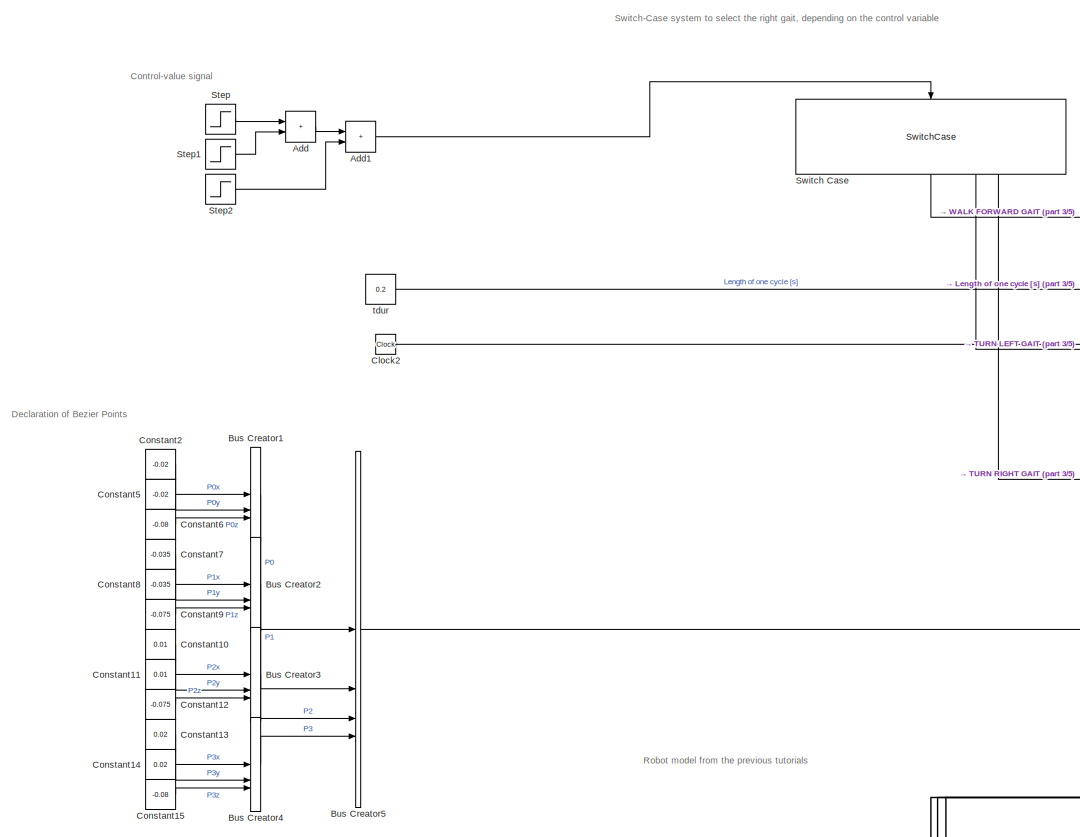
[diagram: root canvas - part 1/5, top left region]
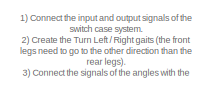
[diagram: root canvas - part 2/5, top right region]
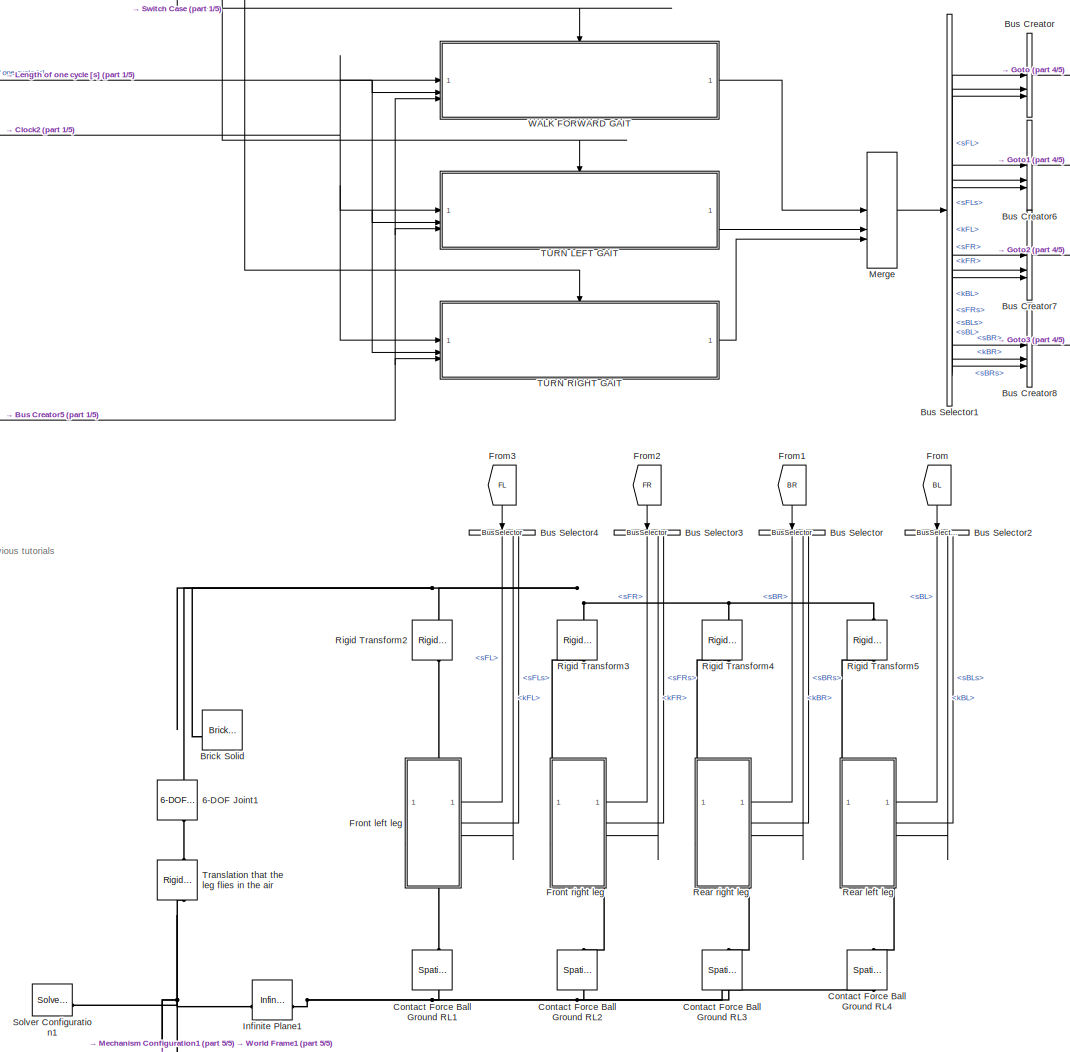
[diagram: root canvas - part 3/5, central region]
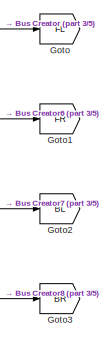
[diagram: root canvas - part 4/5, top right region]
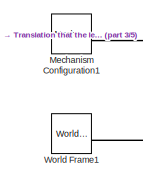
[diagram: root canvas - part 5/5, bottom center region]
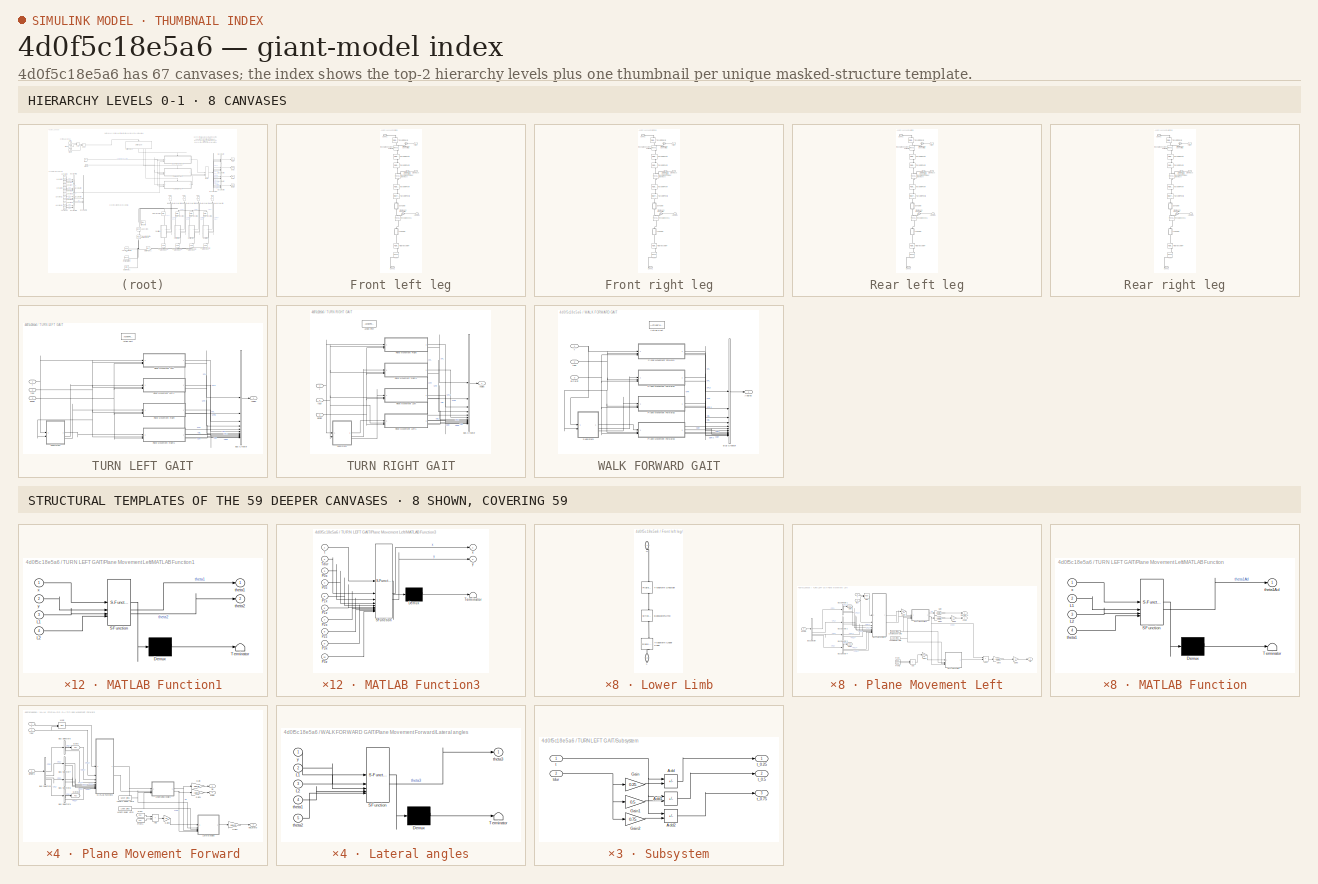
[diagram: thumbnail index - top-2 hierarchy levels (8 canvases) + 8 structural-template representatives of the remaining 59 canvases]
MODEL slx_4d0f5c18e5a6
KIND model
CONFIG AbsTol = 1e-3
CONFIG EnableMultiTasking = on
CONFIG FixedStep = auto
CONFIG MaxStep = auto
CONFIG MinStep = auto
CONFIG RelTol = 1e-3
CONFIG SampleTimeConstraint = Unconstrained
CONFIG SolverName = ode23t
CONFIG StartTime = 0.0
CONFIG StopTime = 4
WORKSPACE source: mxarray member
WORKSPACE A = 0.4
WORKSPACE Critical_Velocity = 0.01
WORKSPACE Damping_Factor = 1000
WORKSPACE Dynamic_Friction = 0.5
WORKSPACE Heigth_brick: Simulink.Parameter (value not decoded)
WORKSPACE Heigth_ramp: Simulink.Parameter (value not decoded)
WORKSPACE Length_brick: Simulink.Parameter (value not decoded)
WORKSPACE Length_ramp: Simulink.Parameter (value not decoded)
WORKSPACE Length_torso: Simulink.Parameter (value not decoded)
WORKSPACE Lower_limbs: Simulink.Parameter (value not decoded)
WORKSPACE Static_Friction = 0.7
WORKSPACE Stiffnesscoefficient = 10000
WORKSPACE Transition_Region_Width = 0.02
WORKSPACE Upper_limbs: Simulink.Parameter (value not decoded)
WORKSPACE Width_brick: Simulink.Parameter (value not decoded)
WORKSPACE Width_ramp: Simulink.Parameter (value not decoded)
WORKSPACE Width_torso: Simulink.Parameter (value not decoded)
WORKSPACE f = 1.5
WORKSPACE max_Joint_change = 100
WORKSPACE r_foot: Simulink.Parameter (value not decoded)
WORKSPACE sampleTime: Simulink.Parameter (value not decoded)
WORKSPACE t_leg: Simulink.Parameter (value not decoded)
WORKSPACE theta: Simulink.Parameter (value not decoded)
WORKSPACE transferFunVal: Simulink.Parameter (value not decoded)
BLOCK [Reference] 6-DOF Joint1  REF=sm_lib/Joints/6-DOF Joint
  NameLocation = right
  SourceBlock = sm_lib/Joints/6-DOF Joint
  SourceType = 6-DOF Joint
BLOCK [Sum] Add
  IconShape = rectangular
BLOCK [Sum] Add1
  IconShape = rectangular
BLOCK [Reference] Brick Solid  REF=sm_lib/Body Elements/Brick Solid
  NameLocation = top
  SourceBlock = sm_lib/Body Elements/Brick Solid
  SourceType = Brick Solid
BLOCK [BusCreator] Bus Creator
  DisplayOption = bar
  InheritFromInputs = on
  Inputs = 3
BLOCK [BusCreator] Bus Creator1
  DisplayOption = bar
  InheritFromInputs = on
  Inputs = 3
BLOCK [BusCreator] Bus Creator2
  DisplayOption = bar
  InheritFromInputs = on
  Inputs = 3
BLOCK [BusCreator] Bus Creator3
  DisplayOption = bar
  InheritFromInputs = on
  Inputs = 3
BLOCK [BusCreator] Bus Creator4
  DisplayOption = bar
  InheritFromInputs = on
  Inputs = 3
BLOCK [BusCreator] Bus Creator5
  DisplayOption = bar
  InheritFromInputs = on
  Inputs = 4
BLOCK [BusCreator] Bus Creator6
  DisplayOption = bar
  InheritFromInputs = on
  Inputs = 3
BLOCK [BusCreator] Bus Creator7
  DisplayOption = bar
  InheritFromInputs = on
  Inputs = 3
BLOCK [BusCreator] Bus Creator8
  DisplayOption = bar
  InheritFromInputs = on
  Inputs = 3
BLOCK [BusSelector] Bus Selector
  NameLocation = left
  OutputSignals = sBR,kBR,sBRs
BLOCK [BusSelector] Bus Selector1
  OutputSignals = sFL,kFL,sFLs,sFR,kFR,sFRs,sBL,kBL,sBLs,sBR,kBR,sBRs
BLOCK [BusSelector] Bus Selector2
  NameLocation = left
  OutputSignals = sBL,kBL,sBLs
BLOCK [BusSelector] Bus Selector3
  NameLocation = left
  OutputSignals = sFR,kFR,sFRs
BLOCK [BusSelector] Bus Selector4
  NameLocation = left
  OutputSignals = sFL,kFL,sFLs
BLOCK [Clock] Clock2
BLOCK [Constant] Constant10
  Value = 0.01
BLOCK [Constant] Constant11
  Value = 0.01
BLOCK [Constant] Constant12
  Value = -0.075
BLOCK [Constant] Constant13
  Value = 0.02
BLOCK [Constant] Constant14
  Value = 0.02
BLOCK [Constant] Constant15
  Value = -0.08
BLOCK [Constant] Constant2
  Value = -0.02
BLOCK [Constant] Constant5
  Value = -0.02
BLOCK [Constant] Constant6
  Value = -0.08
BLOCK [Constant] Constant7
  Value = -0.035
BLOCK [Constant] Constant8
  Value = -0.035
BLOCK [Constant] Constant9
  Value = -0.075
BLOCK [Reference] Contact Force Ball Ground RL1  REF=sm_lib/Forces and
Torques/Spatial
Contact Force
  NameLocation = left
  SourceBlock = sm_lib/Forces and\nTorques/Spatial\nContact Force
  SourceType = Spatial\nContact Force
BLOCK [Reference] Contact Force Ball Ground RL2  REF=sm_lib/Forces and
Torques/Spatial
Contact Force
  NameLocation = left
  SourceBlock = sm_lib/Forces and\nTorques/Spatial\nContact Force
  SourceType = Spatial\nContact Force
BLOCK [Reference] Contact Force Ball Ground RL3  REF=sm_lib/Forces and
Torques/Spatial
Contact Force
  NameLocation = left
  SourceBlock = sm_lib/Forces and\nTorques/Spatial\nContact Force
  SourceType = Spatial\nContact Force
BLOCK [Reference] Contact Force Ball Ground RL4  REF=sm_lib/Forces and
Torques/Spatial
Contact Force
  NameLocation = left
  SourceBlock = sm_lib/Forces and\nTorques/Spatial\nContact Force
  SourceType = Spatial\nContact Force
BLOCK [From] From
  GotoTag = BL
  NameLocation = left
BLOCK [From] From1
  GotoTag = BR
  NameLocation = left
BLOCK [From] From2
  GotoTag = FR
  NameLocation = left
BLOCK [From] From3
  GotoTag = FL
  NameLocation = left
BLOCK [SubSystem] Front left leg
  PortSchema = {"entries":[{"content":{"sides":[{"content":{},"type":"ConnectorPlacement.EquallySpacedRectSide","uuid":"4058ee2b-9772-4aa9-ad2c-dc188ae6aecd"},{"content":{"connectorIds":["In1","In2","In3"],"side":"RIGHT"},"type":"ConnectorPlacement.EquallySpacedRectSide","uuid":"c8f5ac60-63ea-4dfe-ad35-3ef8c1bdb1d6"},{"content":{"connectorIds":["LConn1"],"side":"TOP"},"type":"ConnectorPlacement.EquallySpacedRect...<+389ch>  <repeated x4 — deduplicated; at blocks: Front left leg, Front right leg, Rear left leg, Rear right leg>
BLOCK [Inport] Front left leg/<Hip>
  NameLocation = top
BLOCK [Inport] Front left leg/<Knee>
  NameLocation = top
  Port = 3
BLOCK [PMIOPort] Front left leg/Conn1
  Side = Left
BLOCK [PMIOPort] Front left leg/Conn2
  Port = 2
  Side = Right
BLOCK [Reference] Front left leg/Foot  REF=sm_lib/Body Elements/Spherical Solid
  NameLocation = right
  SourceBlock = sm_lib/Body Elements/Spherical Solid
  SourceType = Spherical Solid
BLOCK [SubSystem] Front left leg/Lower Limb
  NameLocation = left
BLOCK [Reference] Front left leg/Lower Limb/BaseLowerLimb  REF=sm_lib/Body Elements/Brick Solid
  NameLocation = left
  SourceBlock = sm_lib/Body Elements/Brick Solid
  SourceType = Brick Solid
BLOCK [PMIOPort] Front left leg/Lower Limb/L
  NameLocation = left
  Port = 2
  Side = Right
BLOCK [Reference] Front left leg/Lower Limb/Transform Shoulder  REF=sm_lib/Frames and
Transforms/Rigid
Transform
  NameLocation = left
  SourceBlock = sm_lib/Frames and\nTransforms/Rigid\nTransform
  SourceType = Rigid\nTransform
BLOCK [Reference] Front left leg/Lower Limb/Transform Upper Knee  REF=sm_lib/Frames and
Transforms/Rigid
Transform
  NameLocation = left
  SourceBlock = sm_lib/Frames and\nTransforms/Rigid\nTransform
  SourceType = Rigid\nTransform
BLOCK [PMIOPort] Front left leg/Lower Limb/U
  NameLocation = left
  Side = Left
BLOCK [Reference] Front left leg/Revolute Knee1  REF=sm_lib/Joints/Revolute Joint
  NameLocation = left
  SourceBlock = sm_lib/Joints/Revolute Joint
  SourceType = Revolute Joint
BLOCK [Reference] Front left leg/Revolute Shoulder Forward  REF=sm_lib/Joints/Revolute Joint
  NameLocation = left
  SourceBlock = sm_lib/Joints/Revolute Joint
  SourceType = Revolute Joint
BLOCK [Reference] Front left leg/Revolute Shoulder Sideways  REF=sm_lib/Joints/Revolute Joint
  NameLocation = left
  SourceBlock = sm_lib/Joints/Revolute Joint
  SourceType = Revolute Joint
BLOCK [Reference] Front left leg/Rigid Transform4  REF=sm_lib/Frames and
Transforms/Rigid
Transform
  NameLocation = left
  SourceBlock = sm_lib/Frames and\nTransforms/Rigid\nTransform
  SourceType = Rigid\nTransform
BLOCK [Inport] Front left leg/Sideways
  NameLocation = top
  Port = 2
BLOCK [Reference] Front left leg/Simulink-PS Converter  REF=nesl_utility/Simulink-PS
Converter
  NameLocation = top
  SourceBlock = nesl_utility/Simulink-PS\nConverter
  SourceType = Simulink-PS\nConverter
BLOCK [Reference] Front left leg/Simulink-PS Converter1  REF=nesl_utility/Simulink-PS
Converter
  NameLocation = top
  SourceBlock = nesl_utility/Simulink-PS\nConverter
  SourceType = Simulink-PS\nConverter
BLOCK [Reference] Front left leg/Simulink-PS Converter2  REF=nesl_utility/Simulink-PS
Converter
  NameLocation = top
  SourceBlock = nesl_utility/Simulink-PS\nConverter
  SourceType = Simulink-PS\nConverter
BLOCK [Reference] Front left leg/Transform Pivot1  REF=sm_lib/Frames and
Transforms/Rigid
Transform
  NameLocation = left
  SourceBlock = sm_lib/Frames and\nTransforms/Rigid\nTransform
  SourceType = Rigid\nTransform
BLOCK [Reference] Front left leg/Transform Pivot2  REF=sm_lib/Frames and
Transforms/Rigid
Transform
  NameLocation = left
  SourceBlock = sm_lib/Frames and\nTransforms/Rigid\nTransform
  SourceType = Rigid\nTransform
BLOCK [Reference] Front left leg/Transform Pivot3  REF=sm_lib/Frames and
Transforms/Rigid
Transform
  NameLocation = left
  SourceBlock = sm_lib/Frames and\nTransforms/Rigid\nTransform
  SourceType = Rigid\nTransform
BLOCK [Reference] Front left leg/Transform Pivot4  REF=sm_lib/Frames and
Transforms/Rigid
Transform
  NameLocation = left
  SourceBlock = sm_lib/Frames and\nTransforms/Rigid\nTransform
  SourceType = Rigid\nTransform
BLOCK [Reference] Front left leg/Transform Pivot5  REF=sm_lib/Frames and
Transforms/Rigid
Transform
  NameLocation = left
  SourceBlock = sm_lib/Frames and\nTransforms/Rigid\nTransform
  SourceType = Rigid\nTransform
BLOCK [SubSystem] Front left leg/Upper Limb
  NameLocation = left
BLOCK [Reference] Front left leg/Upper Limb/BaseUpperLimb  REF=sm_lib/Body Elements/Brick Solid
  NameLocation = left
  SourceBlock = sm_lib/Body Elements/Brick Solid
  SourceType = Brick Solid
BLOCK [PMIOPort] Front left leg/Upper Limb/L
  NameLocation = left
  Port = 2
  Side = Right
BLOCK [Reference] Front left leg/Upper Limb/Transform Shoulder  REF=sm_lib/Frames and
Transforms/Rigid
Transform
  NameLocation = left
  SourceBlock = sm_lib/Frames and\nTransforms/Rigid\nTransform
  SourceType = Rigid\nTransform
BLOCK [Reference] Front left leg/Upper Limb/Transform Upper Knee  REF=sm_lib/Frames and
Transforms/Rigid
Transform
  NameLocation = left
  SourceBlock = sm_lib/Frames and\nTransforms/Rigid\nTransform
  SourceType = Rigid\nTransform
BLOCK [PMIOPort] Front left leg/Upper Limb/U
  NameLocation = left
  Side = Left
BLOCK [SubSystem] Front right leg
BLOCK [Inport] Front right leg/<Hip>
  NameLocation = top
BLOCK [Inport] Front right leg/<Knee>
  NameLocation = top
  Port = 3
BLOCK [PMIOPort] Front right leg/Conn1
  Side = Left
BLOCK [PMIOPort] Front right leg/Conn2
  Port = 2
  Side = Right
BLOCK [Reference] Front right leg/Foot  REF=sm_lib/Body Elements/Spherical Solid
  NameLocation = right
  SourceBlock = sm_lib/Body Elements/Spherical Solid
  SourceType = Spherical Solid
BLOCK [SubSystem] Front right leg/Lower Limb
  NameLocation = left
BLOCK [Reference] Front right leg/Lower Limb/BaseLowerLimb  REF=sm_lib/Body Elements/Brick Solid
  NameLocation = left
  SourceBlock = sm_lib/Body Elements/Brick Solid
  SourceType = Brick Solid
BLOCK [PMIOPort] Front right leg/Lower Limb/L
  NameLocation = left
  Port = 2
  Side = Right
BLOCK [Reference] Front right leg/Lower Limb/Transform Shoulder  REF=sm_lib/Frames and
Transforms/Rigid
Transform
  NameLocation = left
  SourceBlock = sm_lib/Frames and\nTransforms/Rigid\nTransform
  SourceType = Rigid\nTransform
BLOCK [Reference] Front right leg/Lower Limb/Transform Upper Knee  REF=sm_lib/Frames and
Transforms/Rigid
Transform
  NameLocation = left
  SourceBlock = sm_lib/Frames and\nTransforms/Rigid\nTransform
  SourceType = Rigid\nTransform
BLOCK [PMIOPort] Front right leg/Lower Limb/U
  NameLocation = left
  Side = Left
BLOCK [Reference] Front right leg/Revolute Knee1  REF=sm_lib/Joints/Revolute Joint
  NameLocation = left
  SourceBlock = sm_lib/Joints/Revolute Joint
  SourceType = Revolute Joint
BLOCK [Reference] Front right leg/Revolute Shoulder Forward  REF=sm_lib/Joints/Revolute Joint
  NameLocation = left
  SourceBlock = sm_lib/Joints/Revolute Joint
  SourceType = Revolute Joint
BLOCK [Reference] Front right leg/Revolute Shoulder Sideways  REF=sm_lib/Joints/Revolute Joint
  NameLocation = left
  SourceBlock = sm_lib/Joints/Revolute Joint
  SourceType = Revolute Joint
BLOCK [Reference] Front right leg/Rigid Transform4  REF=sm_lib/Frames and
Transforms/Rigid
Transform
  NameLocation = left
  SourceBlock = sm_lib/Frames and\nTransforms/Rigid\nTransform
  SourceType = Rigid\nTransform
BLOCK [Inport] Front right leg/Sideways
  NameLocation = top
  Port = 2
BLOCK [Reference] Front right leg/Simulink-PS Converter  REF=nesl_utility/Simulink-PS
Converter
  NameLocation = top
  SourceBlock = nesl_utility/Simulink-PS\nConverter
  SourceType = Simulink-PS\nConverter
BLOCK [Reference] Front right leg/Simulink-PS Converter1  REF=nesl_utility/Simulink-PS
Converter
  NameLocation = top
  SourceBlock = nesl_utility/Simulink-PS\nConverter
  SourceType = Simulink-PS\nConverter
BLOCK [Reference] Front right leg/Simulink-PS Converter2  REF=nesl_utility/Simulink-PS
Converter
  NameLocation = top
  SourceBlock = nesl_utility/Simulink-PS\nConverter
  SourceType = Simulink-PS\nConverter
BLOCK [Reference] Front right leg/Transform Pivot1  REF=sm_lib/Frames and
Transforms/Rigid
Transform
  NameLocation = left
  SourceBlock = sm_lib/Frames and\nTransforms/Rigid\nTransform
  SourceType = Rigid\nTransform
BLOCK [Reference] Front right leg/Transform Pivot2  REF=sm_lib/Frames and
Transforms/Rigid
Transform
  NameLocation = left
  SourceBlock = sm_lib/Frames and\nTransforms/Rigid\nTransform
  SourceType = Rigid\nTransform
BLOCK [Reference] Front right leg/Transform Pivot3  REF=sm_lib/Frames and
Transforms/Rigid
Transform
  NameLocation = left
  SourceBlock = sm_lib/Frames and\nTransforms/Rigid\nTransform
  SourceType = Rigid\nTransform
BLOCK [Reference] Front right leg/Transform Pivot4  REF=sm_lib/Frames and
Transforms/Rigid
Transform
  NameLocation = left
  SourceBlock = sm_lib/Frames and\nTransforms/Rigid\nTransform
  SourceType = Rigid\nTransform
BLOCK [Reference] Front right leg/Transform Pivot5  REF=sm_lib/Frames and
Transforms/Rigid
Transform
  NameLocation = left
  SourceBlock = sm_lib/Frames and\nTransforms/Rigid\nTransform
  SourceType = Rigid\nTransform
BLOCK [SubSystem] Front right leg/Upper Limb
  NameLocation = left
BLOCK [Reference] Front right leg/Upper Limb/BaseUpperLimb  REF=sm_lib/Body Elements/Brick Solid
  NameLocation = left
  SourceBlock = sm_lib/Body Elements/Brick Solid
  SourceType = Brick Solid
BLOCK [PMIOPort] Front right leg/Upper Limb/L
  NameLocation = left
  Port = 2
  Side = Right
BLOCK [Reference] Front right leg/Upper Limb/Transform Shoulder  REF=sm_lib/Frames and
Transforms/Rigid
Transform
  NameLocation = left
  SourceBlock = sm_lib/Frames and\nTransforms/Rigid\nTransform
  SourceType = Rigid\nTransform
BLOCK [Reference] Front right leg/Upper Limb/Transform Upper Knee  REF=sm_lib/Frames and
Transforms/Rigid
Transform
  NameLocation = left
  SourceBlock = sm_lib/Frames and\nTransforms/Rigid\nTransform
  SourceType = Rigid\nTransform
BLOCK [PMIOPort] Front right leg/Upper Limb/U
  NameLocation = left
  Side = Left
BLOCK [Goto] Goto
  GotoTag = FL
BLOCK [Goto] Goto1
  GotoTag = FR
BLOCK [Goto] Goto2
  GotoTag = BL
BLOCK [Goto] Goto3
  GotoTag = BR
BLOCK [Reference] Infinite Plane1  REF=sm_lib/Curves and Surfaces/Infinite Plane
  SourceBlock = sm_lib/Curves and Surfaces/Infinite Plane
  SourceType = Infinite Plane
BLOCK [Reference] Mechanism Configuration1  REF=sm_lib/Utilities/Mechanism
Configuration
  SourceBlock = sm_lib/Utilities/Mechanism\nConfiguration
  SourceType = Mechanism\nConfiguration
BLOCK [Merge] Merge
  Inputs = 3
BLOCK [SubSystem] Rear left leg
BLOCK [Inport] Rear left leg/<Hip>
  NameLocation = top
BLOCK [Inport] Rear left leg/<Knee>
  NameLocation = top
  Port = 3
BLOCK [PMIOPort] Rear left leg/Conn1
  Side = Left
BLOCK [PMIOPort] Rear left leg/Conn2
  Port = 2
  Side = Right
BLOCK [Reference] Rear left leg/Foot  REF=sm_lib/Body Elements/Spherical Solid
  NameLocation = right
  SourceBlock = sm_lib/Body Elements/Spherical Solid
  SourceType = Spherical Solid
BLOCK [SubSystem] Rear left leg/Lower Limb
  NameLocation = left
BLOCK [Reference] Rear left leg/Lower Limb/BaseLowerLimb  REF=sm_lib/Body Elements/Brick Solid
  NameLocation = left
  SourceBlock = sm_lib/Body Elements/Brick Solid
  SourceType = Brick Solid
BLOCK [PMIOPort] Rear left leg/Lower Limb/L
  NameLocation = left
  Port = 2
  Side = Right
BLOCK [Reference] Rear left leg/Lower Limb/Transform Shoulder  REF=sm_lib/Frames and
Transforms/Rigid
Transform
  NameLocation = left
  SourceBlock = sm_lib/Frames and\nTransforms/Rigid\nTransform
  SourceType = Rigid\nTransform
BLOCK [Reference] Rear left leg/Lower Limb/Transform Upper Knee  REF=sm_lib/Frames and
Transforms/Rigid
Transform
  NameLocation = left
  SourceBlock = sm_lib/Frames and\nTransforms/Rigid\nTransform
  SourceType = Rigid\nTransform
BLOCK [PMIOPort] Rear left leg/Lower Limb/U
  NameLocation = left
  Side = Left
BLOCK [Reference] Rear left leg/Revolute Knee1  REF=sm_lib/Joints/Revolute Joint
  NameLocation = left
  SourceBlock = sm_lib/Joints/Revolute Joint
  SourceType = Revolute Joint
BLOCK [Reference] Rear left leg/Revolute Shoulder Forward  REF=sm_lib/Joints/Revolute Joint
  NameLocation = left
  SourceBlock = sm_lib/Joints/Revolute Joint
  SourceType = Revolute Joint
BLOCK [Reference] Rear left leg/Revolute Shoulder Sideways  REF=sm_lib/Joints/Revolute Joint
  NameLocation = left
  SourceBlock = sm_lib/Joints/Revolute Joint
  SourceType = Revolute Joint
BLOCK [Reference] Rear left leg/Rigid Transform4  REF=sm_lib/Frames and
Transforms/Rigid
Transform
  NameLocation = left
  SourceBlock = sm_lib/Frames and\nTransforms/Rigid\nTransform
  SourceType = Rigid\nTransform
BLOCK [Inport] Rear left leg/Sideways
  NameLocation = top
  Port = 2
BLOCK [Reference] Rear left leg/Simulink-PS Converter  REF=nesl_utility/Simulink-PS
Converter
  NameLocation = top
  SourceBlock = nesl_utility/Simulink-PS\nConverter
  SourceType = Simulink-PS\nConverter
BLOCK [Reference] Rear left leg/Simulink-PS Converter1  REF=nesl_utility/Simulink-PS
Converter
  NameLocation = top
  SourceBlock = nesl_utility/Simulink-PS\nConverter
  SourceType = Simulink-PS\nConverter
BLOCK [Reference] Rear left leg/Simulink-PS Converter2  REF=nesl_utility/Simulink-PS
Converter
  NameLocation = top
  SourceBlock = nesl_utility/Simulink-PS\nConverter
  SourceType = Simulink-PS\nConverter
BLOCK [Reference] Rear left leg/Transform Pivot1  REF=sm_lib/Frames and
Transforms/Rigid
Transform
  NameLocation = left
  SourceBlock = sm_lib/Frames and\nTransforms/Rigid\nTransform
  SourceType = Rigid\nTransform
BLOCK [Reference] Rear left leg/Transform Pivot2  REF=sm_lib/Frames and
Transforms/Rigid
Transform
  NameLocation = left
  SourceBlock = sm_lib/Frames and\nTransforms/Rigid\nTransform
  SourceType = Rigid\nTransform
BLOCK [Reference] Rear left leg/Transform Pivot3  REF=sm_lib/Frames and
Transforms/Rigid
Transform
  NameLocation = left
  SourceBlock = sm_lib/Frames and\nTransforms/Rigid\nTransform
  SourceType = Rigid\nTransform
BLOCK [Reference] Rear left leg/Transform Pivot4  REF=sm_lib/Frames and
Transforms/Rigid
Transform
  NameLocation = left
  SourceBlock = sm_lib/Frames and\nTransforms/Rigid\nTransform
  SourceType = Rigid\nTransform
BLOCK [Reference] Rear left leg/Transform Pivot5  REF=sm_lib/Frames and
Transforms/Rigid
Transform
  NameLocation = left
  SourceBlock = sm_lib/Frames and\nTransforms/Rigid\nTransform
  SourceType = Rigid\nTransform
BLOCK [SubSystem] Rear left leg/Upper Limb
  NameLocation = left
BLOCK [Reference] Rear left leg/Upper Limb/BaseUpperLimb  REF=sm_lib/Body Elements/Brick Solid
  NameLocation = left
  SourceBlock = sm_lib/Body Elements/Brick Solid
  SourceType = Brick Solid
BLOCK [PMIOPort] Rear left leg/Upper Limb/L
  NameLocation = left
  Port = 2
  Side = Right
BLOCK [Reference] Rear left leg/Upper Limb/Transform Shoulder  REF=sm_lib/Frames and
Transforms/Rigid
Transform
  NameLocation = left
  SourceBlock = sm_lib/Frames and\nTransforms/Rigid\nTransform
  SourceType = Rigid\nTransform
BLOCK [Reference] Rear left leg/Upper Limb/Transform Upper Knee  REF=sm_lib/Frames and
Transforms/Rigid
Transform
  NameLocation = left
  SourceBlock = sm_lib/Frames and\nTransforms/Rigid\nTransform
  SourceType = Rigid\nTransform
BLOCK [PMIOPort] Rear left leg/Upper Limb/U
  NameLocation = left
  Side = Left
BLOCK [SubSystem] Rear right leg
BLOCK [Inport] Rear right leg/<Hip>
  NameLocation = top
BLOCK [Inport] Rear right leg/<Knee>
  NameLocation = top
  Port = 3
BLOCK [PMIOPort] Rear right leg/Conn1
  Side = Left
BLOCK [PMIOPort] Rear right leg/Conn2
  Port = 2
  Side = Right
BLOCK [Reference] Rear right leg/Foot  REF=sm_lib/Body Elements/Spherical Solid
  NameLocation = right
  SourceBlock = sm_lib/Body Elements/Spherical Solid
  SourceType = Spherical Solid
BLOCK [SubSystem] Rear right leg/Lower Limb
  NameLocation = left
BLOCK [Reference] Rear right leg/Lower Limb/BaseLowerLimb  REF=sm_lib/Body Elements/Brick Solid
  NameLocation = left
  SourceBlock = sm_lib/Body Elements/Brick Solid
  SourceType = Brick Solid
BLOCK [PMIOPort] Rear right leg/Lower Limb/L
  NameLocation = left
  Port = 2
  Side = Right
BLOCK [Reference] Rear right leg/Lower Limb/Transform Shoulder  REF=sm_lib/Frames and
Transforms/Rigid
Transform
  NameLocation = left
  SourceBlock = sm_lib/Frames and\nTransforms/Rigid\nTransform
  SourceType = Rigid\nTransform
BLOCK [Reference] Rear right leg/Lower Limb/Transform Upper Knee  REF=sm_lib/Frames and
Transforms/Rigid
Transform
  NameLocation = left
  SourceBlock = sm_lib/Frames and\nTransforms/Rigid\nTransform
  SourceType = Rigid\nTransform
BLOCK [PMIOPort] Rear right leg/Lower Limb/U
  NameLocation = left
  Side = Left
BLOCK [Reference] Rear right leg/Revolute Knee1  REF=sm_lib/Joints/Revolute Joint
  NameLocation = left
  SourceBlock = sm_lib/Joints/Revolute Joint
  SourceType = Revolute Joint
BLOCK [Reference] Rear right leg/Revolute Shoulder Forward  REF=sm_lib/Joints/Revolute Joint
  NameLocation = left
  SourceBlock = sm_lib/Joints/Revolute Joint
  SourceType = Revolute Joint
BLOCK [Reference] Rear right leg/Revolute Shoulder Sideways  REF=sm_lib/Joints/Revolute Joint
  NameLocation = left
  SourceBlock = sm_lib/Joints/Revolute Joint
  SourceType = Revolute Joint
BLOCK [Reference] Rear right leg/Rigid Transform4  REF=sm_lib/Frames and
Transforms/Rigid
Transform
  NameLocation = left
  SourceBlock = sm_lib/Frames and\nTransforms/Rigid\nTransform
  SourceType = Rigid\nTransform
BLOCK [Inport] Rear right leg/Sideways
  NameLocation = top
  Port = 2
BLOCK [Reference] Rear right leg/Simulink-PS Converter  REF=nesl_utility/Simulink-PS
Converter
  NameLocation = top
  SourceBlock = nesl_utility/Simulink-PS\nConverter
  SourceType = Simulink-PS\nConverter
BLOCK [Reference] Rear right leg/Simulink-PS Converter1  REF=nesl_utility/Simulink-PS
Converter
  NameLocation = top
  SourceBlock = nesl_utility/Simulink-PS\nConverter
  SourceType = Simulink-PS\nConverter
BLOCK [Reference] Rear right leg/Simulink-PS Converter2  REF=nesl_utility/Simulink-PS
Converter
  NameLocation = top
  SourceBlock = nesl_utility/Simulink-PS\nConverter
  SourceType = Simulink-PS\nConverter
BLOCK [Reference] Rear right leg/Transform Pivot1  REF=sm_lib/Frames and
Transforms/Rigid
Transform
  NameLocation = left
  SourceBlock = sm_lib/Frames and\nTransforms/Rigid\nTransform
  SourceType = Rigid\nTransform
BLOCK [Reference] Rear right leg/Transform Pivot2  REF=sm_lib/Frames and
Transforms/Rigid
Transform
  NameLocation = left
  SourceBlock = sm_lib/Frames and\nTransforms/Rigid\nTransform
  SourceType = Rigid\nTransform
BLOCK [Reference] Rear right leg/Transform Pivot3  REF=sm_lib/Frames and
Transforms/Rigid
Transform
  NameLocation = left
  SourceBlock = sm_lib/Frames and\nTransforms/Rigid\nTransform
  SourceType = Rigid\nTransform
BLOCK [Reference] Rear right leg/Transform Pivot4  REF=sm_lib/Frames and
Transforms/Rigid
Transform
  NameLocation = left
  SourceBlock = sm_lib/Frames and\nTransforms/Rigid\nTransform
  SourceType = Rigid\nTransform
BLOCK [Reference] Rear right leg/Transform Pivot5  REF=sm_lib/Frames and
Transforms/Rigid
Transform
  NameLocation = left
  SourceBlock = sm_lib/Frames and\nTransforms/Rigid\nTransform
  SourceType = Rigid\nTransform
BLOCK [SubSystem] Rear right leg/Upper Limb
  NameLocation = left
BLOCK [Reference] Rear right leg/Upper Limb/BaseUpperLimb  REF=sm_lib/Body Elements/Brick Solid
  NameLocation = left
  SourceBlock = sm_lib/Body Elements/Brick Solid
  SourceType = Brick Solid
BLOCK [PMIOPort] Rear right leg/Upper Limb/L
  NameLocation = left
  Port = 2
  Side = Right
BLOCK [Reference] Rear right leg/Upper Limb/Transform Shoulder  REF=sm_lib/Frames and
Transforms/Rigid
Transform
  NameLocation = left
  SourceBlock = sm_lib/Frames and\nTransforms/Rigid\nTransform
  SourceType = Rigid\nTransform
BLOCK [Reference] Rear right leg/Upper Limb/Transform Upper Knee  REF=sm_lib/Frames and
Transforms/Rigid
Transform
  NameLocation = left
  SourceBlock = sm_lib/Frames and\nTransforms/Rigid\nTransform
  SourceType = Rigid\nTransform
BLOCK [PMIOPort] Rear right leg/Upper Limb/U
  NameLocation = left
  Side = Left
BLOCK [Reference] Rigid Transform2  REF=sm_lib/Frames and
Transforms/Rigid
Transform
  NameLocation = left
  SourceBlock = sm_lib/Frames and\nTransforms/Rigid\nTransform
  SourceType = Rigid\nTransform
BLOCK [Reference] Rigid Transform3  REF=sm_lib/Frames and
Transforms/Rigid
Transform
  NameLocation = left
  SourceBlock = sm_lib/Frames and\nTransforms/Rigid\nTransform
  SourceType = Rigid\nTransform
BLOCK [Reference] Rigid Transform4  REF=sm_lib/Frames and
Transforms/Rigid
Transform
  NameLocation = left
  SourceBlock = sm_lib/Frames and\nTransforms/Rigid\nTransform
  SourceType = Rigid\nTransform
BLOCK [Reference] Rigid Transform5  REF=sm_lib/Frames and
Transforms/Rigid
Transform
  NameLocation = left
  SourceBlock = sm_lib/Frames and\nTransforms/Rigid\nTransform
  SourceType = Rigid\nTransform
BLOCK [Reference] Solver Configuration1  REF=nesl_utility/Solver
Configuration
  SourceBlock = nesl_utility/Solver\nConfiguration
  SourceType = Solver\nConfiguration
BLOCK [Step] Step
  SampleTime = 0
BLOCK [Step] Step1
  SampleTime = 0
  Time = 2
BLOCK [Step] Step2
  SampleTime = 0
  Time = 3
BLOCK [SwitchCase] Switch Case
  CaseConditions = {1,2,3}
  NameLocation = left
  ShowDefaultCase = off
BLOCK [SubSystem] TURN LEFT GAIT
BLOCK [ActionPort] TURN LEFT GAIT/Action Port
  ActionPortLabel = case [ 2 ]:
BLOCK [Outport] TURN LEFT GAIT/Angles
BLOCK [Inport] TURN LEFT GAIT/BPoint
  Port = 3
BLOCK [BusCreator] TURN LEFT GAIT/Bus Creator
  DisplayOption = bar
  InheritFromInputs = on
  Inputs = 12
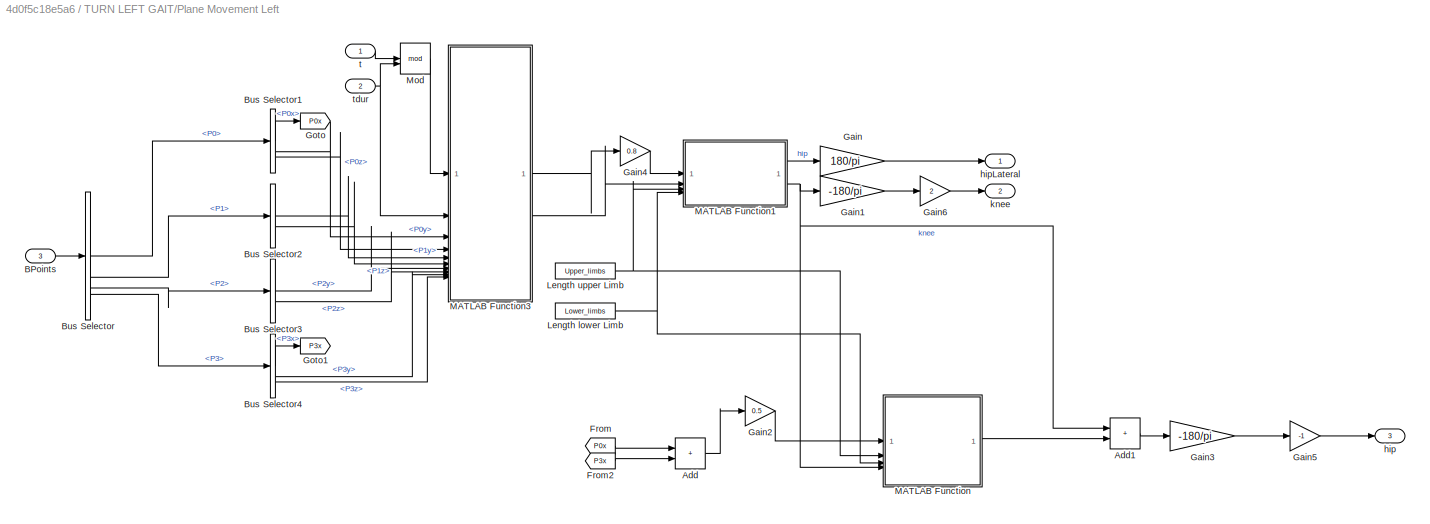
BLOCK [SubSystem] TURN LEFT GAIT/Plane Movement Left
BLOCK [Sum] TURN LEFT GAIT/Plane Movement Left/Add
  IconShape = rectangular
BLOCK [Sum] TURN LEFT GAIT/Plane Movement Left/Add1
  IconShape = rectangular
BLOCK [Inport] TURN LEFT GAIT/Plane Movement Left/BPoints
  Port = 3
BLOCK [BusSelector] TURN LEFT GAIT/Plane Movement Left/Bus Selector
  OutputSignals = P0,P1,P2,P3
BLOCK [BusSelector] TURN LEFT GAIT/Plane Movement Left/Bus Selector1
  OutputSignals = P0x,P0y,P0z
BLOCK [BusSelector] TURN LEFT GAIT/Plane Movement Left/Bus Selector2
  OutputSignals = P1y,P1z
BLOCK [BusSelector] TURN LEFT GAIT/Plane Movement Left/Bus Selector3
  OutputSignals = P2y,P2z
BLOCK [BusSelector] TURN LEFT GAIT/Plane Movement Left/Bus Selector4
  OutputSignals = P3x,P3y,P3z
BLOCK [From] TURN LEFT GAIT/Plane Movement Left/From
  GotoTag = P0x
BLOCK [From] TURN LEFT GAIT/Plane Movement Left/From2
  GotoTag = P3x
BLOCK [Gain] TURN LEFT GAIT/Plane Movement Left/Gain
  Gain = 180/pi
BLOCK [Gain] TURN LEFT GAIT/Plane Movement Left/Gain1
  Gain = -180/pi
BLOCK [Gain] TURN LEFT GAIT/Plane Movement Left/Gain2
  Gain = 0.5
BLOCK [Gain] TURN LEFT GAIT/Plane Movement Left/Gain3
  Gain = -180/pi
BLOCK [Gain] TURN LEFT GAIT/Plane Movement Left/Gain4
  Gain = 0.8
BLOCK [Gain] TURN LEFT GAIT/Plane Movement Left/Gain5
  Gain = -1
BLOCK [Gain] TURN LEFT GAIT/Plane Movement Left/Gain6
  Gain = 2
BLOCK [Goto] TURN LEFT GAIT/Plane Movement Left/Goto
  GotoTag = P0x
BLOCK [Goto] TURN LEFT GAIT/Plane Movement Left/Goto1
  GotoTag = P3x
BLOCK [Constant] TURN LEFT GAIT/Plane Movement Left/Length lower Limb
  Value = Lower_limbs
BLOCK [Constant] TURN LEFT GAIT/Plane Movement Left/Length upper Limb
  Value = Upper_limbs
BLOCK [SubSystem] TURN LEFT GAIT/Plane Movement Left/MATLAB Function
  ErrorFcn = Stateflow.Translate.translate
  PermitHierarchicalResolution = ExplicitOnly
  SFBlockType = MATLAB Function
  TreatAsAtomicUnit = on
BLOCK [Demux] TURN LEFT GAIT/Plane Movement Left/MATLAB Function/ Demux 
  Outputs = 1
BLOCK [S-Function] TURN LEFT GAIT/Plane Movement Left/MATLAB Function/ SFunction 
  EnableBusSupport = on
  FunctionName = sf_sfun
  PortCounts = [4 2]
  SFcnIsStateOwnerBlock = off
  SFunctionDeploymentMode = off
  Tag = Stateflow S-Function 37
BLOCK [Terminator] TURN LEFT GAIT/Plane Movement Left/MATLAB Function/ Terminator 
BLOCK [Inport] TURN LEFT GAIT/Plane Movement Left/MATLAB Function/L1
  Port = 2
BLOCK [Inport] TURN LEFT GAIT/Plane Movement Left/MATLAB Function/L2
  Port = 3
BLOCK [Inport] TURN LEFT GAIT/Plane Movement Left/MATLAB Function/theta1
  Port = 4
BLOCK [Outport] TURN LEFT GAIT/Plane Movement Left/MATLAB Function/theta1Ad
BLOCK [Inport] TURN LEFT GAIT/Plane Movement Left/MATLAB Function/x
BLOCK [SubSystem] TURN LEFT GAIT/Plane Movement Left/MATLAB Function1
  ErrorFcn = Stateflow.Translate.translate
  PermitHierarchicalResolution = ExplicitOnly
  SFBlockType = MATLAB Function
  TreatAsAtomicUnit = on
BLOCK [Demux] TURN LEFT GAIT/Plane Movement Left/MATLAB Function1/ Demux 
  Outputs = 1
BLOCK [S-Function] TURN LEFT GAIT/Plane Movement Left/MATLAB Function1/ SFunction 
  EnableBusSupport = on
  FunctionName = sf_sfun
  PortCounts = [4 3]
  SFcnIsStateOwnerBlock = off
  SFunctionDeploymentMode = off
  Tag = Stateflow S-Function 38
BLOCK [Terminator] TURN LEFT GAIT/Plane Movement Left/MATLAB Function1/ Terminator 
BLOCK [Inport] TURN LEFT GAIT/Plane Movement Left/MATLAB Function1/L1
  Port = 3
BLOCK [Inport] TURN LEFT GAIT/Plane Movement Left/MATLAB Function1/L2
  Port = 4
BLOCK [Outport] TURN LEFT GAIT/Plane Movement Left/MATLAB Function1/theta1
BLOCK [Outport] TURN LEFT GAIT/Plane Movement Left/MATLAB Function1/theta2
  Port = 2
BLOCK [Inport] TURN LEFT GAIT/Plane Movement Left/MATLAB Function1/x
BLOCK [Inport] TURN LEFT GAIT/Plane Movement Left/MATLAB Function1/y
  Port = 2
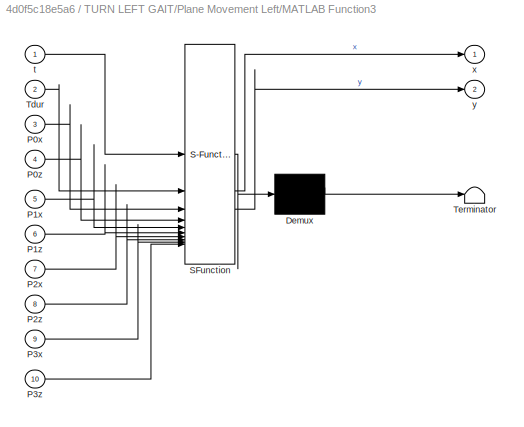
BLOCK [SubSystem] TURN LEFT GAIT/Plane Movement Left/MATLAB Function3
  ErrorFcn = Stateflow.Translate.translate
  PermitHierarchicalResolution = ExplicitOnly
  SFBlockType = MATLAB Function
  TreatAsAtomicUnit = on
BLOCK [Demux] TURN LEFT GAIT/Plane Movement Left/MATLAB Function3/ Demux 
  Outputs = 1
BLOCK [S-Function] TURN LEFT GAIT/Plane Movement Left/MATLAB Function3/ SFunction 
  EnableBusSupport = on
  FunctionName = sf_sfun
  PortCounts = [10 3]
  SFcnIsStateOwnerBlock = off
  SFunctionDeploymentMode = off
  Tag = Stateflow S-Function 39
BLOCK [Terminator] TURN LEFT GAIT/Plane Movement Left/MATLAB Function3/ Terminator 
BLOCK [Inport] TURN LEFT GAIT/Plane Movement Left/MATLAB Function3/P0x
  Port = 3
BLOCK [Inport] TURN LEFT GAIT/Plane Movement Left/MATLAB Function3/P0z
  Port = 4
BLOCK [Inport] TURN LEFT GAIT/Plane Movement Left/MATLAB Function3/P1x
  Port = 5
BLOCK [Inport] TURN LEFT GAIT/Plane Movement Left/MATLAB Function3/P1z
  Port = 6
BLOCK [Inport] TURN LEFT GAIT/Plane Movement Left/MATLAB Function3/P2x
  Port = 7
BLOCK [Inport] TURN LEFT GAIT/Plane Movement Left/MATLAB Function3/P2z
  Port = 8
BLOCK [Inport] TURN LEFT GAIT/Plane Movement Left/MATLAB Function3/P3x
  Port = 9
BLOCK [Inport] TURN LEFT GAIT/Plane Movement Left/MATLAB Function3/P3z
  Port = 10
BLOCK [Inport] TURN LEFT GAIT/Plane Movement Left/MATLAB Function3/Tdur
  Port = 2
BLOCK [Inport] TURN LEFT GAIT/Plane Movement Left/MATLAB Function3/t
BLOCK [Outport] TURN LEFT GAIT/Plane Movement Left/MATLAB Function3/x
BLOCK [Outport] TURN LEFT GAIT/Plane Movement Left/MATLAB Function3/y
  Port = 2
BLOCK [Math] TURN LEFT GAIT/Plane Movement Left/Mod
  Operator = mod
BLOCK [Outport] TURN LEFT GAIT/Plane Movement Left/hip
  Port = 3
BLOCK [Outport] TURN LEFT GAIT/Plane Movement Left/hipLateral
BLOCK [Outport] TURN LEFT GAIT/Plane Movement Left/knee
  Port = 2
BLOCK [Inport] TURN LEFT GAIT/Plane Movement Left/t
BLOCK [Inport] TURN LEFT GAIT/Plane Movement Left/tdur
  Port = 2
BLOCK [SubSystem] TURN LEFT GAIT/Plane Movement Left1
BLOCK [Sum] TURN LEFT GAIT/Plane Movement Left1/Add
  IconShape = rectangular
BLOCK [Sum] TURN LEFT GAIT/Plane Movement Left1/Add1
  IconShape = rectangular
BLOCK [Inport] TURN LEFT GAIT/Plane Movement Left1/BPoints
  Port = 3
BLOCK [BusSelector] TURN LEFT GAIT/Plane Movement Left1/Bus Selector
  OutputSignals = P0,P1,P2,P3
BLOCK [BusSelector] TURN LEFT GAIT/Plane Movement Left1/Bus Selector1
  OutputSignals = P0x,P0y,P0z
BLOCK [BusSelector] TURN LEFT GAIT/Plane Movement Left1/Bus Selector2
  OutputSignals = P1y,P1z
BLOCK [BusSelector] TURN LEFT GAIT/Plane Movement Left1/Bus Selector3
  OutputSignals = P2y,P2z
BLOCK [BusSelector] TURN LEFT GAIT/Plane Movement Left1/Bus Selector4
  OutputSignals = P3x,P3y,P3z
BLOCK [From] TURN LEFT GAIT/Plane Movement Left1/From
  GotoTag = P0x
BLOCK [From] TURN LEFT GAIT/Plane Movement Left1/From2
  GotoTag = P3x
BLOCK [Gain] TURN LEFT GAIT/Plane Movement Left1/Gain
  Gain = 180/pi
BLOCK [Gain] TURN LEFT GAIT/Plane Movement Left1/Gain1
  Gain = -180/pi
BLOCK [Gain] TURN LEFT GAIT/Plane Movement Left1/Gain2
  Gain = 0.5
BLOCK [Gain] TURN LEFT GAIT/Plane Movement Left1/Gain3
  Gain = -180/pi
BLOCK [Gain] TURN LEFT GAIT/Plane Movement Left1/Gain4
  Gain = 0.8
BLOCK [Gain] TURN LEFT GAIT/Plane Movement Left1/Gain5
  Gain = -1
BLOCK [Gain] TURN LEFT GAIT/Plane Movement Left1/Gain6
  Gain = 2
BLOCK [Goto] TURN LEFT GAIT/Plane Movement Left1/Goto
  GotoTag = P0x
BLOCK [Goto] TURN LEFT GAIT/Plane Movement Left1/Goto1
  GotoTag = P3x
BLOCK [Constant] TURN LEFT GAIT/Plane Movement Left1/Length lower Limb
  Value = Lower_limbs
BLOCK [Constant] TURN LEFT GAIT/Plane Movement Left1/Length upper Limb
  Value = Upper_limbs
BLOCK [SubSystem] TURN LEFT GAIT/Plane Movement Left1/MATLAB Function
  ErrorFcn = Stateflow.Translate.translate
  PermitHierarchicalResolution = ExplicitOnly
  SFBlockType = MATLAB Function
  TreatAsAtomicUnit = on
BLOCK [Demux] TURN LEFT GAIT/Plane Movement Left1/MATLAB Function/ Demux 
  Outputs = 1
BLOCK [S-Function] TURN LEFT GAIT/Plane Movement Left1/MATLAB Function/ SFunction 
  EnableBusSupport = on
  FunctionName = sf_sfun
  PortCounts = [4 2]
  SFcnIsStateOwnerBlock = off
  SFunctionDeploymentMode = off
  Tag = Stateflow S-Function 23
BLOCK [Terminator] TURN LEFT GAIT/Plane Movement Left1/MATLAB Function/ Terminator 
BLOCK [Inport] TURN LEFT GAIT/Plane Movement Left1/MATLAB Function/L1
  Port = 2
BLOCK [Inport] TURN LEFT GAIT/Plane Movement Left1/MATLAB Function/L2
  Port = 3
BLOCK [Inport] TURN LEFT GAIT/Plane Movement Left1/MATLAB Function/theta1
  Port = 4
BLOCK [Outport] TURN LEFT GAIT/Plane Movement Left1/MATLAB Function/theta1Ad
BLOCK [Inport] TURN LEFT GAIT/Plane Movement Left1/MATLAB Function/x
BLOCK [SubSystem] TURN LEFT GAIT/Plane Movement Left1/MATLAB Function1
  ErrorFcn = Stateflow.Translate.translate
  PermitHierarchicalResolution = ExplicitOnly
  SFBlockType = MATLAB Function
  TreatAsAtomicUnit = on
BLOCK [Demux] TURN LEFT GAIT/Plane Movement Left1/MATLAB Function1/ Demux 
  Outputs = 1
BLOCK [S-Function] TURN LEFT GAIT/Plane Movement Left1/MATLAB Function1/ SFunction 
  EnableBusSupport = on
  FunctionName = sf_sfun
  PortCounts = [4 3]
  SFcnIsStateOwnerBlock = off
  SFunctionDeploymentMode = off
  Tag = Stateflow S-Function 24
BLOCK [Terminator] TURN LEFT GAIT/Plane Movement Left1/MATLAB Function1/ Terminator 
BLOCK [Inport] TURN LEFT GAIT/Plane Movement Left1/MATLAB Function1/L1
  Port = 3
BLOCK [Inport] TURN LEFT GAIT/Plane Movement Left1/MATLAB Function1/L2
  Port = 4
BLOCK [Outport] TURN LEFT GAIT/Plane Movement Left1/MATLAB Function1/theta1
BLOCK [Outport] TURN LEFT GAIT/Plane Movement Left1/MATLAB Function1/theta2
  Port = 2
BLOCK [Inport] TURN LEFT GAIT/Plane Movement Left1/MATLAB Function1/x
BLOCK [Inport] TURN LEFT GAIT/Plane Movement Left1/MATLAB Function1/y
  Port = 2
BLOCK [SubSystem] TURN LEFT GAIT/Plane Movement Left1/MATLAB Function3
  ErrorFcn = Stateflow.Translate.translate
  PermitHierarchicalResolution = ExplicitOnly
  SFBlockType = MATLAB Function
  TreatAsAtomicUnit = on
BLOCK [Demux] TURN LEFT GAIT/Plane Movement Left1/MATLAB Function3/ Demux 
  Outputs = 1
BLOCK [S-Function] TURN LEFT GAIT/Plane Movement Left1/MATLAB Function3/ SFunction 
  EnableBusSupport = on
  FunctionName = sf_sfun
  PortCounts = [10 3]
  SFcnIsStateOwnerBlock = off
  SFunctionDeploymentMode = off
  Tag = Stateflow S-Function 25
BLOCK [Terminator] TURN LEFT GAIT/Plane Movement Left1/MATLAB Function3/ Terminator 
BLOCK [Inport] TURN LEFT GAIT/Plane Movement Left1/MATLAB Function3/P0x
  Port = 3
BLOCK [Inport] TURN LEFT GAIT/Plane Movement Left1/MATLAB Function3/P0z
  Port = 4
BLOCK [Inport] TURN LEFT GAIT/Plane Movement Left1/MATLAB Function3/P1x
  Port = 5
BLOCK [Inport] TURN LEFT GAIT/Plane Movement Left1/MATLAB Function3/P1z
  Port = 6
BLOCK [Inport] TURN LEFT GAIT/Plane Movement Left1/MATLAB Function3/P2x
  Port = 7
BLOCK [Inport] TURN LEFT GAIT/Plane Movement Left1/MATLAB Function3/P2z
  Port = 8
BLOCK [Inport] TURN LEFT GAIT/Plane Movement Left1/MATLAB Function3/P3x
  Port = 9
BLOCK [Inport] TURN LEFT GAIT/Plane Movement Left1/MATLAB Function3/P3z
  Port = 10
BLOCK [Inport] TURN LEFT GAIT/Plane Movement Left1/MATLAB Function3/Tdur
  Port = 2
BLOCK [Inport] TURN LEFT GAIT/Plane Movement Left1/MATLAB Function3/t
BLOCK [Outport] TURN LEFT GAIT/Plane Movement Left1/MATLAB Function3/x
BLOCK [Outport] TURN LEFT GAIT/Plane Movement Left1/MATLAB Function3/y
  Port = 2
BLOCK [Math] TURN LEFT GAIT/Plane Movement Left1/Mod
  Operator = mod
BLOCK [Outport] TURN LEFT GAIT/Plane Movement Left1/hip
  Port = 3
BLOCK [Outport] TURN LEFT GAIT/Plane Movement Left1/hipLateral
BLOCK [Outport] TURN LEFT GAIT/Plane Movement Left1/knee
  Port = 2
BLOCK [Inport] TURN LEFT GAIT/Plane Movement Left1/t
BLOCK [Inport] TURN LEFT GAIT/Plane Movement Left1/tdur
  Port = 2
BLOCK [SubSystem] TURN LEFT GAIT/Plane Movement Right
BLOCK [Sum] TURN LEFT GAIT/Plane Movement Right/Add
  IconShape = rectangular
BLOCK [Sum] TURN LEFT GAIT/Plane Movement Right/Add1
  IconShape = rectangular
BLOCK [Inport] TURN LEFT GAIT/Plane Movement Right/BPoints
  Port = 3
BLOCK [BusSelector] TURN LEFT GAIT/Plane Movement Right/Bus Selector
  OutputSignals = P0,P1,P2,P3
BLOCK [BusSelector] TURN LEFT GAIT/Plane Movement Right/Bus Selector1
  OutputSignals = P0x,P0y,P0z
BLOCK [BusSelector] TURN LEFT GAIT/Plane Movement Right/Bus Selector2
  OutputSignals = P1y,P1z
BLOCK [BusSelector] TURN LEFT GAIT/Plane Movement Right/Bus Selector3
  OutputSignals = P2y,P2z
BLOCK [BusSelector] TURN LEFT GAIT/Plane Movement Right/Bus Selector4
  OutputSignals = P3x,P3y,P3z
BLOCK [From] TURN LEFT GAIT/Plane Movement Right/From
  GotoTag = P3x
BLOCK [From] TURN LEFT GAIT/Plane Movement Right/From1
  GotoTag = P0x
BLOCK [Gain] TURN LEFT GAIT/Plane Movement Right/Gain
  Gain = 180/pi
BLOCK [Gain] TURN LEFT GAIT/Plane Movement Right/Gain1
  Gain = -180/pi
BLOCK [Gain] TURN LEFT GAIT/Plane Movement Right/Gain2
  Gain = 0.5
BLOCK [Gain] TURN LEFT GAIT/Plane Movement Right/Gain3
  Gain = -180/pi
BLOCK [Gain] TURN LEFT GAIT/Plane Movement Right/Gain4
  Gain = 0.8
BLOCK [Gain] TURN LEFT GAIT/Plane Movement Right/Gain5
  Gain = -1
BLOCK [Gain] TURN LEFT GAIT/Plane Movement Right/Gain6
  Gain = 2
BLOCK [Goto] TURN LEFT GAIT/Plane Movement Right/Goto
  GotoTag = P3x
BLOCK [Goto] TURN LEFT GAIT/Plane Movement Right/Goto1
  GotoTag = P0x
BLOCK [Constant] TURN LEFT GAIT/Plane Movement Right/Length lower Limb
  Value = Lower_limbs
BLOCK [Constant] TURN LEFT GAIT/Plane Movement Right/Length upper Limb
  Value = Upper_limbs
BLOCK [SubSystem] TURN LEFT GAIT/Plane Movement Right/MATLAB Function
  ErrorFcn = Stateflow.Translate.translate
  PermitHierarchicalResolution = ExplicitOnly
  SFBlockType = MATLAB Function
  TreatAsAtomicUnit = on
BLOCK [Demux] TURN LEFT GAIT/Plane Movement Right/MATLAB Function/ Demux 
  Outputs = 1
BLOCK [S-Function] TURN LEFT GAIT/Plane Movement Right/MATLAB Function/ SFunction 
  EnableBusSupport = on
  FunctionName = sf_sfun
  PortCounts = [4 2]
  SFcnIsStateOwnerBlock = off
  SFunctionDeploymentMode = off
  Tag = Stateflow S-Function 40
BLOCK [Terminator] TURN LEFT GAIT/Plane Movement Right/MATLAB Function/ Terminator 
BLOCK [Inport] TURN LEFT GAIT/Plane Movement Right/MATLAB Function/L1
  Port = 2
BLOCK [Inport] TURN LEFT GAIT/Plane Movement Right/MATLAB Function/L2
  Port = 3
BLOCK [Inport] TURN LEFT GAIT/Plane Movement Right/MATLAB Function/theta1
  Port = 4
BLOCK [Outport] TURN LEFT GAIT/Plane Movement Right/MATLAB Function/theta1Ad
BLOCK [Inport] TURN LEFT GAIT/Plane Movement Right/MATLAB Function/x
BLOCK [SubSystem] TURN LEFT GAIT/Plane Movement Right/MATLAB Function1
  ErrorFcn = Stateflow.Translate.translate
  PermitHierarchicalResolution = ExplicitOnly
  SFBlockType = MATLAB Function
  TreatAsAtomicUnit = on
BLOCK [Demux] TURN LEFT GAIT/Plane Movement Right/MATLAB Function1/ Demux 
  Outputs = 1
BLOCK [S-Function] TURN LEFT GAIT/Plane Movement Right/MATLAB Function1/ SFunction 
  EnableBusSupport = on
  FunctionName = sf_sfun
  PortCounts = [4 3]
  SFcnIsStateOwnerBlock = off
  SFunctionDeploymentMode = off
  Tag = Stateflow S-Function 41
BLOCK [Terminator] TURN LEFT GAIT/Plane Movement Right/MATLAB Function1/ Terminator 
BLOCK [Inport] TURN LEFT GAIT/Plane Movement Right/MATLAB Function1/L1
  Port = 3
BLOCK [Inport] TURN LEFT GAIT/Plane Movement Right/MATLAB Function1/L2
  Port = 4
BLOCK [Outport] TURN LEFT GAIT/Plane Movement Right/MATLAB Function1/theta1
BLOCK [Outport] TURN LEFT GAIT/Plane Movement Right/MATLAB Function1/theta2
  Port = 2
BLOCK [Inport] TURN LEFT GAIT/Plane Movement Right/MATLAB Function1/x
BLOCK [Inport] TURN LEFT GAIT/Plane Movement Right/MATLAB Function1/y
  Port = 2
BLOCK [SubSystem] TURN LEFT GAIT/Plane Movement Right/MATLAB Function2
  ErrorFcn = Stateflow.Translate.translate
  PermitHierarchicalResolution = ExplicitOnly
  SFBlockType = MATLAB Function
  TreatAsAtomicUnit = on
BLOCK [Demux] TURN LEFT GAIT/Plane Movement Right/MATLAB Function2/ Demux 
  Outputs = 1
BLOCK [S-Function] TURN LEFT GAIT/Plane Movement Right/MATLAB Function2/ SFunction 
  EnableBusSupport = on
  FunctionName = sf_sfun
  PortCounts = [10 3]
  SFcnIsStateOwnerBlock = off
  SFunctionDeploymentMode = off
  Tag = Stateflow S-Function 42
BLOCK [Terminator] TURN LEFT GAIT/Plane Movement Right/MATLAB Function2/ Terminator 
BLOCK [Inport] TURN LEFT GAIT/Plane Movement Right/MATLAB Function2/P0x
  Port = 3
BLOCK [Inport] TURN LEFT GAIT/Plane Movement Right/MATLAB Function2/P0z
  Port = 4
BLOCK [Inport] TURN LEFT GAIT/Plane Movement Right/MATLAB Function2/P1x
  Port = 5
BLOCK [Inport] TURN LEFT GAIT/Plane Movement Right/MATLAB Function2/P1z
  Port = 6
BLOCK [Inport] TURN LEFT GAIT/Plane Movement Right/MATLAB Function2/P2x
  Port = 7
BLOCK [Inport] TURN LEFT GAIT/Plane Movement Right/MATLAB Function2/P2z
  Port = 8
BLOCK [Inport] TURN LEFT GAIT/Plane Movement Right/MATLAB Function2/P3x
  Port = 9
BLOCK [Inport] TURN LEFT GAIT/Plane Movement Right/MATLAB Function2/P3z
  Port = 10
BLOCK [Inport] TURN LEFT GAIT/Plane Movement Right/MATLAB Function2/Tdur
  Port = 2
BLOCK [Inport] TURN LEFT GAIT/Plane Movement Right/MATLAB Function2/t
BLOCK [Outport] TURN LEFT GAIT/Plane Movement Right/MATLAB Function2/x
BLOCK [Outport] TURN LEFT GAIT/Plane Movement Right/MATLAB Function2/y
  Port = 2
BLOCK [Math] TURN LEFT GAIT/Plane Movement Right/Mod
  Operator = mod
BLOCK [Outport] TURN LEFT GAIT/Plane Movement Right/hip
  Port = 3
BLOCK [Outport] TURN LEFT GAIT/Plane Movement Right/hipLateral
BLOCK [Outport] TURN LEFT GAIT/Plane Movement Right/knee
  Port = 2
BLOCK [Inport] TURN LEFT GAIT/Plane Movement Right/t
BLOCK [Inport] TURN LEFT GAIT/Plane Movement Right/tdur
  Port = 2
BLOCK [SubSystem] TURN LEFT GAIT/Plane Movement Right1
BLOCK [Sum] TURN LEFT GAIT/Plane Movement Right1/Add
  IconShape = rectangular
BLOCK [Sum] TURN LEFT GAIT/Plane Movement Right1/Add1
  IconShape = rectangular
BLOCK [Inport] TURN LEFT GAIT/Plane Movement Right1/BPoints
  Port = 3
BLOCK [BusSelector] TURN LEFT GAIT/Plane Movement Right1/Bus Selector
  OutputSignals = P0,P1,P2,P3
BLOCK [BusSelector] TURN LEFT GAIT/Plane Movement Right1/Bus Selector1
  OutputSignals = P0x,P0y,P0z
BLOCK [BusSelector] TURN LEFT GAIT/Plane Movement Right1/Bus Selector2
  OutputSignals = P1y,P1z
BLOCK [BusSelector] TURN LEFT GAIT/Plane Movement Right1/Bus Selector3
  OutputSignals = P2y,P2z
BLOCK [BusSelector] TURN LEFT GAIT/Plane Movement Right1/Bus Selector4
  OutputSignals = P3x,P3y,P3z
BLOCK [From] TURN LEFT GAIT/Plane Movement Right1/From
  GotoTag = P3x
BLOCK [From] TURN LEFT GAIT/Plane Movement Right1/From1
  GotoTag = P0x
BLOCK [Gain] TURN LEFT GAIT/Plane Movement Right1/Gain
  Gain = 180/pi
BLOCK [Gain] TURN LEFT GAIT/Plane Movement Right1/Gain1
  Gain = -180/pi
BLOCK [Gain] TURN LEFT GAIT/Plane Movement Right1/Gain2
  Gain = 0.5
BLOCK [Gain] TURN LEFT GAIT/Plane Movement Right1/Gain3
  Gain = -180/pi
BLOCK [Gain] TURN LEFT GAIT/Plane Movement Right1/Gain4
  Gain = 0.8
BLOCK [Gain] TURN LEFT GAIT/Plane Movement Right1/Gain5
  Gain = -1
BLOCK [Gain] TURN LEFT GAIT/Plane Movement Right1/Gain6
  Gain = 2
BLOCK [Goto] TURN LEFT GAIT/Plane Movement Right1/Goto
  GotoTag = P3x
BLOCK [Goto] TURN LEFT GAIT/Plane Movement Right1/Goto1
  GotoTag = P0x
BLOCK [Constant] TURN LEFT GAIT/Plane Movement Right1/Length lower Limb
  Value = Lower_limbs
BLOCK [Constant] TURN LEFT GAIT/Plane Movement Right1/Length upper Limb
  Value = Upper_limbs
BLOCK [SubSystem] TURN LEFT GAIT/Plane Movement Right1/MATLAB Function
  ErrorFcn = Stateflow.Translate.translate
  PermitHierarchicalResolution = ExplicitOnly
  SFBlockType = MATLAB Function
  TreatAsAtomicUnit = on
BLOCK [Demux] TURN LEFT GAIT/Plane Movement Right1/MATLAB Function/ Demux 
  Outputs = 1
BLOCK [S-Function] TURN LEFT GAIT/Plane Movement Right1/MATLAB Function/ SFunction 
  EnableBusSupport = on
  FunctionName = sf_sfun
  PortCounts = [4 2]
  SFcnIsStateOwnerBlock = off
  SFunctionDeploymentMode = off
  Tag = Stateflow S-Function 20
BLOCK [Terminator] TURN LEFT GAIT/Plane Movement Right1/MATLAB Function/ Terminator 
BLOCK [Inport] TURN LEFT GAIT/Plane Movement Right1/MATLAB Function/L1
  Port = 2
BLOCK [Inport] TURN LEFT GAIT/Plane Movement Right1/MATLAB Function/L2
  Port = 3
BLOCK [Inport] TURN LEFT GAIT/Plane Movement Right1/MATLAB Function/theta1
  Port = 4
BLOCK [Outport] TURN LEFT GAIT/Plane Movement Right1/MATLAB Function/theta1Ad
BLOCK [Inport] TURN LEFT GAIT/Plane Movement Right1/MATLAB Function/x
BLOCK [SubSystem] TURN LEFT GAIT/Plane Movement Right1/MATLAB Function1
  ErrorFcn = Stateflow.Translate.translate
  PermitHierarchicalResolution = ExplicitOnly
  SFBlockType = MATLAB Function
  TreatAsAtomicUnit = on
BLOCK [Demux] TURN LEFT GAIT/Plane Movement Right1/MATLAB Function1/ Demux 
  Outputs = 1
BLOCK [S-Function] TURN LEFT GAIT/Plane Movement Right1/MATLAB Function1/ SFunction 
  EnableBusSupport = on
  FunctionName = sf_sfun
  PortCounts = [4 3]
  SFcnIsStateOwnerBlock = off
  SFunctionDeploymentMode = off
  Tag = Stateflow S-Function 21
BLOCK [Terminator] TURN LEFT GAIT/Plane Movement Right1/MATLAB Function1/ Terminator 
BLOCK [Inport] TURN LEFT GAIT/Plane Movement Right1/MATLAB Function1/L1
  Port = 3
BLOCK [Inport] TURN LEFT GAIT/Plane Movement Right1/MATLAB Function1/L2
  Port = 4
BLOCK [Outport] TURN LEFT GAIT/Plane Movement Right1/MATLAB Function1/theta1
BLOCK [Outport] TURN LEFT GAIT/Plane Movement Right1/MATLAB Function1/theta2
  Port = 2
BLOCK [Inport] TURN LEFT GAIT/Plane Movement Right1/MATLAB Function1/x
BLOCK [Inport] TURN LEFT GAIT/Plane Movement Right1/MATLAB Function1/y
  Port = 2
BLOCK [SubSystem] TURN LEFT GAIT/Plane Movement Right1/MATLAB Function2
  ErrorFcn = Stateflow.Translate.translate
  PermitHierarchicalResolution = ExplicitOnly
  SFBlockType = MATLAB Function
  TreatAsAtomicUnit = on
BLOCK [Demux] TURN LEFT GAIT/Plane Movement Right1/MATLAB Function2/ Demux 
  Outputs = 1
BLOCK [S-Function] TURN LEFT GAIT/Plane Movement Right1/MATLAB Function2/ SFunction 
  EnableBusSupport = on
  FunctionName = sf_sfun
  PortCounts = [10 3]
  SFcnIsStateOwnerBlock = off
  SFunctionDeploymentMode = off
  Tag = Stateflow S-Function 22
BLOCK [Terminator] TURN LEFT GAIT/Plane Movement Right1/MATLAB Function2/ Terminator 
BLOCK [Inport] TURN LEFT GAIT/Plane Movement Right1/MATLAB Function2/P0x
  Port = 3
BLOCK [Inport] TURN LEFT GAIT/Plane Movement Right1/MATLAB Function2/P0z
  Port = 4
BLOCK [Inport] TURN LEFT GAIT/Plane Movement Right1/MATLAB Function2/P1x
  Port = 5
BLOCK [Inport] TURN LEFT GAIT/Plane Movement Right1/MATLAB Function2/P1z
  Port = 6
BLOCK [Inport] TURN LEFT GAIT/Plane Movement Right1/MATLAB Function2/P2x
  Port = 7
BLOCK [Inport] TURN LEFT GAIT/Plane Movement Right1/MATLAB Function2/P2z
  Port = 8
BLOCK [Inport] TURN LEFT GAIT/Plane Movement Right1/MATLAB Function2/P3x
  Port = 9
BLOCK [Inport] TURN LEFT GAIT/Plane Movement Right1/MATLAB Function2/P3z
  Port = 10
BLOCK [Inport] TURN LEFT GAIT/Plane Movement Right1/MATLAB Function2/Tdur
  Port = 2
BLOCK [Inport] TURN LEFT GAIT/Plane Movement Right1/MATLAB Function2/t
BLOCK [Outport] TURN LEFT GAIT/Plane Movement Right1/MATLAB Function2/x
BLOCK [Outport] TURN LEFT GAIT/Plane Movement Right1/MATLAB Function2/y
  Port = 2
BLOCK [Math] TURN LEFT GAIT/Plane Movement Right1/Mod
  Operator = mod
BLOCK [Outport] TURN LEFT GAIT/Plane Movement Right1/hip
  Port = 3
BLOCK [Outport] TURN LEFT GAIT/Plane Movement Right1/hipLateral
BLOCK [Outport] TURN LEFT GAIT/Plane Movement Right1/knee
  Port = 2
BLOCK [Inport] TURN LEFT GAIT/Plane Movement Right1/t
BLOCK [Inport] TURN LEFT GAIT/Plane Movement Right1/tdur
  Port = 2
BLOCK [SubSystem] TURN LEFT GAIT/Subsystem
BLOCK [Sum] TURN LEFT GAIT/Subsystem/Add
  IconShape = rectangular
  Inputs = +-
BLOCK [Sum] TURN LEFT GAIT/Subsystem/Add1
  IconShape = rectangular
  Inputs = +-
BLOCK [Sum] TURN LEFT GAIT/Subsystem/Add2
  IconShape = rectangular
  Inputs = +-
BLOCK [Gain] TURN LEFT GAIT/Subsystem/Gain
  Gain = 0.25
BLOCK [Gain] TURN LEFT GAIT/Subsystem/Gain1
  Gain = 0.5
BLOCK [Gain] TURN LEFT GAIT/Subsystem/Gain2
  Gain = 0.75
BLOCK [Inport] TURN LEFT GAIT/Subsystem/t
BLOCK [Outport] TURN LEFT GAIT/Subsystem/t_0.25
BLOCK [Outport] TURN LEFT GAIT/Subsystem/t_0.5
  Port = 2
BLOCK [Outport] TURN LEFT GAIT/Subsystem/t_0.75
  Port = 3
BLOCK [Inport] TURN LEFT GAIT/Subsystem/tdur
  Port = 2
BLOCK [Inport] TURN LEFT GAIT/t
BLOCK [Inport] TURN LEFT GAIT/tdur
  Port = 2
BLOCK [SubSystem] TURN RIGHT GAIT
BLOCK [ActionPort] TURN RIGHT GAIT/Action Port
  ActionPortLabel = case [ 3 ]:
BLOCK [Outport] TURN RIGHT GAIT/Angles
BLOCK [Inport] TURN RIGHT GAIT/BPoint
  Port = 3
BLOCK [BusCreator] TURN RIGHT GAIT/Bus Creator
  DisplayOption = bar
  InheritFromInputs = on
  Inputs = 12
BLOCK [SubSystem] TURN RIGHT GAIT/Plane Movement Left
BLOCK [Sum] TURN RIGHT GAIT/Plane Movement Left/Add
  IconShape = rectangular
BLOCK [Sum] TURN RIGHT GAIT/Plane Movement Left/Add1
  IconShape = rectangular
BLOCK [Inport] TURN RIGHT GAIT/Plane Movement Left/BPoints
  Port = 3
BLOCK [BusSelector] TURN RIGHT GAIT/Plane Movement Left/Bus Selector
  OutputSignals = P0,P1,P2,P3
BLOCK [BusSelector] TURN RIGHT GAIT/Plane Movement Left/Bus Selector1
  OutputSignals = P0x,P0y,P0z
BLOCK [BusSelector] TURN RIGHT GAIT/Plane Movement Left/Bus Selector2
  OutputSignals = P1y,P1z
BLOCK [BusSelector] TURN RIGHT GAIT/Plane Movement Left/Bus Selector3
  OutputSignals = P2y,P2z
BLOCK [BusSelector] TURN RIGHT GAIT/Plane Movement Left/Bus Selector4
  OutputSignals = P3x,P3y,P3z
BLOCK [From] TURN RIGHT GAIT/Plane Movement Left/From
  GotoTag = P0x
BLOCK [From] TURN RIGHT GAIT/Plane Movement Left/From2
  GotoTag = P3x
BLOCK [Gain] TURN RIGHT GAIT/Plane Movement Left/Gain
  Gain = 180/pi
BLOCK [Gain] TURN RIGHT GAIT/Plane Movement Left/Gain1
  Gain = -180/pi
BLOCK [Gain] TURN RIGHT GAIT/Plane Movement Left/Gain2
  Gain = 0.5
BLOCK [Gain] TURN RIGHT GAIT/Plane Movement Left/Gain3
  Gain = -180/pi
BLOCK [Gain] TURN RIGHT GAIT/Plane Movement Left/Gain4
  Gain = 0.8
BLOCK [Gain] TURN RIGHT GAIT/Plane Movement Left/Gain5
  Gain = 2
BLOCK [Gain] TURN RIGHT GAIT/Plane Movement Left/Gain6
  Gain = -1
BLOCK [Goto] TURN RIGHT GAIT/Plane Movement Left/Goto
  GotoTag = P0x
BLOCK [Goto] TURN RIGHT GAIT/Plane Movement Left/Goto1
  GotoTag = P3x
BLOCK [Constant] TURN RIGHT GAIT/Plane Movement Left/Length lower Limb
  Value = Lower_limbs
BLOCK [Constant] TURN RIGHT GAIT/Plane Movement Left/Length upper Limb
  Value = Upper_limbs
BLOCK [SubSystem] TURN RIGHT GAIT/Plane Movement Left/MATLAB Function
  ErrorFcn = Stateflow.Translate.translate
  PermitHierarchicalResolution = ExplicitOnly
  SFBlockType = MATLAB Function
  TreatAsAtomicUnit = on
BLOCK [Demux] TURN RIGHT GAIT/Plane Movement Left/MATLAB Function/ Demux 
  Outputs = 1
BLOCK [S-Function] TURN RIGHT GAIT/Plane Movement Left/MATLAB Function/ SFunction 
  EnableBusSupport = on
  FunctionName = sf_sfun
  PortCounts = [4 2]
  SFcnIsStateOwnerBlock = off
  SFunctionDeploymentMode = off
  Tag = Stateflow S-Function 43
BLOCK [Terminator] TURN RIGHT GAIT/Plane Movement Left/MATLAB Function/ Terminator 
BLOCK [Inport] TURN RIGHT GAIT/Plane Movement Left/MATLAB Function/L1
  Port = 2
BLOCK [Inport] TURN RIGHT GAIT/Plane Movement Left/MATLAB Function/L2
  Port = 3
BLOCK [Inport] TURN RIGHT GAIT/Plane Movement Left/MATLAB Function/theta1
  Port = 4
BLOCK [Outport] TURN RIGHT GAIT/Plane Movement Left/MATLAB Function/theta1Ad
BLOCK [Inport] TURN RIGHT GAIT/Plane Movement Left/MATLAB Function/x
BLOCK [SubSystem] TURN RIGHT GAIT/Plane Movement Left/MATLAB Function1
  ErrorFcn = Stateflow.Translate.translate
  PermitHierarchicalResolution = ExplicitOnly
  SFBlockType = MATLAB Function
  TreatAsAtomicUnit = on
BLOCK [Demux] TURN RIGHT GAIT/Plane Movement Left/MATLAB Function1/ Demux 
  Outputs = 1
BLOCK [S-Function] TURN RIGHT GAIT/Plane Movement Left/MATLAB Function1/ SFunction 
  EnableBusSupport = on
  FunctionName = sf_sfun
  PortCounts = [4 3]
  SFcnIsStateOwnerBlock = off
  SFunctionDeploymentMode = off
  Tag = Stateflow S-Function 44
BLOCK [Terminator] TURN RIGHT GAIT/Plane Movement Left/MATLAB Function1/ Terminator 
BLOCK [Inport] TURN RIGHT GAIT/Plane Movement Left/MATLAB Function1/L1
  Port = 3
BLOCK [Inport] TURN RIGHT GAIT/Plane Movement Left/MATLAB Function1/L2
  Port = 4
BLOCK [Outport] TURN RIGHT GAIT/Plane Movement Left/MATLAB Function1/theta1
BLOCK [Outport] TURN RIGHT GAIT/Plane Movement Left/MATLAB Function1/theta2
  Port = 2
BLOCK [Inport] TURN RIGHT GAIT/Plane Movement Left/MATLAB Function1/x
BLOCK [Inport] TURN RIGHT GAIT/Plane Movement Left/MATLAB Function1/y
  Port = 2
BLOCK [SubSystem] TURN RIGHT GAIT/Plane Movement Left/MATLAB Function3
  ErrorFcn = Stateflow.Translate.translate
  PermitHierarchicalResolution = ExplicitOnly
  SFBlockType = MATLAB Function
  TreatAsAtomicUnit = on
BLOCK [Demux] TURN RIGHT GAIT/Plane Movement Left/MATLAB Function3/ Demux 
  Outputs = 1
BLOCK [S-Function] TURN RIGHT GAIT/Plane Movement Left/MATLAB Function3/ SFunction 
  EnableBusSupport = on
  FunctionName = sf_sfun
  PortCounts = [10 3]
  SFcnIsStateOwnerBlock = off
  SFunctionDeploymentMode = off
  Tag = Stateflow S-Function 45
BLOCK [Terminator] TURN RIGHT GAIT/Plane Movement Left/MATLAB Function3/ Terminator 
BLOCK [Inport] TURN RIGHT GAIT/Plane Movement Left/MATLAB Function3/P0x
  Port = 3
BLOCK [Inport] TURN RIGHT GAIT/Plane Movement Left/MATLAB Function3/P0z
  Port = 4
BLOCK [Inport] TURN RIGHT GAIT/Plane Movement Left/MATLAB Function3/P1x
  Port = 5
BLOCK [Inport] TURN RIGHT GAIT/Plane Movement Left/MATLAB Function3/P1z
  Port = 6
BLOCK [Inport] TURN RIGHT GAIT/Plane Movement Left/MATLAB Function3/P2x
  Port = 7
BLOCK [Inport] TURN RIGHT GAIT/Plane Movement Left/MATLAB Function3/P2z
  Port = 8
BLOCK [Inport] TURN RIGHT GAIT/Plane Movement Left/MATLAB Function3/P3x
  Port = 9
BLOCK [Inport] TURN RIGHT GAIT/Plane Movement Left/MATLAB Function3/P3z
  Port = 10
BLOCK [Inport] TURN RIGHT GAIT/Plane Movement Left/MATLAB Function3/Tdur
  Port = 2
BLOCK [Inport] TURN RIGHT GAIT/Plane Movement Left/MATLAB Function3/t
BLOCK [Outport] TURN RIGHT GAIT/Plane Movement Left/MATLAB Function3/x
BLOCK [Outport] TURN RIGHT GAIT/Plane Movement Left/MATLAB Function3/y
  Port = 2
BLOCK [Math] TURN RIGHT GAIT/Plane Movement Left/Mod
  Operator = mod
BLOCK [Outport] TURN RIGHT GAIT/Plane Movement Left/hip
  Port = 3
BLOCK [Outport] TURN RIGHT GAIT/Plane Movement Left/hipLateral
BLOCK [Outport] TURN RIGHT GAIT/Plane Movement Left/knee
  Port = 2
BLOCK [Inport] TURN RIGHT GAIT/Plane Movement Left/t
BLOCK [Inport] TURN RIGHT GAIT/Plane Movement Left/tdur
  Port = 2
BLOCK [SubSystem] TURN RIGHT GAIT/Plane Movement Left1
BLOCK [Sum] TURN RIGHT GAIT/Plane Movement Left1/Add
  IconShape = rectangular
BLOCK [Sum] TURN RIGHT GAIT/Plane Movement Left1/Add1
  IconShape = rectangular
BLOCK [Inport] TURN RIGHT GAIT/Plane Movement Left1/BPoints
  Port = 3
BLOCK [BusSelector] TURN RIGHT GAIT/Plane Movement Left1/Bus Selector
  OutputSignals = P0,P1,P2,P3
BLOCK [BusSelector] TURN RIGHT GAIT/Plane Movement Left1/Bus Selector1
  OutputSignals = P0x,P0y,P0z
BLOCK [BusSelector] TURN RIGHT GAIT/Plane Movement Left1/Bus Selector2
  OutputSignals = P1y,P1z
BLOCK [BusSelector] TURN RIGHT GAIT/Plane Movement Left1/Bus Selector3
  OutputSignals = P2y,P2z
BLOCK [BusSelector] TURN RIGHT GAIT/Plane Movement Left1/Bus Selector4
  OutputSignals = P3x,P3y,P3z
BLOCK [From] TURN RIGHT GAIT/Plane Movement Left1/From
  GotoTag = P0x
BLOCK [From] TURN RIGHT GAIT/Plane Movement Left1/From2
  GotoTag = P3x
BLOCK [Gain] TURN RIGHT GAIT/Plane Movement Left1/Gain
  Gain = 180/pi
BLOCK [Gain] TURN RIGHT GAIT/Plane Movement Left1/Gain1
  Gain = -180/pi
BLOCK [Gain] TURN RIGHT GAIT/Plane Movement Left1/Gain2
  Gain = 0.5
BLOCK [Gain] TURN RIGHT GAIT/Plane Movement Left1/Gain3
  Gain = -180/pi
BLOCK [Gain] TURN RIGHT GAIT/Plane Movement Left1/Gain4
  Gain = 0.8
BLOCK [Gain] TURN RIGHT GAIT/Plane Movement Left1/Gain5
  Gain = 2
BLOCK [Gain] TURN RIGHT GAIT/Plane Movement Left1/Gain6
  Gain = -1
BLOCK [Goto] TURN RIGHT GAIT/Plane Movement Left1/Goto
  GotoTag = P0x
BLOCK [Goto] TURN RIGHT GAIT/Plane Movement Left1/Goto1
  GotoTag = P3x
BLOCK [Constant] TURN RIGHT GAIT/Plane Movement Left1/Length lower Limb
  Value = Lower_limbs
BLOCK [Constant] TURN RIGHT GAIT/Plane Movement Left1/Length upper Limb
  Value = Upper_limbs
BLOCK [SubSystem] TURN RIGHT GAIT/Plane Movement Left1/MATLAB Function
  ErrorFcn = Stateflow.Translate.translate
  PermitHierarchicalResolution = ExplicitOnly
  SFBlockType = MATLAB Function
  TreatAsAtomicUnit = on
BLOCK [Demux] TURN RIGHT GAIT/Plane Movement Left1/MATLAB Function/ Demux 
  Outputs = 1
BLOCK [S-Function] TURN RIGHT GAIT/Plane Movement Left1/MATLAB Function/ SFunction 
  EnableBusSupport = on
  FunctionName = sf_sfun
  PortCounts = [4 2]
  SFcnIsStateOwnerBlock = off
  SFunctionDeploymentMode = off
  Tag = Stateflow S-Function 7
BLOCK [Terminator] TURN RIGHT GAIT/Plane Movement Left1/MATLAB Function/ Terminator 
BLOCK [Inport] TURN RIGHT GAIT/Plane Movement Left1/MATLAB Function/L1
  Port = 2
BLOCK [Inport] TURN RIGHT GAIT/Plane Movement Left1/MATLAB Function/L2
  Port = 3
BLOCK [Inport] TURN RIGHT GAIT/Plane Movement Left1/MATLAB Function/theta1
  Port = 4
BLOCK [Outport] TURN RIGHT GAIT/Plane Movement Left1/MATLAB Function/theta1Ad
BLOCK [Inport] TURN RIGHT GAIT/Plane Movement Left1/MATLAB Function/x
BLOCK [SubSystem] TURN RIGHT GAIT/Plane Movement Left1/MATLAB Function1
  ErrorFcn = Stateflow.Translate.translate
  PermitHierarchicalResolution = ExplicitOnly
  SFBlockType = MATLAB Function
  TreatAsAtomicUnit = on
BLOCK [Demux] TURN RIGHT GAIT/Plane Movement Left1/MATLAB Function1/ Demux 
  Outputs = 1
BLOCK [S-Function] TURN RIGHT GAIT/Plane Movement Left1/MATLAB Function1/ SFunction 
  EnableBusSupport = on
  FunctionName = sf_sfun
  PortCounts = [4 3]
  SFcnIsStateOwnerBlock = off
  SFunctionDeploymentMode = off
  Tag = Stateflow S-Function 8
BLOCK [Terminator] TURN RIGHT GAIT/Plane Movement Left1/MATLAB Function1/ Terminator 
BLOCK [Inport] TURN RIGHT GAIT/Plane Movement Left1/MATLAB Function1/L1
  Port = 3
BLOCK [Inport] TURN RIGHT GAIT/Plane Movement Left1/MATLAB Function1/L2
  Port = 4
BLOCK [Outport] TURN RIGHT GAIT/Plane Movement Left1/MATLAB Function1/theta1
BLOCK [Outport] TURN RIGHT GAIT/Plane Movement Left1/MATLAB Function1/theta2
  Port = 2
BLOCK [Inport] TURN RIGHT GAIT/Plane Movement Left1/MATLAB Function1/x
BLOCK [Inport] TURN RIGHT GAIT/Plane Movement Left1/MATLAB Function1/y
  Port = 2
BLOCK [SubSystem] TURN RIGHT GAIT/Plane Movement Left1/MATLAB Function3
  ErrorFcn = Stateflow.Translate.translate
  PermitHierarchicalResolution = ExplicitOnly
  SFBlockType = MATLAB Function
  TreatAsAtomicUnit = on
BLOCK [Demux] TURN RIGHT GAIT/Plane Movement Left1/MATLAB Function3/ Demux 
  Outputs = 1
BLOCK [S-Function] TURN RIGHT GAIT/Plane Movement Left1/MATLAB Function3/ SFunction 
  EnableBusSupport = on
  FunctionName = sf_sfun
  PortCounts = [10 3]
  SFcnIsStateOwnerBlock = off
  SFunctionDeploymentMode = off
  Tag = Stateflow S-Function 19
BLOCK [Terminator] TURN RIGHT GAIT/Plane Movement Left1/MATLAB Function3/ Terminator 
BLOCK [Inport] TURN RIGHT GAIT/Plane Movement Left1/MATLAB Function3/P0x
  Port = 3
BLOCK [Inport] TURN RIGHT GAIT/Plane Movement Left1/MATLAB Function3/P0z
  Port = 4
BLOCK [Inport] TURN RIGHT GAIT/Plane Movement Left1/MATLAB Function3/P1x
  Port = 5
BLOCK [Inport] TURN RIGHT GAIT/Plane Movement Left1/MATLAB Function3/P1z
  Port = 6
BLOCK [Inport] TURN RIGHT GAIT/Plane Movement Left1/MATLAB Function3/P2x
  Port = 7
BLOCK [Inport] TURN RIGHT GAIT/Plane Movement Left1/MATLAB Function3/P2z
  Port = 8
BLOCK [Inport] TURN RIGHT GAIT/Plane Movement Left1/MATLAB Function3/P3x
  Port = 9
BLOCK [Inport] TURN RIGHT GAIT/Plane Movement Left1/MATLAB Function3/P3z
  Port = 10
BLOCK [Inport] TURN RIGHT GAIT/Plane Movement Left1/MATLAB Function3/Tdur
  Port = 2
BLOCK [Inport] TURN RIGHT GAIT/Plane Movement Left1/MATLAB Function3/t
BLOCK [Outport] TURN RIGHT GAIT/Plane Movement Left1/MATLAB Function3/x
BLOCK [Outport] TURN RIGHT GAIT/Plane Movement Left1/MATLAB Function3/y
  Port = 2
BLOCK [Math] TURN RIGHT GAIT/Plane Movement Left1/Mod
  Operator = mod
BLOCK [Outport] TURN RIGHT GAIT/Plane Movement Left1/hip
  Port = 3
BLOCK [Outport] TURN RIGHT GAIT/Plane Movement Left1/hipLateral
BLOCK [Outport] TURN RIGHT GAIT/Plane Movement Left1/knee
  Port = 2
BLOCK [Inport] TURN RIGHT GAIT/Plane Movement Left1/t
BLOCK [Inport] TURN RIGHT GAIT/Plane Movement Left1/tdur
  Port = 2
BLOCK [SubSystem] TURN RIGHT GAIT/Plane Movement Right
BLOCK [Sum] TURN RIGHT GAIT/Plane Movement Right/Add
  IconShape = rectangular
BLOCK [Sum] TURN RIGHT GAIT/Plane Movement Right/Add1
  IconShape = rectangular
BLOCK [Inport] TURN RIGHT GAIT/Plane Movement Right/BPoints
  Port = 3
BLOCK [BusSelector] TURN RIGHT GAIT/Plane Movement Right/Bus Selector
  OutputSignals = P0,P1,P2,P3
BLOCK [BusSelector] TURN RIGHT GAIT/Plane Movement Right/Bus Selector1
  OutputSignals = P0x,P0y,P0z
BLOCK [BusSelector] TURN RIGHT GAIT/Plane Movement Right/Bus Selector2
  OutputSignals = P1y,P1z
BLOCK [BusSelector] TURN RIGHT GAIT/Plane Movement Right/Bus Selector3
  OutputSignals = P2y,P2z
BLOCK [BusSelector] TURN RIGHT GAIT/Plane Movement Right/Bus Selector4
  OutputSignals = P3x,P3y,P3z
BLOCK [From] TURN RIGHT GAIT/Plane Movement Right/From
  GotoTag = P3x
BLOCK [From] TURN RIGHT GAIT/Plane Movement Right/From1
  GotoTag = P0x
BLOCK [Gain] TURN RIGHT GAIT/Plane Movement Right/Gain
  Gain = 180/pi
BLOCK [Gain] TURN RIGHT GAIT/Plane Movement Right/Gain1
  Gain = -180/pi
BLOCK [Gain] TURN RIGHT GAIT/Plane Movement Right/Gain2
  Gain = 0.5
BLOCK [Gain] TURN RIGHT GAIT/Plane Movement Right/Gain3
  Gain = -180/pi
BLOCK [Gain] TURN RIGHT GAIT/Plane Movement Right/Gain4
  Gain = 0.8
BLOCK [Gain] TURN RIGHT GAIT/Plane Movement Right/Gain5
  Gain = 2
BLOCK [Gain] TURN RIGHT GAIT/Plane Movement Right/Gain6
  Gain = -1
BLOCK [Goto] TURN RIGHT GAIT/Plane Movement Right/Goto
  GotoTag = P3x
BLOCK [Goto] TURN RIGHT GAIT/Plane Movement Right/Goto1
  GotoTag = P0x
BLOCK [Constant] TURN RIGHT GAIT/Plane Movement Right/Length lower Limb
  Value = Lower_limbs
BLOCK [Constant] TURN RIGHT GAIT/Plane Movement Right/Length upper Limb
  Value = Upper_limbs
BLOCK [SubSystem] TURN RIGHT GAIT/Plane Movement Right/MATLAB Function
  ErrorFcn = Stateflow.Translate.translate
  PermitHierarchicalResolution = ExplicitOnly
  SFBlockType = MATLAB Function
  TreatAsAtomicUnit = on
BLOCK [Demux] TURN RIGHT GAIT/Plane Movement Right/MATLAB Function/ Demux 
  Outputs = 1
BLOCK [S-Function] TURN RIGHT GAIT/Plane Movement Right/MATLAB Function/ SFunction 
  EnableBusSupport = on
  FunctionName = sf_sfun
  PortCounts = [4 2]
  SFcnIsStateOwnerBlock = off
  SFunctionDeploymentMode = off
  Tag = Stateflow S-Function 46
BLOCK [Terminator] TURN RIGHT GAIT/Plane Movement Right/MATLAB Function/ Terminator 
BLOCK [Inport] TURN RIGHT GAIT/Plane Movement Right/MATLAB Function/L1
  Port = 2
BLOCK [Inport] TURN RIGHT GAIT/Plane Movement Right/MATLAB Function/L2
  Port = 3
BLOCK [Inport] TURN RIGHT GAIT/Plane Movement Right/MATLAB Function/theta1
  Port = 4
BLOCK [Outport] TURN RIGHT GAIT/Plane Movement Right/MATLAB Function/theta1Ad
BLOCK [Inport] TURN RIGHT GAIT/Plane Movement Right/MATLAB Function/x
BLOCK [SubSystem] TURN RIGHT GAIT/Plane Movement Right/MATLAB Function1
  ErrorFcn = Stateflow.Translate.translate
  PermitHierarchicalResolution = ExplicitOnly
  SFBlockType = MATLAB Function
  TreatAsAtomicUnit = on
BLOCK [Demux] TURN RIGHT GAIT/Plane Movement Right/MATLAB Function1/ Demux 
  Outputs = 1
BLOCK [S-Function] TURN RIGHT GAIT/Plane Movement Right/MATLAB Function1/ SFunction 
  EnableBusSupport = on
  FunctionName = sf_sfun
  PortCounts = [4 3]
  SFcnIsStateOwnerBlock = off
  SFunctionDeploymentMode = off
  Tag = Stateflow S-Function 47
BLOCK [Terminator] TURN RIGHT GAIT/Plane Movement Right/MATLAB Function1/ Terminator 
BLOCK [Inport] TURN RIGHT GAIT/Plane Movement Right/MATLAB Function1/L1
  Port = 3
BLOCK [Inport] TURN RIGHT GAIT/Plane Movement Right/MATLAB Function1/L2
  Port = 4
BLOCK [Outport] TURN RIGHT GAIT/Plane Movement Right/MATLAB Function1/theta1
BLOCK [Outport] TURN RIGHT GAIT/Plane Movement Right/MATLAB Function1/theta2
  Port = 2
BLOCK [Inport] TURN RIGHT GAIT/Plane Movement Right/MATLAB Function1/x
BLOCK [Inport] TURN RIGHT GAIT/Plane Movement Right/MATLAB Function1/y
  Port = 2
BLOCK [SubSystem] TURN RIGHT GAIT/Plane Movement Right/MATLAB Function2
  ErrorFcn = Stateflow.Translate.translate
  PermitHierarchicalResolution = ExplicitOnly
  SFBlockType = MATLAB Function
  TreatAsAtomicUnit = on
BLOCK [Demux] TURN RIGHT GAIT/Plane Movement Right/MATLAB Function2/ Demux 
  Outputs = 1
BLOCK [S-Function] TURN RIGHT GAIT/Plane Movement Right/MATLAB Function2/ SFunction 
  EnableBusSupport = on
  FunctionName = sf_sfun
  PortCounts = [10 3]
  SFcnIsStateOwnerBlock = off
  SFunctionDeploymentMode = off
  Tag = Stateflow S-Function 48
BLOCK [Terminator] TURN RIGHT GAIT/Plane Movement Right/MATLAB Function2/ Terminator 
BLOCK [Inport] TURN RIGHT GAIT/Plane Movement Right/MATLAB Function2/P0x
  Port = 3
BLOCK [Inport] TURN RIGHT GAIT/Plane Movement Right/MATLAB Function2/P0z
  Port = 4
BLOCK [Inport] TURN RIGHT GAIT/Plane Movement Right/MATLAB Function2/P1x
  Port = 5
BLOCK [Inport] TURN RIGHT GAIT/Plane Movement Right/MATLAB Function2/P1z
  Port = 6
BLOCK [Inport] TURN RIGHT GAIT/Plane Movement Right/MATLAB Function2/P2x
  Port = 7
BLOCK [Inport] TURN RIGHT GAIT/Plane Movement Right/MATLAB Function2/P2z
  Port = 8
BLOCK [Inport] TURN RIGHT GAIT/Plane Movement Right/MATLAB Function2/P3x
  Port = 9
BLOCK [Inport] TURN RIGHT GAIT/Plane Movement Right/MATLAB Function2/P3z
  Port = 10
BLOCK [Inport] TURN RIGHT GAIT/Plane Movement Right/MATLAB Function2/Tdur
  Port = 2
BLOCK [Inport] TURN RIGHT GAIT/Plane Movement Right/MATLAB Function2/t
BLOCK [Outport] TURN RIGHT GAIT/Plane Movement Right/MATLAB Function2/x
BLOCK [Outport] TURN RIGHT GAIT/Plane Movement Right/MATLAB Function2/y
  Port = 2
BLOCK [Math] TURN RIGHT GAIT/Plane Movement Right/Mod
  Operator = mod
BLOCK [Outport] TURN RIGHT GAIT/Plane Movement Right/hip
  Port = 3
BLOCK [Outport] TURN RIGHT GAIT/Plane Movement Right/hipLateral
BLOCK [Outport] TURN RIGHT GAIT/Plane Movement Right/knee
  Port = 2
BLOCK [Inport] TURN RIGHT GAIT/Plane Movement Right/t
BLOCK [Inport] TURN RIGHT GAIT/Plane Movement Right/tdur
  Port = 2
BLOCK [SubSystem] TURN RIGHT GAIT/Plane Movement Right1
BLOCK [Sum] TURN RIGHT GAIT/Plane Movement Right1/Add
  IconShape = rectangular
BLOCK [Sum] TURN RIGHT GAIT/Plane Movement Right1/Add1
  IconShape = rectangular
BLOCK [Inport] TURN RIGHT GAIT/Plane Movement Right1/BPoints
  Port = 3
BLOCK [BusSelector] TURN RIGHT GAIT/Plane Movement Right1/Bus Selector
  OutputSignals = P0,P1,P2,P3
BLOCK [BusSelector] TURN RIGHT GAIT/Plane Movement Right1/Bus Selector1
  OutputSignals = P0x,P0y,P0z
BLOCK [BusSelector] TURN RIGHT GAIT/Plane Movement Right1/Bus Selector2
  OutputSignals = P1y,P1z
BLOCK [BusSelector] TURN RIGHT GAIT/Plane Movement Right1/Bus Selector3
  OutputSignals = P2y,P2z
BLOCK [BusSelector] TURN RIGHT GAIT/Plane Movement Right1/Bus Selector4
  OutputSignals = P3x,P3y,P3z
BLOCK [From] TURN RIGHT GAIT/Plane Movement Right1/From
  GotoTag = P3x
BLOCK [From] TURN RIGHT GAIT/Plane Movement Right1/From1
  GotoTag = P0x
BLOCK [Gain] TURN RIGHT GAIT/Plane Movement Right1/Gain
  Gain = 180/pi
BLOCK [Gain] TURN RIGHT GAIT/Plane Movement Right1/Gain1
  Gain = -180/pi
BLOCK [Gain] TURN RIGHT GAIT/Plane Movement Right1/Gain2
  Gain = 0.5
BLOCK [Gain] TURN RIGHT GAIT/Plane Movement Right1/Gain3
  Gain = -180/pi
BLOCK [Gain] TURN RIGHT GAIT/Plane Movement Right1/Gain4
  Gain = 0.8
BLOCK [Gain] TURN RIGHT GAIT/Plane Movement Right1/Gain5
  Gain = 2
BLOCK [Gain] TURN RIGHT GAIT/Plane Movement Right1/Gain6
  Gain = -1
BLOCK [Goto] TURN RIGHT GAIT/Plane Movement Right1/Goto
  GotoTag = P3x
BLOCK [Goto] TURN RIGHT GAIT/Plane Movement Right1/Goto1
  GotoTag = P0x
BLOCK [Constant] TURN RIGHT GAIT/Plane Movement Right1/Length lower Limb
  Value = Lower_limbs
BLOCK [Constant] TURN RIGHT GAIT/Plane Movement Right1/Length upper Limb
  Value = Upper_limbs
BLOCK [SubSystem] TURN RIGHT GAIT/Plane Movement Right1/MATLAB Function
  ErrorFcn = Stateflow.Translate.translate
  PermitHierarchicalResolution = ExplicitOnly
  SFBlockType = MATLAB Function
  TreatAsAtomicUnit = on
BLOCK [Demux] TURN RIGHT GAIT/Plane Movement Right1/MATLAB Function/ Demux 
  Outputs = 1
BLOCK [S-Function] TURN RIGHT GAIT/Plane Movement Right1/MATLAB Function/ SFunction 
  EnableBusSupport = on
  FunctionName = sf_sfun
  PortCounts = [4 2]
  SFcnIsStateOwnerBlock = off
  SFunctionDeploymentMode = off
  Tag = Stateflow S-Function 1
BLOCK [Terminator] TURN RIGHT GAIT/Plane Movement Right1/MATLAB Function/ Terminator 
BLOCK [Inport] TURN RIGHT GAIT/Plane Movement Right1/MATLAB Function/L1
  Port = 2
BLOCK [Inport] TURN RIGHT GAIT/Plane Movement Right1/MATLAB Function/L2
  Port = 3
BLOCK [Inport] TURN RIGHT GAIT/Plane Movement Right1/MATLAB Function/theta1
  Port = 4
BLOCK [Outport] TURN RIGHT GAIT/Plane Movement Right1/MATLAB Function/theta1Ad
BLOCK [Inport] TURN RIGHT GAIT/Plane Movement Right1/MATLAB Function/x
BLOCK [SubSystem] TURN RIGHT GAIT/Plane Movement Right1/MATLAB Function1
  ErrorFcn = Stateflow.Translate.translate
  PermitHierarchicalResolution = ExplicitOnly
  SFBlockType = MATLAB Function
  TreatAsAtomicUnit = on
BLOCK [Demux] TURN RIGHT GAIT/Plane Movement Right1/MATLAB Function1/ Demux 
  Outputs = 1
BLOCK [S-Function] TURN RIGHT GAIT/Plane Movement Right1/MATLAB Function1/ SFunction 
  EnableBusSupport = on
  FunctionName = sf_sfun
  PortCounts = [4 3]
  SFcnIsStateOwnerBlock = off
  SFunctionDeploymentMode = off
  Tag = Stateflow S-Function 2
BLOCK [Terminator] TURN RIGHT GAIT/Plane Movement Right1/MATLAB Function1/ Terminator 
BLOCK [Inport] TURN RIGHT GAIT/Plane Movement Right1/MATLAB Function1/L1
  Port = 3
BLOCK [Inport] TURN RIGHT GAIT/Plane Movement Right1/MATLAB Function1/L2
  Port = 4
BLOCK [Outport] TURN RIGHT GAIT/Plane Movement Right1/MATLAB Function1/theta1
BLOCK [Outport] TURN RIGHT GAIT/Plane Movement Right1/MATLAB Function1/theta2
  Port = 2
BLOCK [Inport] TURN RIGHT GAIT/Plane Movement Right1/MATLAB Function1/x
BLOCK [Inport] TURN RIGHT GAIT/Plane Movement Right1/MATLAB Function1/y
  Port = 2
BLOCK [SubSystem] TURN RIGHT GAIT/Plane Movement Right1/MATLAB Function2
  ErrorFcn = Stateflow.Translate.translate
  PermitHierarchicalResolution = ExplicitOnly
  SFBlockType = MATLAB Function
  TreatAsAtomicUnit = on
BLOCK [Demux] TURN RIGHT GAIT/Plane Movement Right1/MATLAB Function2/ Demux 
  Outputs = 1
BLOCK [S-Function] TURN RIGHT GAIT/Plane Movement Right1/MATLAB Function2/ SFunction 
  EnableBusSupport = on
  FunctionName = sf_sfun
  PortCounts = [10 3]
  SFcnIsStateOwnerBlock = off
  SFunctionDeploymentMode = off
  Tag = Stateflow S-Function 3
BLOCK [Terminator] TURN RIGHT GAIT/Plane Movement Right1/MATLAB Function2/ Terminator 
BLOCK [Inport] TURN RIGHT GAIT/Plane Movement Right1/MATLAB Function2/P0x
  Port = 3
BLOCK [Inport] TURN RIGHT GAIT/Plane Movement Right1/MATLAB Function2/P0z
  Port = 4
BLOCK [Inport] TURN RIGHT GAIT/Plane Movement Right1/MATLAB Function2/P1x
  Port = 5
BLOCK [Inport] TURN RIGHT GAIT/Plane Movement Right1/MATLAB Function2/P1z
  Port = 6
BLOCK [Inport] TURN RIGHT GAIT/Plane Movement Right1/MATLAB Function2/P2x
  Port = 7
BLOCK [Inport] TURN RIGHT GAIT/Plane Movement Right1/MATLAB Function2/P2z
  Port = 8
BLOCK [Inport] TURN RIGHT GAIT/Plane Movement Right1/MATLAB Function2/P3x
  Port = 9
BLOCK [Inport] TURN RIGHT GAIT/Plane Movement Right1/MATLAB Function2/P3z
  Port = 10
BLOCK [Inport] TURN RIGHT GAIT/Plane Movement Right1/MATLAB Function2/Tdur
  Port = 2
BLOCK [Inport] TURN RIGHT GAIT/Plane Movement Right1/MATLAB Function2/t
BLOCK [Outport] TURN RIGHT GAIT/Plane Movement Right1/MATLAB Function2/x
BLOCK [Outport] TURN RIGHT GAIT/Plane Movement Right1/MATLAB Function2/y
  Port = 2
BLOCK [Math] TURN RIGHT GAIT/Plane Movement Right1/Mod
  Operator = mod
BLOCK [Outport] TURN RIGHT GAIT/Plane Movement Right1/hip
  Port = 3
BLOCK [Outport] TURN RIGHT GAIT/Plane Movement Right1/hipLateral
BLOCK [Outport] TURN RIGHT GAIT/Plane Movement Right1/knee
  Port = 2
BLOCK [Inport] TURN RIGHT GAIT/Plane Movement Right1/t
BLOCK [Inport] TURN RIGHT GAIT/Plane Movement Right1/tdur
  Port = 2
BLOCK [SubSystem] TURN RIGHT GAIT/Subsystem
BLOCK [Sum] TURN RIGHT GAIT/Subsystem/Add
  IconShape = rectangular
  Inputs = +-
BLOCK [Sum] TURN RIGHT GAIT/Subsystem/Add1
  IconShape = rectangular
  Inputs = +-
BLOCK [Sum] TURN RIGHT GAIT/Subsystem/Add2
  IconShape = rectangular
  Inputs = +-
BLOCK [Gain] TURN RIGHT GAIT/Subsystem/Gain
  Gain = 0.25
BLOCK [Gain] TURN RIGHT GAIT/Subsystem/Gain1
  Gain = 0.5
BLOCK [Gain] TURN RIGHT GAIT/Subsystem/Gain2
  Gain = 0.75
BLOCK [Inport] TURN RIGHT GAIT/Subsystem/t
BLOCK [Outport] TURN RIGHT GAIT/Subsystem/t_0.25
BLOCK [Outport] TURN RIGHT GAIT/Subsystem/t_0.5
  Port = 2
BLOCK [Outport] TURN RIGHT GAIT/Subsystem/t_0.75
  Port = 3
BLOCK [Inport] TURN RIGHT GAIT/Subsystem/tdur
  Port = 2
BLOCK [Inport] TURN RIGHT GAIT/t
BLOCK [Inport] TURN RIGHT GAIT/tdur
  Port = 2
BLOCK [Reference] Translation that the leg flies in the air  REF=sm_lib/Frames and
Transforms/Rigid
Transform
  SourceBlock = sm_lib/Frames and\nTransforms/Rigid\nTransform
  SourceType = Rigid\nTransform
BLOCK [SubSystem] WALK FORWARD GAIT
BLOCK [ActionPort] WALK FORWARD GAIT/Action Port
  ActionPortLabel = case [ 1 ]:
BLOCK [Outport] WALK FORWARD GAIT/Angles
BLOCK [Inport] WALK FORWARD GAIT/BPoint
  Port = 3
BLOCK [BusCreator] WALK FORWARD GAIT/Bus Creator
  DisplayOption = bar
  InheritFromInputs = on
  Inputs = 12
BLOCK [SubSystem] WALK FORWARD GAIT/Plane Movement Forward
BLOCK [Sum] WALK FORWARD GAIT/Plane Movement Forward/Add
  IconShape = rectangular
BLOCK [Inport] WALK FORWARD GAIT/Plane Movement Forward/BPoints
  Port = 3
BLOCK [BusSelector] WALK FORWARD GAIT/Plane Movement Forward/Bus Selector5
  OutputSignals = P0,P1,P2,P3
BLOCK [BusSelector] WALK FORWARD GAIT/Plane Movement Forward/Bus Selector6
  OutputSignals = P0x,P0y,P0z
BLOCK [BusSelector] WALK FORWARD GAIT/Plane Movement Forward/Bus Selector7
  OutputSignals = P1x,P1z
BLOCK [BusSelector] WALK FORWARD GAIT/Plane Movement Forward/Bus Selector8
  OutputSignals = P2x,P2z
BLOCK [BusSelector] WALK FORWARD GAIT/Plane Movement Forward/Bus Selector9
  OutputSignals = P3x,P3y,P3z
BLOCK [From] WALK FORWARD GAIT/Plane Movement Forward/From
  GotoTag = P0y
BLOCK [From] WALK FORWARD GAIT/Plane Movement Forward/From1
  GotoTag = P3y
BLOCK [Gain] WALK FORWARD GAIT/Plane Movement Forward/Gain
  Gain = 180/pi
BLOCK [Gain] WALK FORWARD GAIT/Plane Movement Forward/Gain1
  Gain = -180/pi
BLOCK [Gain] WALK FORWARD GAIT/Plane Movement Forward/Gain2
  Gain = 0.5
BLOCK [Gain] WALK FORWARD GAIT/Plane Movement Forward/Gain3
  Gain = 180/pi
BLOCK [Goto] WALK FORWARD GAIT/Plane Movement Forward/Goto
  GotoTag = P0y
BLOCK [Goto] WALK FORWARD GAIT/Plane Movement Forward/Goto1
  GotoTag = P3y
BLOCK [Outport] WALK FORWARD GAIT/Plane Movement Forward/HipLateral
  Port = 3
BLOCK [SubSystem] WALK FORWARD GAIT/Plane Movement Forward/Lateral angles
  ErrorFcn = Stateflow.Translate.translate
  PermitHierarchicalResolution = ExplicitOnly
  SFBlockType = MATLAB Function
  TreatAsAtomicUnit = on
BLOCK [Demux] WALK FORWARD GAIT/Plane Movement Forward/Lateral angles/ Demux 
  Outputs = 1
BLOCK [S-Function] WALK FORWARD GAIT/Plane Movement Forward/Lateral angles/ SFunction 
  EnableBusSupport = on
  FunctionName = sf_sfun
  PortCounts = [5 2]
  SFcnIsStateOwnerBlock = off
  SFunctionDeploymentMode = off
  Tag = Stateflow S-Function 4
BLOCK [Terminator] WALK FORWARD GAIT/Plane Movement Forward/Lateral angles/ Terminator 
BLOCK [Inport] WALK FORWARD GAIT/Plane Movement Forward/Lateral angles/L1
  Port = 2
BLOCK [Inport] WALK FORWARD GAIT/Plane Movement Forward/Lateral angles/L2
  Port = 3
BLOCK [Inport] WALK FORWARD GAIT/Plane Movement Forward/Lateral angles/theta1
  Port = 4
BLOCK [Inport] WALK FORWARD GAIT/Plane Movement Forward/Lateral angles/theta2
  Port = 5
BLOCK [Outport] WALK FORWARD GAIT/Plane Movement Forward/Lateral angles/theta3
BLOCK [Inport] WALK FORWARD GAIT/Plane Movement Forward/Lateral angles/y
BLOCK [Constant] WALK FORWARD GAIT/Plane Movement Forward/Length lower Limb
  Value = Lower_limbs
BLOCK [Constant] WALK FORWARD GAIT/Plane Movement Forward/Length upper Limb
  Value = Upper_limbs
BLOCK [SubSystem] WALK FORWARD GAIT/Plane Movement Forward/Longitudinal angles
  ErrorFcn = Stateflow.Translate.translate
  PermitHierarchicalResolution = ExplicitOnly
  SFBlockType = MATLAB Function
  TreatAsAtomicUnit = on
BLOCK [Demux] WALK FORWARD GAIT/Plane Movement Forward/Longitudinal angles/ Demux 
  Outputs = 1
BLOCK [S-Function] WALK FORWARD GAIT/Plane Movement Forward/Longitudinal angles/ SFunction 
  EnableBusSupport = on
  FunctionName = sf_sfun
  PortCounts = [4 3]
  SFcnIsStateOwnerBlock = off
  SFunctionDeploymentMode = off
  Tag = Stateflow S-Function 5
BLOCK [Terminator] WALK FORWARD GAIT/Plane Movement Forward/Longitudinal angles/ Terminator 
BLOCK [Inport] WALK FORWARD GAIT/Plane Movement Forward/Longitudinal angles/L1
  Port = 3
BLOCK [Inport] WALK FORWARD GAIT/Plane Movement Forward/Longitudinal angles/L2
  Port = 4
BLOCK [Outport] WALK FORWARD GAIT/Plane Movement Forward/Longitudinal angles/theta1
BLOCK [Outport] WALK FORWARD GAIT/Plane Movement Forward/Longitudinal angles/theta2
  Port = 2
BLOCK [Inport] WALK FORWARD GAIT/Plane Movement Forward/Longitudinal angles/x
BLOCK [Inport] WALK FORWARD GAIT/Plane Movement Forward/Longitudinal angles/y
  Port = 2
BLOCK [SubSystem] WALK FORWARD GAIT/Plane Movement Forward/MATLAB Function2
  ErrorFcn = Stateflow.Translate.translate
  PermitHierarchicalResolution = ExplicitOnly
  SFBlockType = MATLAB Function
  TreatAsAtomicUnit = on
BLOCK [Demux] WALK FORWARD GAIT/Plane Movement Forward/MATLAB Function2/ Demux 
  Outputs = 1
BLOCK [S-Function] WALK FORWARD GAIT/Plane Movement Forward/MATLAB Function2/ SFunction 
  EnableBusSupport = on
  FunctionName = sf_sfun
  PortCounts = [10 3]
  SFcnIsStateOwnerBlock = off
  SFunctionDeploymentMode = off
  Tag = Stateflow S-Function 6
BLOCK [Terminator] WALK FORWARD GAIT/Plane Movement Forward/MATLAB Function2/ Terminator 
BLOCK [Inport] WALK FORWARD GAIT/Plane Movement Forward/MATLAB Function2/P0x
  Port = 3
BLOCK [Inport] WALK FORWARD GAIT/Plane Movement Forward/MATLAB Function2/P0z
  Port = 4
BLOCK [Inport] WALK FORWARD GAIT/Plane Movement Forward/MATLAB Function2/P1x
  Port = 5
BLOCK [Inport] WALK FORWARD GAIT/Plane Movement Forward/MATLAB Function2/P1z
  Port = 6
BLOCK [Inport] WALK FORWARD GAIT/Plane Movement Forward/MATLAB Function2/P2x
  Port = 7
BLOCK [Inport] WALK FORWARD GAIT/Plane Movement Forward/MATLAB Function2/P2z
  Port = 8
BLOCK [Inport] WALK FORWARD GAIT/Plane Movement Forward/MATLAB Function2/P3x
  Port = 9
BLOCK [Inport] WALK FORWARD GAIT/Plane Movement Forward/MATLAB Function2/P3z
  Port = 10
BLOCK [Inport] WALK FORWARD GAIT/Plane Movement Forward/MATLAB Function2/Tdur
  Port = 2
BLOCK [Inport] WALK FORWARD GAIT/Plane Movement Forward/MATLAB Function2/t
BLOCK [Outport] WALK FORWARD GAIT/Plane Movement Forward/MATLAB Function2/x
BLOCK [Outport] WALK FORWARD GAIT/Plane Movement Forward/MATLAB Function2/y
  Port = 2
BLOCK [Math] WALK FORWARD GAIT/Plane Movement Forward/Mod
  Operator = mod
BLOCK [Outport] WALK FORWARD GAIT/Plane Movement Forward/hip
BLOCK [Outport] WALK FORWARD GAIT/Plane Movement Forward/knee
  Port = 2
BLOCK [Inport] WALK FORWARD GAIT/Plane Movement Forward/t
BLOCK [Inport] WALK FORWARD GAIT/Plane Movement Forward/tdur
  Port = 2
BLOCK [SubSystem] WALK FORWARD GAIT/Plane Movement Forward1
BLOCK [Sum] WALK FORWARD GAIT/Plane Movement Forward1/Add
  IconShape = rectangular
BLOCK [Inport] WALK FORWARD GAIT/Plane Movement Forward1/BPoints
  Port = 3
BLOCK [BusSelector] WALK FORWARD GAIT/Plane Movement Forward1/Bus Selector5
  OutputSignals = P0,P1,P2,P3
BLOCK [BusSelector] WALK FORWARD GAIT/Plane Movement Forward1/Bus Selector6
  OutputSignals = P0x,P0y,P0z
BLOCK [BusSelector] WALK FORWARD GAIT/Plane Movement Forward1/Bus Selector7
  OutputSignals = P1x,P1z
BLOCK [BusSelector] WALK FORWARD GAIT/Plane Movement Forward1/Bus Selector8
  OutputSignals = P2x,P2z
BLOCK [BusSelector] WALK FORWARD GAIT/Plane Movement Forward1/Bus Selector9
  OutputSignals = P3x,P3y,P3z
BLOCK [From] WALK FORWARD GAIT/Plane Movement Forward1/From
  GotoTag = P0y
BLOCK [From] WALK FORWARD GAIT/Plane Movement Forward1/From1
  GotoTag = P3y
BLOCK [Gain] WALK FORWARD GAIT/Plane Movement Forward1/Gain
  Gain = 180/pi
BLOCK [Gain] WALK FORWARD GAIT/Plane Movement Forward1/Gain1
  Gain = -180/pi
BLOCK [Gain] WALK FORWARD GAIT/Plane Movement Forward1/Gain2
  Gain = 0.5
BLOCK [Gain] WALK FORWARD GAIT/Plane Movement Forward1/Gain3
  Gain = 180/pi
BLOCK [Goto] WALK FORWARD GAIT/Plane Movement Forward1/Goto
  GotoTag = P0y
BLOCK [Goto] WALK FORWARD GAIT/Plane Movement Forward1/Goto1
  GotoTag = P3y
BLOCK [Outport] WALK FORWARD GAIT/Plane Movement Forward1/HipLateral
  Port = 3
BLOCK [SubSystem] WALK FORWARD GAIT/Plane Movement Forward1/Lateral angles
  ErrorFcn = Stateflow.Translate.translate
  PermitHierarchicalResolution = ExplicitOnly
  SFBlockType = MATLAB Function
  TreatAsAtomicUnit = on
BLOCK [Demux] WALK FORWARD GAIT/Plane Movement Forward1/Lateral angles/ Demux 
  Outputs = 1
BLOCK [S-Function] WALK FORWARD GAIT/Plane Movement Forward1/Lateral angles/ SFunction 
  EnableBusSupport = on
  FunctionName = sf_sfun
  PortCounts = [5 2]
  SFcnIsStateOwnerBlock = off
  SFunctionDeploymentMode = off
  Tag = Stateflow S-Function 9
BLOCK [Terminator] WALK FORWARD GAIT/Plane Movement Forward1/Lateral angles/ Terminator 
BLOCK [Inport] WALK FORWARD GAIT/Plane Movement Forward1/Lateral angles/L1
  Port = 2
BLOCK [Inport] WALK FORWARD GAIT/Plane Movement Forward1/Lateral angles/L2
  Port = 3
BLOCK [Inport] WALK FORWARD GAIT/Plane Movement Forward1/Lateral angles/theta1
  Port = 4
BLOCK [Inport] WALK FORWARD GAIT/Plane Movement Forward1/Lateral angles/theta2
  Port = 5
BLOCK [Outport] WALK FORWARD GAIT/Plane Movement Forward1/Lateral angles/theta3
BLOCK [Inport] WALK FORWARD GAIT/Plane Movement Forward1/Lateral angles/y
BLOCK [Constant] WALK FORWARD GAIT/Plane Movement Forward1/Length lower Limb
  Value = Lower_limbs
BLOCK [Constant] WALK FORWARD GAIT/Plane Movement Forward1/Length upper Limb
  Value = Upper_limbs
BLOCK [SubSystem] WALK FORWARD GAIT/Plane Movement Forward1/Longitudinal angles
  ErrorFcn = Stateflow.Translate.translate
  PermitHierarchicalResolution = ExplicitOnly
  SFBlockType = MATLAB Function
  TreatAsAtomicUnit = on
BLOCK [Demux] WALK FORWARD GAIT/Plane Movement Forward1/Longitudinal angles/ Demux 
  Outputs = 1
BLOCK [S-Function] WALK FORWARD GAIT/Plane Movement Forward1/Longitudinal angles/ SFunction 
  EnableBusSupport = on
  FunctionName = sf_sfun
  PortCounts = [4 3]
  SFcnIsStateOwnerBlock = off
  SFunctionDeploymentMode = off
  Tag = Stateflow S-Function 29
BLOCK [Terminator] WALK FORWARD GAIT/Plane Movement Forward1/Longitudinal angles/ Terminator 
BLOCK [Inport] WALK FORWARD GAIT/Plane Movement Forward1/Longitudinal angles/L1
  Port = 3
BLOCK [Inport] WALK FORWARD GAIT/Plane Movement Forward1/Longitudinal angles/L2
  Port = 4
BLOCK [Outport] WALK FORWARD GAIT/Plane Movement Forward1/Longitudinal angles/theta1
BLOCK [Outport] WALK FORWARD GAIT/Plane Movement Forward1/Longitudinal angles/theta2
  Port = 2
BLOCK [Inport] WALK FORWARD GAIT/Plane Movement Forward1/Longitudinal angles/x
BLOCK [Inport] WALK FORWARD GAIT/Plane Movement Forward1/Longitudinal angles/y
  Port = 2
BLOCK [SubSystem] WALK FORWARD GAIT/Plane Movement Forward1/MATLAB Function2
  ErrorFcn = Stateflow.Translate.translate
  PermitHierarchicalResolution = ExplicitOnly
  SFBlockType = MATLAB Function
  TreatAsAtomicUnit = on
BLOCK [Demux] WALK FORWARD GAIT/Plane Movement Forward1/MATLAB Function2/ Demux 
  Outputs = 1
BLOCK [S-Function] WALK FORWARD GAIT/Plane Movement Forward1/MATLAB Function2/ SFunction 
  EnableBusSupport = on
  FunctionName = sf_sfun
  PortCounts = [10 3]
  SFcnIsStateOwnerBlock = off
  SFunctionDeploymentMode = off
  Tag = Stateflow S-Function 30
BLOCK [Terminator] WALK FORWARD GAIT/Plane Movement Forward1/MATLAB Function2/ Terminator 
BLOCK [Inport] WALK FORWARD GAIT/Plane Movement Forward1/MATLAB Function2/P0x
  Port = 3
BLOCK [Inport] WALK FORWARD GAIT/Plane Movement Forward1/MATLAB Function2/P0z
  Port = 4
BLOCK [Inport] WALK FORWARD GAIT/Plane Movement Forward1/MATLAB Function2/P1x
  Port = 5
BLOCK [Inport] WALK FORWARD GAIT/Plane Movement Forward1/MATLAB Function2/P1z
  Port = 6
BLOCK [Inport] WALK FORWARD GAIT/Plane Movement Forward1/MATLAB Function2/P2x
  Port = 7
BLOCK [Inport] WALK FORWARD GAIT/Plane Movement Forward1/MATLAB Function2/P2z
  Port = 8
BLOCK [Inport] WALK FORWARD GAIT/Plane Movement Forward1/MATLAB Function2/P3x
  Port = 9
BLOCK [Inport] WALK FORWARD GAIT/Plane Movement Forward1/MATLAB Function2/P3z
  Port = 10
BLOCK [Inport] WALK FORWARD GAIT/Plane Movement Forward1/MATLAB Function2/Tdur
  Port = 2
BLOCK [Inport] WALK FORWARD GAIT/Plane Movement Forward1/MATLAB Function2/t
BLOCK [Outport] WALK FORWARD GAIT/Plane Movement Forward1/MATLAB Function2/x
BLOCK [Outport] WALK FORWARD GAIT/Plane Movement Forward1/MATLAB Function2/y
  Port = 2
BLOCK [Math] WALK FORWARD GAIT/Plane Movement Forward1/Mod
  Operator = mod
BLOCK [Outport] WALK FORWARD GAIT/Plane Movement Forward1/hip
BLOCK [Outport] WALK FORWARD GAIT/Plane Movement Forward1/knee
  Port = 2
BLOCK [Inport] WALK FORWARD GAIT/Plane Movement Forward1/t
BLOCK [Inport] WALK FORWARD GAIT/Plane Movement Forward1/tdur
  Port = 2
BLOCK [SubSystem] WALK FORWARD GAIT/Plane Movement Forward2
BLOCK [Sum] WALK FORWARD GAIT/Plane Movement Forward2/Add
  IconShape = rectangular
BLOCK [Inport] WALK FORWARD GAIT/Plane Movement Forward2/BPoints
  Port = 3
BLOCK [BusSelector] WALK FORWARD GAIT/Plane Movement Forward2/Bus Selector5
  OutputSignals = P0,P1,P2,P3
BLOCK [BusSelector] WALK FORWARD GAIT/Plane Movement Forward2/Bus Selector6
  OutputSignals = P0x,P0y,P0z
BLOCK [BusSelector] WALK FORWARD GAIT/Plane Movement Forward2/Bus Selector7
  OutputSignals = P1x,P1z
BLOCK [BusSelector] WALK FORWARD GAIT/Plane Movement Forward2/Bus Selector8
  OutputSignals = P2x,P2z
BLOCK [BusSelector] WALK FORWARD GAIT/Plane Movement Forward2/Bus Selector9
  OutputSignals = P3x,P3y,P3z
BLOCK [From] WALK FORWARD GAIT/Plane Movement Forward2/From
  GotoTag = P0y
BLOCK [From] WALK FORWARD GAIT/Plane Movement Forward2/From1
  GotoTag = P3y
BLOCK [Gain] WALK FORWARD GAIT/Plane Movement Forward2/Gain
  Gain = 180/pi
BLOCK [Gain] WALK FORWARD GAIT/Plane Movement Forward2/Gain1
  Gain = -180/pi
BLOCK [Gain] WALK FORWARD GAIT/Plane Movement Forward2/Gain2
  Gain = 0.5
BLOCK [Gain] WALK FORWARD GAIT/Plane Movement Forward2/Gain3
  Gain = 180/pi
BLOCK [Goto] WALK FORWARD GAIT/Plane Movement Forward2/Goto
  GotoTag = P0y
BLOCK [Goto] WALK FORWARD GAIT/Plane Movement Forward2/Goto1
  GotoTag = P3y
BLOCK [Outport] WALK FORWARD GAIT/Plane Movement Forward2/HipLateral
  Port = 3
BLOCK [SubSystem] WALK FORWARD GAIT/Plane Movement Forward2/Lateral angles
  ErrorFcn = Stateflow.Translate.translate
  PermitHierarchicalResolution = ExplicitOnly
  SFBlockType = MATLAB Function
  TreatAsAtomicUnit = on
BLOCK [Demux] WALK FORWARD GAIT/Plane Movement Forward2/Lateral angles/ Demux 
  Outputs = 1
BLOCK [S-Function] WALK FORWARD GAIT/Plane Movement Forward2/Lateral angles/ SFunction 
  EnableBusSupport = on
  FunctionName = sf_sfun
  PortCounts = [5 2]
  SFcnIsStateOwnerBlock = off
  SFunctionDeploymentMode = off
  Tag = Stateflow S-Function 31
BLOCK [Terminator] WALK FORWARD GAIT/Plane Movement Forward2/Lateral angles/ Terminator 
BLOCK [Inport] WALK FORWARD GAIT/Plane Movement Forward2/Lateral angles/L1
  Port = 2
BLOCK [Inport] WALK FORWARD GAIT/Plane Movement Forward2/Lateral angles/L2
  Port = 3
BLOCK [Inport] WALK FORWARD GAIT/Plane Movement Forward2/Lateral angles/theta1
  Port = 4
BLOCK [Inport] WALK FORWARD GAIT/Plane Movement Forward2/Lateral angles/theta2
  Port = 5
BLOCK [Outport] WALK FORWARD GAIT/Plane Movement Forward2/Lateral angles/theta3
BLOCK [Inport] WALK FORWARD GAIT/Plane Movement Forward2/Lateral angles/y
BLOCK [Constant] WALK FORWARD GAIT/Plane Movement Forward2/Length lower Limb
  Value = Lower_limbs
BLOCK [Constant] WALK FORWARD GAIT/Plane Movement Forward2/Length upper Limb
  Value = Upper_limbs
BLOCK [SubSystem] WALK FORWARD GAIT/Plane Movement Forward2/Longitudinal angles
  ErrorFcn = Stateflow.Translate.translate
  PermitHierarchicalResolution = ExplicitOnly
  SFBlockType = MATLAB Function
  TreatAsAtomicUnit = on
BLOCK [Demux] WALK FORWARD GAIT/Plane Movement Forward2/Longitudinal angles/ Demux 
  Outputs = 1
BLOCK [S-Function] WALK FORWARD GAIT/Plane Movement Forward2/Longitudinal angles/ SFunction 
  EnableBusSupport = on
  FunctionName = sf_sfun
  PortCounts = [4 3]
  SFcnIsStateOwnerBlock = off
  SFunctionDeploymentMode = off
  Tag = Stateflow S-Function 32
BLOCK [Terminator] WALK FORWARD GAIT/Plane Movement Forward2/Longitudinal angles/ Terminator 
BLOCK [Inport] WALK FORWARD GAIT/Plane Movement Forward2/Longitudinal angles/L1
  Port = 3
BLOCK [Inport] WALK FORWARD GAIT/Plane Movement Forward2/Longitudinal angles/L2
  Port = 4
BLOCK [Outport] WALK FORWARD GAIT/Plane Movement Forward2/Longitudinal angles/theta1
BLOCK [Outport] WALK FORWARD GAIT/Plane Movement Forward2/Longitudinal angles/theta2
  Port = 2
BLOCK [Inport] WALK FORWARD GAIT/Plane Movement Forward2/Longitudinal angles/x
BLOCK [Inport] WALK FORWARD GAIT/Plane Movement Forward2/Longitudinal angles/y
  Port = 2
BLOCK [SubSystem] WALK FORWARD GAIT/Plane Movement Forward2/MATLAB Function2
  ErrorFcn = Stateflow.Translate.translate
  PermitHierarchicalResolution = ExplicitOnly
  SFBlockType = MATLAB Function
  TreatAsAtomicUnit = on
BLOCK [Demux] WALK FORWARD GAIT/Plane Movement Forward2/MATLAB Function2/ Demux 
  Outputs = 1
BLOCK [S-Function] WALK FORWARD GAIT/Plane Movement Forward2/MATLAB Function2/ SFunction 
  EnableBusSupport = on
  FunctionName = sf_sfun
  PortCounts = [10 3]
  SFcnIsStateOwnerBlock = off
  SFunctionDeploymentMode = off
  Tag = Stateflow S-Function 33
BLOCK [Terminator] WALK FORWARD GAIT/Plane Movement Forward2/MATLAB Function2/ Terminator 
BLOCK [Inport] WALK FORWARD GAIT/Plane Movement Forward2/MATLAB Function2/P0x
  Port = 3
BLOCK [Inport] WALK FORWARD GAIT/Plane Movement Forward2/MATLAB Function2/P0z
  Port = 4
BLOCK [Inport] WALK FORWARD GAIT/Plane Movement Forward2/MATLAB Function2/P1x
  Port = 5
BLOCK [Inport] WALK FORWARD GAIT/Plane Movement Forward2/MATLAB Function2/P1z
  Port = 6
BLOCK [Inport] WALK FORWARD GAIT/Plane Movement Forward2/MATLAB Function2/P2x
  Port = 7
BLOCK [Inport] WALK FORWARD GAIT/Plane Movement Forward2/MATLAB Function2/P2z
  Port = 8
BLOCK [Inport] WALK FORWARD GAIT/Plane Movement Forward2/MATLAB Function2/P3x
  Port = 9
BLOCK [Inport] WALK FORWARD GAIT/Plane Movement Forward2/MATLAB Function2/P3z
  Port = 10
BLOCK [Inport] WALK FORWARD GAIT/Plane Movement Forward2/MATLAB Function2/Tdur
  Port = 2
BLOCK [Inport] WALK FORWARD GAIT/Plane Movement Forward2/MATLAB Function2/t
BLOCK [Outport] WALK FORWARD GAIT/Plane Movement Forward2/MATLAB Function2/x
BLOCK [Outport] WALK FORWARD GAIT/Plane Movement Forward2/MATLAB Function2/y
  Port = 2
BLOCK [Math] WALK FORWARD GAIT/Plane Movement Forward2/Mod
  Operator = mod
BLOCK [Outport] WALK FORWARD GAIT/Plane Movement Forward2/hip
BLOCK [Outport] WALK FORWARD GAIT/Plane Movement Forward2/knee
  Port = 2
BLOCK [Inport] WALK FORWARD GAIT/Plane Movement Forward2/t
BLOCK [Inport] WALK FORWARD GAIT/Plane Movement Forward2/tdur
  Port = 2
BLOCK [SubSystem] WALK FORWARD GAIT/Plane Movement Forward3
BLOCK [Sum] WALK FORWARD GAIT/Plane Movement Forward3/Add
  IconShape = rectangular
BLOCK [Inport] WALK FORWARD GAIT/Plane Movement Forward3/BPoints
  Port = 3
BLOCK [BusSelector] WALK FORWARD GAIT/Plane Movement Forward3/Bus Selector5
  OutputSignals = P0,P1,P2,P3
BLOCK [BusSelector] WALK FORWARD GAIT/Plane Movement Forward3/Bus Selector6
  OutputSignals = P0x,P0y,P0z
BLOCK [BusSelector] WALK FORWARD GAIT/Plane Movement Forward3/Bus Selector7
  OutputSignals = P1x,P1z
BLOCK [BusSelector] WALK FORWARD GAIT/Plane Movement Forward3/Bus Selector8
  OutputSignals = P2x,P2z
BLOCK [BusSelector] WALK FORWARD GAIT/Plane Movement Forward3/Bus Selector9
  OutputSignals = P3x,P3y,P3z
BLOCK [From] WALK FORWARD GAIT/Plane Movement Forward3/From
  GotoTag = P0y
BLOCK [From] WALK FORWARD GAIT/Plane Movement Forward3/From1
  GotoTag = P3y
BLOCK [Gain] WALK FORWARD GAIT/Plane Movement Forward3/Gain
  Gain = 180/pi
BLOCK [Gain] WALK FORWARD GAIT/Plane Movement Forward3/Gain1
  Gain = -180/pi
BLOCK [Gain] WALK FORWARD GAIT/Plane Movement Forward3/Gain2
  Gain = 0.5
BLOCK [Gain] WALK FORWARD GAIT/Plane Movement Forward3/Gain3
  Gain = 180/pi
BLOCK [Goto] WALK FORWARD GAIT/Plane Movement Forward3/Goto
  GotoTag = P0y
BLOCK [Goto] WALK FORWARD GAIT/Plane Movement Forward3/Goto1
  GotoTag = P3y
BLOCK [Outport] WALK FORWARD GAIT/Plane Movement Forward3/HipLateral
  Port = 3
BLOCK [SubSystem] WALK FORWARD GAIT/Plane Movement Forward3/Lateral angles
  ErrorFcn = Stateflow.Translate.translate
  PermitHierarchicalResolution = ExplicitOnly
  SFBlockType = MATLAB Function
  TreatAsAtomicUnit = on
BLOCK [Demux] WALK FORWARD GAIT/Plane Movement Forward3/Lateral angles/ Demux 
  Outputs = 1
BLOCK [S-Function] WALK FORWARD GAIT/Plane Movement Forward3/Lateral angles/ SFunction 
  EnableBusSupport = on
  FunctionName = sf_sfun
  PortCounts = [5 2]
  SFcnIsStateOwnerBlock = off
  SFunctionDeploymentMode = off
  Tag = Stateflow S-Function 34
BLOCK [Terminator] WALK FORWARD GAIT/Plane Movement Forward3/Lateral angles/ Terminator 
BLOCK [Inport] WALK FORWARD GAIT/Plane Movement Forward3/Lateral angles/L1
  Port = 2
BLOCK [Inport] WALK FORWARD GAIT/Plane Movement Forward3/Lateral angles/L2
  Port = 3
BLOCK [Inport] WALK FORWARD GAIT/Plane Movement Forward3/Lateral angles/theta1
  Port = 4
BLOCK [Inport] WALK FORWARD GAIT/Plane Movement Forward3/Lateral angles/theta2
  Port = 5
BLOCK [Outport] WALK FORWARD GAIT/Plane Movement Forward3/Lateral angles/theta3
BLOCK [Inport] WALK FORWARD GAIT/Plane Movement Forward3/Lateral angles/y
BLOCK [Constant] WALK FORWARD GAIT/Plane Movement Forward3/Length lower Limb
  Value = Lower_limbs
BLOCK [Constant] WALK FORWARD GAIT/Plane Movement Forward3/Length upper Limb
  Value = Upper_limbs
BLOCK [SubSystem] WALK FORWARD GAIT/Plane Movement Forward3/Longitudinal angles
  ErrorFcn = Stateflow.Translate.translate
  PermitHierarchicalResolution = ExplicitOnly
  SFBlockType = MATLAB Function
  TreatAsAtomicUnit = on
BLOCK [Demux] WALK FORWARD GAIT/Plane Movement Forward3/Longitudinal angles/ Demux 
  Outputs = 1
BLOCK [S-Function] WALK FORWARD GAIT/Plane Movement Forward3/Longitudinal angles/ SFunction 
  EnableBusSupport = on
  FunctionName = sf_sfun
  PortCounts = [4 3]
  SFcnIsStateOwnerBlock = off
  SFunctionDeploymentMode = off
  Tag = Stateflow S-Function 35
BLOCK [Terminator] WALK FORWARD GAIT/Plane Movement Forward3/Longitudinal angles/ Terminator 
BLOCK [Inport] WALK FORWARD GAIT/Plane Movement Forward3/Longitudinal angles/L1
  Port = 3
BLOCK [Inport] WALK FORWARD GAIT/Plane Movement Forward3/Longitudinal angles/L2
  Port = 4
BLOCK [Outport] WALK FORWARD GAIT/Plane Movement Forward3/Longitudinal angles/theta1
BLOCK [Outport] WALK FORWARD GAIT/Plane Movement Forward3/Longitudinal angles/theta2
  Port = 2
BLOCK [Inport] WALK FORWARD GAIT/Plane Movement Forward3/Longitudinal angles/x
BLOCK [Inport] WALK FORWARD GAIT/Plane Movement Forward3/Longitudinal angles/y
  Port = 2
BLOCK [SubSystem] WALK FORWARD GAIT/Plane Movement Forward3/MATLAB Function2
  ErrorFcn = Stateflow.Translate.translate
  PermitHierarchicalResolution = ExplicitOnly
  SFBlockType = MATLAB Function
  TreatAsAtomicUnit = on
BLOCK [Demux] WALK FORWARD GAIT/Plane Movement Forward3/MATLAB Function2/ Demux 
  Outputs = 1
BLOCK [S-Function] WALK FORWARD GAIT/Plane Movement Forward3/MATLAB Function2/ SFunction 
  EnableBusSupport = on
  FunctionName = sf_sfun
  PortCounts = [10 3]
  SFcnIsStateOwnerBlock = off
  SFunctionDeploymentMode = off
  Tag = Stateflow S-Function 36
BLOCK [Terminator] WALK FORWARD GAIT/Plane Movement Forward3/MATLAB Function2/ Terminator 
BLOCK [Inport] WALK FORWARD GAIT/Plane Movement Forward3/MATLAB Function2/P0x
  Port = 3
BLOCK [Inport] WALK FORWARD GAIT/Plane Movement Forward3/MATLAB Function2/P0z
  Port = 4
BLOCK [Inport] WALK FORWARD GAIT/Plane Movement Forward3/MATLAB Function2/P1x
  Port = 5
BLOCK [Inport] WALK FORWARD GAIT/Plane Movement Forward3/MATLAB Function2/P1z
  Port = 6
BLOCK [Inport] WALK FORWARD GAIT/Plane Movement Forward3/MATLAB Function2/P2x
  Port = 7
BLOCK [Inport] WALK FORWARD GAIT/Plane Movement Forward3/MATLAB Function2/P2z
  Port = 8
BLOCK [Inport] WALK FORWARD GAIT/Plane Movement Forward3/MATLAB Function2/P3x
  Port = 9
BLOCK [Inport] WALK FORWARD GAIT/Plane Movement Forward3/MATLAB Function2/P3z
  Port = 10
BLOCK [Inport] WALK FORWARD GAIT/Plane Movement Forward3/MATLAB Function2/Tdur
  Port = 2
BLOCK [Inport] WALK FORWARD GAIT/Plane Movement Forward3/MATLAB Function2/t
BLOCK [Outport] WALK FORWARD GAIT/Plane Movement Forward3/MATLAB Function2/x
BLOCK [Outport] WALK FORWARD GAIT/Plane Movement Forward3/MATLAB Function2/y
  Port = 2
BLOCK [Math] WALK FORWARD GAIT/Plane Movement Forward3/Mod
  Operator = mod
BLOCK [Outport] WALK FORWARD GAIT/Plane Movement Forward3/hip
BLOCK [Outport] WALK FORWARD GAIT/Plane Movement Forward3/knee
  Port = 2
BLOCK [Inport] WALK FORWARD GAIT/Plane Movement Forward3/t
BLOCK [Inport] WALK FORWARD GAIT/Plane Movement Forward3/tdur
  Port = 2
BLOCK [SubSystem] WALK FORWARD GAIT/Subsystem
BLOCK [Sum] WALK FORWARD GAIT/Subsystem/Add
  IconShape = rectangular
  Inputs = +-
BLOCK [Sum] WALK FORWARD GAIT/Subsystem/Add1
  IconShape = rectangular
  Inputs = +-
BLOCK [Sum] WALK FORWARD GAIT/Subsystem/Add2
  IconShape = rectangular
  Inputs = +-
BLOCK [Gain] WALK FORWARD GAIT/Subsystem/Gain
  Gain = 0.25
BLOCK [Gain] WALK FORWARD GAIT/Subsystem/Gain1
  Gain = 0.5
BLOCK [Gain] WALK FORWARD GAIT/Subsystem/Gain2
  Gain = 0.75
BLOCK [Inport] WALK FORWARD GAIT/Subsystem/t
BLOCK [Outport] WALK FORWARD GAIT/Subsystem/t_0.25
BLOCK [Outport] WALK FORWARD GAIT/Subsystem/t_0.5
  Port = 2
BLOCK [Outport] WALK FORWARD GAIT/Subsystem/t_0.75
  Port = 3
BLOCK [Inport] WALK FORWARD GAIT/Subsystem/tdur
  Port = 2
BLOCK [Inport] WALK FORWARD GAIT/t
BLOCK [Inport] WALK FORWARD GAIT/tdur
  Port = 2
BLOCK [Reference] World Frame1  REF=sm_lib/Frames and
Transforms/World Frame
  SourceBlock = sm_lib/Frames and\nTransforms/World Frame
  SourceType = World Frame
BLOCK [Constant] tdur
  Value = 0.2
ANNOTATION (root): 1) Connect the input and output signals of the switch case system. 2) Create the Turn Left / Right gaits (the front legs need to go to the other direction than the rear legs). 3) Connect the signals of the angles with the legs. For clarity we use GoTo and From blocks for that.
ANNOTATION (root): Control-value signal
ANNOTATION (root): Declaration of Bezier Points
ANNOTATION (root): Robot model from the previous tutorials
ANNOTATION (root): Switch-Case system to select the right gait, depending on the control variable
LINE Add1:1 -> Switch Case:1
LINE Add:1 -> Add1:1
LINE Bus Creator1:1 -> Bus Creator5:1
LINE Bus Creator2:1 -> Bus Creator5:2
LINE Bus Creator3:1 -> Bus Creator5:3
LINE Bus Creator4:1 -> Bus Creator5:4
NET Bus Creator5:1 -> TURN LEFT GAIT:3, TURN RIGHT GAIT:3, WALK FORWARD GAIT:3
LINE Bus Creator6:1 -> Goto1:1
LINE Bus Creator7:1 -> Goto2:1
LINE Bus Creator8:1 -> Goto3:1
LINE Bus Creator:1 -> Goto:1
LINE Bus Selector1:1 -> Bus Creator:1
LINE Bus Selector1:10 -> Bus Creator8:1
LINE Bus Selector1:11 -> Bus Creator8:2
LINE Bus Selector1:12 -> Bus Creator8:3
LINE Bus Selector1:2 -> Bus Creator:2
LINE Bus Selector1:3 -> Bus Creator:3
LINE Bus Selector1:4 -> Bus Creator6:1
LINE Bus Selector1:5 -> Bus Creator6:2
LINE Bus Selector1:6 -> Bus Creator6:3
LINE Bus Selector1:7 -> Bus Creator7:1
LINE Bus Selector1:8 -> Bus Creator7:2
LINE Bus Selector1:9 -> Bus Creator7:3
LINE Bus Selector2:1 -> Rear left leg:1
LINE Bus Selector2:2 -> Rear left leg:3
LINE Bus Selector2:3 -> Rear left leg:2
LINE Bus Selector3:1 -> Front right leg:1
LINE Bus Selector3:2 -> Front right leg:3
LINE Bus Selector3:3 -> Front right leg:2
LINE Bus Selector4:1 -> Front left leg:1
LINE Bus Selector4:2 -> Front left leg:3
LINE Bus Selector4:3 -> Front left leg:2
LINE Bus Selector:1 -> Rear right leg:1
LINE Bus Selector:2 -> Rear right leg:3
LINE Bus Selector:3 -> Rear right leg:2
NET Clock2:1 -> TURN LEFT GAIT:1, TURN RIGHT GAIT:1, WALK FORWARD GAIT:1
LINE Constant10:1 -> Bus Creator3:1
LINE Constant11:1 -> Bus Creator3:2
LINE Constant12:1 -> Bus Creator3:3
LINE Constant13:1 -> Bus Creator4:1
LINE Constant14:1 -> Bus Creator4:2
LINE Constant15:1 -> Bus Creator4:3
LINE Constant2:1 -> Bus Creator1:1
LINE Constant5:1 -> Bus Creator1:2
LINE Constant6:1 -> Bus Creator1:3
LINE Constant7:1 -> Bus Creator2:1
LINE Constant8:1 -> Bus Creator2:2
LINE Constant9:1 -> Bus Creator2:3
LINE From1:1 -> Bus Selector:1
LINE From2:1 -> Bus Selector3:1
LINE From3:1 -> Bus Selector4:1
LINE From:1 -> Bus Selector2:1
LINE Front left leg/<Hip>:1 -> Front left leg/Simulink-PS Converter2:1
LINE Front left leg/<Knee>:1 -> Front left leg/Simulink-PS Converter:1
LINE Front left leg/Sideways:1 -> Front left leg/Simulink-PS Converter1:1
LINE Front right leg/<Hip>:1 -> Front right leg/Simulink-PS Converter2:1
LINE Front right leg/<Knee>:1 -> Front right leg/Simulink-PS Converter:1
LINE Front right leg/Sideways:1 -> Front right leg/Simulink-PS Converter1:1
LINE Merge:1 -> Bus Selector1:1
LINE Rear left leg/<Hip>:1 -> Rear left leg/Simulink-PS Converter2:1
LINE Rear left leg/<Knee>:1 -> Rear left leg/Simulink-PS Converter:1
LINE Rear left leg/Sideways:1 -> Rear left leg/Simulink-PS Converter1:1
LINE Rear right leg/<Hip>:1 -> Rear right leg/Simulink-PS Converter2:1
LINE Rear right leg/<Knee>:1 -> Rear right leg/Simulink-PS Converter:1
LINE Rear right leg/Sideways:1 -> Rear right leg/Simulink-PS Converter1:1
LINE Step1:1 -> Add:2
LINE Step2:1 -> Add1:2
LINE Step:1 -> Add:1
LINE Switch Case:1 -> WALK FORWARD GAIT:ifaction
LINE Switch Case:2 -> TURN LEFT GAIT:ifaction
LINE Switch Case:3 -> TURN RIGHT GAIT:ifaction
NET TURN LEFT GAIT/BPoint:1 -> TURN LEFT GAIT/Plane Movement Left1:3, TURN LEFT GAIT/Plane Movement Left:3, TURN LEFT GAIT/Plane Movement Right1:3, TURN LEFT GAIT/Plane Movement Right:3
LINE TURN LEFT GAIT/Bus Creator:1 -> TURN LEFT GAIT/Angles:1
LINE TURN LEFT GAIT/Plane Movement Left/Add1:1 -> TURN LEFT GAIT/Plane Movement Left/Gain3:1
LINE TURN LEFT GAIT/Plane Movement Left/Add:1 -> TURN LEFT GAIT/Plane Movement Left/Gain2:1
LINE TURN LEFT GAIT/Plane Movement Left/BPoints:1 -> TURN LEFT GAIT/Plane Movement Left/Bus Selector:1
LINE TURN LEFT GAIT/Plane Movement Left/Bus Selector1:1 -> TURN LEFT GAIT/Plane Movement Left/Goto:1
LINE TURN LEFT GAIT/Plane Movement Left/Bus Selector1:2 -> TURN LEFT GAIT/Plane Movement Left/MATLAB Function3:3
LINE TURN LEFT GAIT/Plane Movement Left/Bus Selector1:3 -> TURN LEFT GAIT/Plane Movement Left/MATLAB Function3:4
LINE TURN LEFT GAIT/Plane Movement Left/Bus Selector2:1 -> TURN LEFT GAIT/Plane Movement Left/MATLAB Function3:5
LINE TURN LEFT GAIT/Plane Movement Left/Bus Selector2:2 -> TURN LEFT GAIT/Plane Movement Left/MATLAB Function3:6
LINE TURN LEFT GAIT/Plane Movement Left/Bus Selector3:1 -> TURN LEFT GAIT/Plane Movement Left/MATLAB Function3:7
LINE TURN LEFT GAIT/Plane Movement Left/Bus Selector3:2 -> TURN LEFT GAIT/Plane Movement Left/MATLAB Function3:8
LINE TURN LEFT GAIT/Plane Movement Left/Bus Selector4:1 -> TURN LEFT GAIT/Plane Movement Left/Goto1:1
LINE TURN LEFT GAIT/Plane Movement Left/Bus Selector4:2 -> TURN LEFT GAIT/Plane Movement Left/MATLAB Function3:9
LINE TURN LEFT GAIT/Plane Movement Left/Bus Selector4:3 -> TURN LEFT GAIT/Plane Movement Left/MATLAB Function3:10
LINE TURN LEFT GAIT/Plane Movement Left/Bus Selector:1 -> TURN LEFT GAIT/Plane Movement Left/Bus Selector1:1
LINE TURN LEFT GAIT/Plane Movement Left/Bus Selector:2 -> TURN LEFT GAIT/Plane Movement Left/Bus Selector2:1
LINE TURN LEFT GAIT/Plane Movement Left/Bus Selector:3 -> TURN LEFT GAIT/Plane Movement Left/Bus Selector3:1
LINE TURN LEFT GAIT/Plane Movement Left/Bus Selector:4 -> TURN LEFT GAIT/Plane Movement Left/Bus Selector4:1
LINE TURN LEFT GAIT/Plane Movement Left/From2:1 -> TURN LEFT GAIT/Plane Movement Left/Add:2
LINE TURN LEFT GAIT/Plane Movement Left/From:1 -> TURN LEFT GAIT/Plane Movement Left/Add:1
LINE TURN LEFT GAIT/Plane Movement Left/Gain1:1 -> TURN LEFT GAIT/Plane Movement Left/Gain6:1
LINE TURN LEFT GAIT/Plane Movement Left/Gain2:1 -> TURN LEFT GAIT/Plane Movement Left/MATLAB Function:1
LINE TURN LEFT GAIT/Plane Movement Left/Gain3:1 -> TURN LEFT GAIT/Plane Movement Left/Gain5:1
LINE TURN LEFT GAIT/Plane Movement Left/Gain4:1 -> TURN LEFT GAIT/Plane Movement Left/MATLAB Function1:1
LINE TURN LEFT GAIT/Plane Movement Left/Gain5:1 -> TURN LEFT GAIT/Plane Movement Left/hip:1
LINE TURN LEFT GAIT/Plane Movement Left/Gain6:1 -> TURN LEFT GAIT/Plane Movement Left/knee:1
LINE TURN LEFT GAIT/Plane Movement Left/Gain:1 -> TURN LEFT GAIT/Plane Movement Left/hipLateral:1
NET TURN LEFT GAIT/Plane Movement Left/Length lower Limb:1 -> TURN LEFT GAIT/Plane Movement Left/MATLAB Function1:4, TURN LEFT GAIT/Plane Movement Left/MATLAB Function:3
NET TURN LEFT GAIT/Plane Movement Left/Length upper Limb:1 -> TURN LEFT GAIT/Plane Movement Left/MATLAB Function1:3, TURN LEFT GAIT/Plane Movement Left/MATLAB Function:2
LINE TURN LEFT GAIT/Plane Movement Left/MATLAB Function1:1 -> TURN LEFT GAIT/Plane Movement Left/Gain:1
NET TURN LEFT GAIT/Plane Movement Left/MATLAB Function1:2 -> TURN LEFT GAIT/Plane Movement Left/Add1:1, TURN LEFT GAIT/Plane Movement Left/Gain1:1, TURN LEFT GAIT/Plane Movement Left/MATLAB Function:4
LINE TURN LEFT GAIT/Plane Movement Left/MATLAB Function3:1 -> TURN LEFT GAIT/Plane Movement Left/Gain4:1
LINE TURN LEFT GAIT/Plane Movement Left/MATLAB Function3:2 -> TURN LEFT GAIT/Plane Movement Left/MATLAB Function1:2
LINE TURN LEFT GAIT/Plane Movement Left/MATLAB Function:1 -> TURN LEFT GAIT/Plane Movement Left/Add1:2
LINE TURN LEFT GAIT/Plane Movement Left/Mod:1 -> TURN LEFT GAIT/Plane Movement Left/MATLAB Function3:1
LINE TURN LEFT GAIT/Plane Movement Left/t:1 -> TURN LEFT GAIT/Plane Movement Left/Mod:1
NET TURN LEFT GAIT/Plane Movement Left/tdur:1 -> TURN LEFT GAIT/Plane Movement Left/MATLAB Function3:2, TURN LEFT GAIT/Plane Movement Left/Mod:2
LINE TURN LEFT GAIT/Plane Movement Left1/Add1:1 -> TURN LEFT GAIT/Plane Movement Left1/Gain3:1
LINE TURN LEFT GAIT/Plane Movement Left1/Add:1 -> TURN LEFT GAIT/Plane Movement Left1/Gain2:1
LINE TURN LEFT GAIT/Plane Movement Left1/BPoints:1 -> TURN LEFT GAIT/Plane Movement Left1/Bus Selector:1
LINE TURN LEFT GAIT/Plane Movement Left1/Bus Selector1:1 -> TURN LEFT GAIT/Plane Movement Left1/Goto:1
LINE TURN LEFT GAIT/Plane Movement Left1/Bus Selector1:2 -> TURN LEFT GAIT/Plane Movement Left1/MATLAB Function3:3
LINE TURN LEFT GAIT/Plane Movement Left1/Bus Selector1:3 -> TURN LEFT GAIT/Plane Movement Left1/MATLAB Function3:4
LINE TURN LEFT GAIT/Plane Movement Left1/Bus Selector2:1 -> TURN LEFT GAIT/Plane Movement Left1/MATLAB Function3:5
LINE TURN LEFT GAIT/Plane Movement Left1/Bus Selector2:2 -> TURN LEFT GAIT/Plane Movement Left1/MATLAB Function3:6
LINE TURN LEFT GAIT/Plane Movement Left1/Bus Selector3:1 -> TURN LEFT GAIT/Plane Movement Left1/MATLAB Function3:7
LINE TURN LEFT GAIT/Plane Movement Left1/Bus Selector3:2 -> TURN LEFT GAIT/Plane Movement Left1/MATLAB Function3:8
LINE TURN LEFT GAIT/Plane Movement Left1/Bus Selector4:1 -> TURN LEFT GAIT/Plane Movement Left1/Goto1:1
LINE TURN LEFT GAIT/Plane Movement Left1/Bus Selector4:2 -> TURN LEFT GAIT/Plane Movement Left1/MATLAB Function3:9
LINE TURN LEFT GAIT/Plane Movement Left1/Bus Selector4:3 -> TURN LEFT GAIT/Plane Movement Left1/MATLAB Function3:10
LINE TURN LEFT GAIT/Plane Movement Left1/Bus Selector:1 -> TURN LEFT GAIT/Plane Movement Left1/Bus Selector1:1
LINE TURN LEFT GAIT/Plane Movement Left1/Bus Selector:2 -> TURN LEFT GAIT/Plane Movement Left1/Bus Selector2:1
LINE TURN LEFT GAIT/Plane Movement Left1/Bus Selector:3 -> TURN LEFT GAIT/Plane Movement Left1/Bus Selector3:1
LINE TURN LEFT GAIT/Plane Movement Left1/Bus Selector:4 -> TURN LEFT GAIT/Plane Movement Left1/Bus Selector4:1
LINE TURN LEFT GAIT/Plane Movement Left1/From2:1 -> TURN LEFT GAIT/Plane Movement Left1/Add:2
LINE TURN LEFT GAIT/Plane Movement Left1/From:1 -> TURN LEFT GAIT/Plane Movement Left1/Add:1
LINE TURN LEFT GAIT/Plane Movement Left1/Gain1:1 -> TURN LEFT GAIT/Plane Movement Left1/Gain6:1
LINE TURN LEFT GAIT/Plane Movement Left1/Gain2:1 -> TURN LEFT GAIT/Plane Movement Left1/MATLAB Function:1
LINE TURN LEFT GAIT/Plane Movement Left1/Gain3:1 -> TURN LEFT GAIT/Plane Movement Left1/Gain5:1
LINE TURN LEFT GAIT/Plane Movement Left1/Gain4:1 -> TURN LEFT GAIT/Plane Movement Left1/MATLAB Function1:1
LINE TURN LEFT GAIT/Plane Movement Left1/Gain5:1 -> TURN LEFT GAIT/Plane Movement Left1/hip:1
LINE TURN LEFT GAIT/Plane Movement Left1/Gain6:1 -> TURN LEFT GAIT/Plane Movement Left1/knee:1
LINE TURN LEFT GAIT/Plane Movement Left1/Gain:1 -> TURN LEFT GAIT/Plane Movement Left1/hipLateral:1
NET TURN LEFT GAIT/Plane Movement Left1/Length lower Limb:1 -> TURN LEFT GAIT/Plane Movement Left1/MATLAB Function1:4, TURN LEFT GAIT/Plane Movement Left1/MATLAB Function:3
NET TURN LEFT GAIT/Plane Movement Left1/Length upper Limb:1 -> TURN LEFT GAIT/Plane Movement Left1/MATLAB Function1:3, TURN LEFT GAIT/Plane Movement Left1/MATLAB Function:2
LINE TURN LEFT GAIT/Plane Movement Left1/MATLAB Function1:1 -> TURN LEFT GAIT/Plane Movement Left1/Gain:1
NET TURN LEFT GAIT/Plane Movement Left1/MATLAB Function1:2 -> TURN LEFT GAIT/Plane Movement Left1/Add1:1, TURN LEFT GAIT/Plane Movement Left1/Gain1:1, TURN LEFT GAIT/Plane Movement Left1/MATLAB Function:4
LINE TURN LEFT GAIT/Plane Movement Left1/MATLAB Function3:1 -> TURN LEFT GAIT/Plane Movement Left1/Gain4:1
LINE TURN LEFT GAIT/Plane Movement Left1/MATLAB Function3:2 -> TURN LEFT GAIT/Plane Movement Left1/MATLAB Function1:2
LINE TURN LEFT GAIT/Plane Movement Left1/MATLAB Function:1 -> TURN LEFT GAIT/Plane Movement Left1/Add1:2
LINE TURN LEFT GAIT/Plane Movement Left1/Mod:1 -> TURN LEFT GAIT/Plane Movement Left1/MATLAB Function3:1
LINE TURN LEFT GAIT/Plane Movement Left1/t:1 -> TURN LEFT GAIT/Plane Movement Left1/Mod:1
NET TURN LEFT GAIT/Plane Movement Left1/tdur:1 -> TURN LEFT GAIT/Plane Movement Left1/MATLAB Function3:2, TURN LEFT GAIT/Plane Movement Left1/Mod:2
LINE TURN LEFT GAIT/Plane Movement Left1:1 -> TURN LEFT GAIT/Bus Creator:6
LINE TURN LEFT GAIT/Plane Movement Left1:2 -> TURN LEFT GAIT/Bus Creator:5
LINE TURN LEFT GAIT/Plane Movement Left1:3 -> TURN LEFT GAIT/Bus Creator:4
LINE TURN LEFT GAIT/Plane Movement Left:1 -> TURN LEFT GAIT/Bus Creator:3
LINE TURN LEFT GAIT/Plane Movement Left:2 -> TURN LEFT GAIT/Bus Creator:2
LINE TURN LEFT GAIT/Plane Movement Left:3 -> TURN LEFT GAIT/Bus Creator:1
LINE TURN LEFT GAIT/Plane Movement Right/Add1:1 -> TURN LEFT GAIT/Plane Movement Right/Gain3:1
LINE TURN LEFT GAIT/Plane Movement Right/Add:1 -> TURN LEFT GAIT/Plane Movement Right/Gain2:1
LINE TURN LEFT GAIT/Plane Movement Right/BPoints:1 -> TURN LEFT GAIT/Plane Movement Right/Bus Selector:1
LINE TURN LEFT GAIT/Plane Movement Right/Bus Selector1:1 -> TURN LEFT GAIT/Plane Movement Right/Goto1:1
LINE TURN LEFT GAIT/Plane Movement Right/Bus Selector1:2 -> TURN LEFT GAIT/Plane Movement Right/MATLAB Function2:3
LINE TURN LEFT GAIT/Plane Movement Right/Bus Selector1:3 -> TURN LEFT GAIT/Plane Movement Right/MATLAB Function2:4
LINE TURN LEFT GAIT/Plane Movement Right/Bus Selector2:1 -> TURN LEFT GAIT/Plane Movement Right/MATLAB Function2:5
LINE TURN LEFT GAIT/Plane Movement Right/Bus Selector2:2 -> TURN LEFT GAIT/Plane Movement Right/MATLAB Function2:6
LINE TURN LEFT GAIT/Plane Movement Right/Bus Selector3:1 -> TURN LEFT GAIT/Plane Movement Right/MATLAB Function2:7
LINE TURN LEFT GAIT/Plane Movement Right/Bus Selector3:2 -> TURN LEFT GAIT/Plane Movement Right/MATLAB Function2:8
LINE TURN LEFT GAIT/Plane Movement Right/Bus Selector4:1 -> TURN LEFT GAIT/Plane Movement Right/Goto:1
LINE TURN LEFT GAIT/Plane Movement Right/Bus Selector4:2 -> TURN LEFT GAIT/Plane Movement Right/MATLAB Function2:9
LINE TURN LEFT GAIT/Plane Movement Right/Bus Selector4:3 -> TURN LEFT GAIT/Plane Movement Right/MATLAB Function2:10
LINE TURN LEFT GAIT/Plane Movement Right/Bus Selector:1 -> TURN LEFT GAIT/Plane Movement Right/Bus Selector1:1
LINE TURN LEFT GAIT/Plane Movement Right/Bus Selector:2 -> TURN LEFT GAIT/Plane Movement Right/Bus Selector2:1
LINE TURN LEFT GAIT/Plane Movement Right/Bus Selector:3 -> TURN LEFT GAIT/Plane Movement Right/Bus Selector3:1
LINE TURN LEFT GAIT/Plane Movement Right/Bus Selector:4 -> TURN LEFT GAIT/Plane Movement Right/Bus Selector4:1
LINE TURN LEFT GAIT/Plane Movement Right/From1:1 -> TURN LEFT GAIT/Plane Movement Right/Add:1
LINE TURN LEFT GAIT/Plane Movement Right/From:1 -> TURN LEFT GAIT/Plane Movement Right/Add:2
LINE TURN LEFT GAIT/Plane Movement Right/Gain1:1 -> TURN LEFT GAIT/Plane Movement Right/Gain6:1
LINE TURN LEFT GAIT/Plane Movement Right/Gain2:1 -> TURN LEFT GAIT/Plane Movement Right/MATLAB Function:1
LINE TURN LEFT GAIT/Plane Movement Right/Gain3:1 -> TURN LEFT GAIT/Plane Movement Right/Gain5:1
LINE TURN LEFT GAIT/Plane Movement Right/Gain4:1 -> TURN LEFT GAIT/Plane Movement Right/MATLAB Function1:1
LINE TURN LEFT GAIT/Plane Movement Right/Gain5:1 -> TURN LEFT GAIT/Plane Movement Right/hip:1
LINE TURN LEFT GAIT/Plane Movement Right/Gain6:1 -> TURN LEFT GAIT/Plane Movement Right/knee:1
LINE TURN LEFT GAIT/Plane Movement Right/Gain:1 -> TURN LEFT GAIT/Plane Movement Right/hipLateral:1
NET TURN LEFT GAIT/Plane Movement Right/Length lower Limb:1 -> TURN LEFT GAIT/Plane Movement Right/MATLAB Function1:4, TURN LEFT GAIT/Plane Movement Right/MATLAB Function:3
NET TURN LEFT GAIT/Plane Movement Right/Length upper Limb:1 -> TURN LEFT GAIT/Plane Movement Right/MATLAB Function1:3, TURN LEFT GAIT/Plane Movement Right/MATLAB Function:2
LINE TURN LEFT GAIT/Plane Movement Right/MATLAB Function1:1 -> TURN LEFT GAIT/Plane Movement Right/Gain:1
NET TURN LEFT GAIT/Plane Movement Right/MATLAB Function1:2 -> TURN LEFT GAIT/Plane Movement Right/Add1:1, TURN LEFT GAIT/Plane Movement Right/Gain1:1, TURN LEFT GAIT/Plane Movement Right/MATLAB Function:4
LINE TURN LEFT GAIT/Plane Movement Right/MATLAB Function2:1 -> TURN LEFT GAIT/Plane Movement Right/Gain4:1
LINE TURN LEFT GAIT/Plane Movement Right/MATLAB Function2:2 -> TURN LEFT GAIT/Plane Movement Right/MATLAB Function1:2
LINE TURN LEFT GAIT/Plane Movement Right/MATLAB Function:1 -> TURN LEFT GAIT/Plane Movement Right/Add1:2
LINE TURN LEFT GAIT/Plane Movement Right/Mod:1 -> TURN LEFT GAIT/Plane Movement Right/MATLAB Function2:1
LINE TURN LEFT GAIT/Plane Movement Right/t:1 -> TURN LEFT GAIT/Plane Movement Right/Mod:1
NET TURN LEFT GAIT/Plane Movement Right/tdur:1 -> TURN LEFT GAIT/Plane Movement Right/MATLAB Function2:2, TURN LEFT GAIT/Plane Movement Right/Mod:2
LINE TURN LEFT GAIT/Plane Movement Right1/Add1:1 -> TURN LEFT GAIT/Plane Movement Right1/Gain3:1
LINE TURN LEFT GAIT/Plane Movement Right1/Add:1 -> TURN LEFT GAIT/Plane Movement Right1/Gain2:1
LINE TURN LEFT GAIT/Plane Movement Right1/BPoints:1 -> TURN LEFT GAIT/Plane Movement Right1/Bus Selector:1
LINE TURN LEFT GAIT/Plane Movement Right1/Bus Selector1:1 -> TURN LEFT GAIT/Plane Movement Right1/Goto1:1
LINE TURN LEFT GAIT/Plane Movement Right1/Bus Selector1:2 -> TURN LEFT GAIT/Plane Movement Right1/MATLAB Function2:3
LINE TURN LEFT GAIT/Plane Movement Right1/Bus Selector1:3 -> TURN LEFT GAIT/Plane Movement Right1/MATLAB Function2:4
LINE TURN LEFT GAIT/Plane Movement Right1/Bus Selector2:1 -> TURN LEFT GAIT/Plane Movement Right1/MATLAB Function2:5
LINE TURN LEFT GAIT/Plane Movement Right1/Bus Selector2:2 -> TURN LEFT GAIT/Plane Movement Right1/MATLAB Function2:6
LINE TURN LEFT GAIT/Plane Movement Right1/Bus Selector3:1 -> TURN LEFT GAIT/Plane Movement Right1/MATLAB Function2:7
LINE TURN LEFT GAIT/Plane Movement Right1/Bus Selector3:2 -> TURN LEFT GAIT/Plane Movement Right1/MATLAB Function2:8
LINE TURN LEFT GAIT/Plane Movement Right1/Bus Selector4:1 -> TURN LEFT GAIT/Plane Movement Right1/Goto:1
LINE TURN LEFT GAIT/Plane Movement Right1/Bus Selector4:2 -> TURN LEFT GAIT/Plane Movement Right1/MATLAB Function2:9
LINE TURN LEFT GAIT/Plane Movement Right1/Bus Selector4:3 -> TURN LEFT GAIT/Plane Movement Right1/MATLAB Function2:10
LINE TURN LEFT GAIT/Plane Movement Right1/Bus Selector:1 -> TURN LEFT GAIT/Plane Movement Right1/Bus Selector1:1
LINE TURN LEFT GAIT/Plane Movement Right1/Bus Selector:2 -> TURN LEFT GAIT/Plane Movement Right1/Bus Selector2:1
LINE TURN LEFT GAIT/Plane Movement Right1/Bus Selector:3 -> TURN LEFT GAIT/Plane Movement Right1/Bus Selector3:1
LINE TURN LEFT GAIT/Plane Movement Right1/Bus Selector:4 -> TURN LEFT GAIT/Plane Movement Right1/Bus Selector4:1
LINE TURN LEFT GAIT/Plane Movement Right1/From1:1 -> TURN LEFT GAIT/Plane Movement Right1/Add:1
LINE TURN LEFT GAIT/Plane Movement Right1/From:1 -> TURN LEFT GAIT/Plane Movement Right1/Add:2
LINE TURN LEFT GAIT/Plane Movement Right1/Gain1:1 -> TURN LEFT GAIT/Plane Movement Right1/Gain6:1
LINE TURN LEFT GAIT/Plane Movement Right1/Gain2:1 -> TURN LEFT GAIT/Plane Movement Right1/MATLAB Function:1
LINE TURN LEFT GAIT/Plane Movement Right1/Gain3:1 -> TURN LEFT GAIT/Plane Movement Right1/Gain5:1
LINE TURN LEFT GAIT/Plane Movement Right1/Gain4:1 -> TURN LEFT GAIT/Plane Movement Right1/MATLAB Function1:1
LINE TURN LEFT GAIT/Plane Movement Right1/Gain5:1 -> TURN LEFT GAIT/Plane Movement Right1/hip:1
LINE TURN LEFT GAIT/Plane Movement Right1/Gain6:1 -> TURN LEFT GAIT/Plane Movement Right1/knee:1
LINE TURN LEFT GAIT/Plane Movement Right1/Gain:1 -> TURN LEFT GAIT/Plane Movement Right1/hipLateral:1
NET TURN LEFT GAIT/Plane Movement Right1/Length lower Limb:1 -> TURN LEFT GAIT/Plane Movement Right1/MATLAB Function1:4, TURN LEFT GAIT/Plane Movement Right1/MATLAB Function:3
NET TURN LEFT GAIT/Plane Movement Right1/Length upper Limb:1 -> TURN LEFT GAIT/Plane Movement Right1/MATLAB Function1:3, TURN LEFT GAIT/Plane Movement Right1/MATLAB Function:2
LINE TURN LEFT GAIT/Plane Movement Right1/MATLAB Function1:1 -> TURN LEFT GAIT/Plane Movement Right1/Gain:1
NET TURN LEFT GAIT/Plane Movement Right1/MATLAB Function1:2 -> TURN LEFT GAIT/Plane Movement Right1/Add1:1, TURN LEFT GAIT/Plane Movement Right1/Gain1:1, TURN LEFT GAIT/Plane Movement Right1/MATLAB Function:4
LINE TURN LEFT GAIT/Plane Movement Right1/MATLAB Function2:1 -> TURN LEFT GAIT/Plane Movement Right1/Gain4:1
LINE TURN LEFT GAIT/Plane Movement Right1/MATLAB Function2:2 -> TURN LEFT GAIT/Plane Movement Right1/MATLAB Function1:2
LINE TURN LEFT GAIT/Plane Movement Right1/MATLAB Function:1 -> TURN LEFT GAIT/Plane Movement Right1/Add1:2
LINE TURN LEFT GAIT/Plane Movement Right1/Mod:1 -> TURN LEFT GAIT/Plane Movement Right1/MATLAB Function2:1
LINE TURN LEFT GAIT/Plane Movement Right1/t:1 -> TURN LEFT GAIT/Plane Movement Right1/Mod:1
NET TURN LEFT GAIT/Plane Movement Right1/tdur:1 -> TURN LEFT GAIT/Plane Movement Right1/MATLAB Function2:2, TURN LEFT GAIT/Plane Movement Right1/Mod:2
LINE TURN LEFT GAIT/Plane Movement Right1:1 -> TURN LEFT GAIT/Bus Creator:12
LINE TURN LEFT GAIT/Plane Movement Right1:2 -> TURN LEFT GAIT/Bus Creator:11
LINE TURN LEFT GAIT/Plane Movement Right1:3 -> TURN LEFT GAIT/Bus Creator:10
LINE TURN LEFT GAIT/Plane Movement Right:1 -> TURN LEFT GAIT/Bus Creator:9
LINE TURN LEFT GAIT/Plane Movement Right:2 -> TURN LEFT GAIT/Bus Creator:8
LINE TURN LEFT GAIT/Plane Movement Right:3 -> TURN LEFT GAIT/Bus Creator:7
LINE TURN LEFT GAIT/Subsystem/Add1:1 -> TURN LEFT GAIT/Subsystem/t_0.5:1
LINE TURN LEFT GAIT/Subsystem/Add2:1 -> TURN LEFT GAIT/Subsystem/t_0.75:1
LINE TURN LEFT GAIT/Subsystem/Add:1 -> TURN LEFT GAIT/Subsystem/t_0.25:1
LINE TURN LEFT GAIT/Subsystem/Gain1:1 -> TURN LEFT GAIT/Subsystem/Add1:2
LINE TURN LEFT GAIT/Subsystem/Gain2:1 -> TURN LEFT GAIT/Subsystem/Add2:2
LINE TURN LEFT GAIT/Subsystem/Gain:1 -> TURN LEFT GAIT/Subsystem/Add:2
NET TURN LEFT GAIT/Subsystem/t:1 -> TURN LEFT GAIT/Subsystem/Add1:1, TURN LEFT GAIT/Subsystem/Add2:1, TURN LEFT GAIT/Subsystem/Add:1
NET TURN LEFT GAIT/Subsystem/tdur:1 -> TURN LEFT GAIT/Subsystem/Gain1:1, TURN LEFT GAIT/Subsystem/Gain2:1, TURN LEFT GAIT/Subsystem/Gain:1
LINE TURN LEFT GAIT/Subsystem:1 -> TURN LEFT GAIT/Plane Movement Right1:1
LINE TURN LEFT GAIT/Subsystem:2 -> TURN LEFT GAIT/Plane Movement Left1:1
LINE TURN LEFT GAIT/Subsystem:3 -> TURN LEFT GAIT/Plane Movement Right:1
NET TURN LEFT GAIT/t:1 -> TURN LEFT GAIT/Plane Movement Left:1, TURN LEFT GAIT/Subsystem:1
NET TURN LEFT GAIT/tdur:1 -> TURN LEFT GAIT/Plane Movement Left1:2, TURN LEFT GAIT/Plane Movement Left:2, TURN LEFT GAIT/Plane Movement Right1:2, TURN LEFT GAIT/Plane Movement Right:2, TURN LEFT GAIT/Subsystem:2
LINE TURN LEFT GAIT:1 -> Merge:2
NET TURN RIGHT GAIT/BPoint:1 -> TURN RIGHT GAIT/Plane Movement Left1:3, TURN RIGHT GAIT/Plane Movement Left:3, TURN RIGHT GAIT/Plane Movement Right1:3, TURN RIGHT GAIT/Plane Movement Right:3
LINE TURN RIGHT GAIT/Bus Creator:1 -> TURN RIGHT GAIT/Angles:1
LINE TURN RIGHT GAIT/Plane Movement Left/Add1:1 -> TURN RIGHT GAIT/Plane Movement Left/Gain3:1
LINE TURN RIGHT GAIT/Plane Movement Left/Add:1 -> TURN RIGHT GAIT/Plane Movement Left/Gain2:1
LINE TURN RIGHT GAIT/Plane Movement Left/BPoints:1 -> TURN RIGHT GAIT/Plane Movement Left/Bus Selector:1
LINE TURN RIGHT GAIT/Plane Movement Left/Bus Selector1:1 -> TURN RIGHT GAIT/Plane Movement Left/Goto:1
LINE TURN RIGHT GAIT/Plane Movement Left/Bus Selector1:2 -> TURN RIGHT GAIT/Plane Movement Left/MATLAB Function3:3
LINE TURN RIGHT GAIT/Plane Movement Left/Bus Selector1:3 -> TURN RIGHT GAIT/Plane Movement Left/MATLAB Function3:4
LINE TURN RIGHT GAIT/Plane Movement Left/Bus Selector2:1 -> TURN RIGHT GAIT/Plane Movement Left/MATLAB Function3:5
LINE TURN RIGHT GAIT/Plane Movement Left/Bus Selector2:2 -> TURN RIGHT GAIT/Plane Movement Left/MATLAB Function3:6
LINE TURN RIGHT GAIT/Plane Movement Left/Bus Selector3:1 -> TURN RIGHT GAIT/Plane Movement Left/MATLAB Function3:7
LINE TURN RIGHT GAIT/Plane Movement Left/Bus Selector3:2 -> TURN RIGHT GAIT/Plane Movement Left/MATLAB Function3:8
LINE TURN RIGHT GAIT/Plane Movement Left/Bus Selector4:1 -> TURN RIGHT GAIT/Plane Movement Left/Goto1:1
LINE TURN RIGHT GAIT/Plane Movement Left/Bus Selector4:2 -> TURN RIGHT GAIT/Plane Movement Left/MATLAB Function3:9
LINE TURN RIGHT GAIT/Plane Movement Left/Bus Selector4:3 -> TURN RIGHT GAIT/Plane Movement Left/MATLAB Function3:10
LINE TURN RIGHT GAIT/Plane Movement Left/Bus Selector:1 -> TURN RIGHT GAIT/Plane Movement Left/Bus Selector1:1
LINE TURN RIGHT GAIT/Plane Movement Left/Bus Selector:2 -> TURN RIGHT GAIT/Plane Movement Left/Bus Selector2:1
LINE TURN RIGHT GAIT/Plane Movement Left/Bus Selector:3 -> TURN RIGHT GAIT/Plane Movement Left/Bus Selector3:1
LINE TURN RIGHT GAIT/Plane Movement Left/Bus Selector:4 -> TURN RIGHT GAIT/Plane Movement Left/Bus Selector4:1
LINE TURN RIGHT GAIT/Plane Movement Left/From2:1 -> TURN RIGHT GAIT/Plane Movement Left/Add:2
LINE TURN RIGHT GAIT/Plane Movement Left/From:1 -> TURN RIGHT GAIT/Plane Movement Left/Add:1
LINE TURN RIGHT GAIT/Plane Movement Left/Gain1:1 -> TURN RIGHT GAIT/Plane Movement Left/Gain5:1
LINE TURN RIGHT GAIT/Plane Movement Left/Gain2:1 -> TURN RIGHT GAIT/Plane Movement Left/MATLAB Function:1
LINE TURN RIGHT GAIT/Plane Movement Left/Gain3:1 -> TURN RIGHT GAIT/Plane Movement Left/Gain6:1
LINE TURN RIGHT GAIT/Plane Movement Left/Gain4:1 -> TURN RIGHT GAIT/Plane Movement Left/MATLAB Function1:1
LINE TURN RIGHT GAIT/Plane Movement Left/Gain5:1 -> TURN RIGHT GAIT/Plane Movement Left/knee:1
LINE TURN RIGHT GAIT/Plane Movement Left/Gain6:1 -> TURN RIGHT GAIT/Plane Movement Left/hip:1
LINE TURN RIGHT GAIT/Plane Movement Left/Gain:1 -> TURN RIGHT GAIT/Plane Movement Left/hipLateral:1
NET TURN RIGHT GAIT/Plane Movement Left/Length lower Limb:1 -> TURN RIGHT GAIT/Plane Movement Left/MATLAB Function1:4, TURN RIGHT GAIT/Plane Movement Left/MATLAB Function:3
NET TURN RIGHT GAIT/Plane Movement Left/Length upper Limb:1 -> TURN RIGHT GAIT/Plane Movement Left/MATLAB Function1:3, TURN RIGHT GAIT/Plane Movement Left/MATLAB Function:2
LINE TURN RIGHT GAIT/Plane Movement Left/MATLAB Function1:1 -> TURN RIGHT GAIT/Plane Movement Left/Gain:1
NET TURN RIGHT GAIT/Plane Movement Left/MATLAB Function1:2 -> TURN RIGHT GAIT/Plane Movement Left/Add1:1, TURN RIGHT GAIT/Plane Movement Left/Gain1:1, TURN RIGHT GAIT/Plane Movement Left/MATLAB Function:4
LINE TURN RIGHT GAIT/Plane Movement Left/MATLAB Function3:1 -> TURN RIGHT GAIT/Plane Movement Left/Gain4:1
LINE TURN RIGHT GAIT/Plane Movement Left/MATLAB Function3:2 -> TURN RIGHT GAIT/Plane Movement Left/MATLAB Function1:2
LINE TURN RIGHT GAIT/Plane Movement Left/MATLAB Function:1 -> TURN RIGHT GAIT/Plane Movement Left/Add1:2
LINE TURN RIGHT GAIT/Plane Movement Left/Mod:1 -> TURN RIGHT GAIT/Plane Movement Left/MATLAB Function3:1
LINE TURN RIGHT GAIT/Plane Movement Left/t:1 -> TURN RIGHT GAIT/Plane Movement Left/Mod:1
NET TURN RIGHT GAIT/Plane Movement Left/tdur:1 -> TURN RIGHT GAIT/Plane Movement Left/MATLAB Function3:2, TURN RIGHT GAIT/Plane Movement Left/Mod:2
LINE TURN RIGHT GAIT/Plane Movement Left1/Add1:1 -> TURN RIGHT GAIT/Plane Movement Left1/Gain3:1
LINE TURN RIGHT GAIT/Plane Movement Left1/Add:1 -> TURN RIGHT GAIT/Plane Movement Left1/Gain2:1
LINE TURN RIGHT GAIT/Plane Movement Left1/BPoints:1 -> TURN RIGHT GAIT/Plane Movement Left1/Bus Selector:1
LINE TURN RIGHT GAIT/Plane Movement Left1/Bus Selector1:1 -> TURN RIGHT GAIT/Plane Movement Left1/Goto:1
LINE TURN RIGHT GAIT/Plane Movement Left1/Bus Selector1:2 -> TURN RIGHT GAIT/Plane Movement Left1/MATLAB Function3:3
LINE TURN RIGHT GAIT/Plane Movement Left1/Bus Selector1:3 -> TURN RIGHT GAIT/Plane Movement Left1/MATLAB Function3:4
LINE TURN RIGHT GAIT/Plane Movement Left1/Bus Selector2:1 -> TURN RIGHT GAIT/Plane Movement Left1/MATLAB Function3:5
LINE TURN RIGHT GAIT/Plane Movement Left1/Bus Selector2:2 -> TURN RIGHT GAIT/Plane Movement Left1/MATLAB Function3:6
LINE TURN RIGHT GAIT/Plane Movement Left1/Bus Selector3:1 -> TURN RIGHT GAIT/Plane Movement Left1/MATLAB Function3:7
LINE TURN RIGHT GAIT/Plane Movement Left1/Bus Selector3:2 -> TURN RIGHT GAIT/Plane Movement Left1/MATLAB Function3:8
LINE TURN RIGHT GAIT/Plane Movement Left1/Bus Selector4:1 -> TURN RIGHT GAIT/Plane Movement Left1/Goto1:1
LINE TURN RIGHT GAIT/Plane Movement Left1/Bus Selector4:2 -> TURN RIGHT GAIT/Plane Movement Left1/MATLAB Function3:9
LINE TURN RIGHT GAIT/Plane Movement Left1/Bus Selector4:3 -> TURN RIGHT GAIT/Plane Movement Left1/MATLAB Function3:10
LINE TURN RIGHT GAIT/Plane Movement Left1/Bus Selector:1 -> TURN RIGHT GAIT/Plane Movement Left1/Bus Selector1:1
LINE TURN RIGHT GAIT/Plane Movement Left1/Bus Selector:2 -> TURN RIGHT GAIT/Plane Movement Left1/Bus Selector2:1
LINE TURN RIGHT GAIT/Plane Movement Left1/Bus Selector:3 -> TURN RIGHT GAIT/Plane Movement Left1/Bus Selector3:1
LINE TURN RIGHT GAIT/Plane Movement Left1/Bus Selector:4 -> TURN RIGHT GAIT/Plane Movement Left1/Bus Selector4:1
LINE TURN RIGHT GAIT/Plane Movement Left1/From2:1 -> TURN RIGHT GAIT/Plane Movement Left1/Add:2
LINE TURN RIGHT GAIT/Plane Movement Left1/From:1 -> TURN RIGHT GAIT/Plane Movement Left1/Add:1
LINE TURN RIGHT GAIT/Plane Movement Left1/Gain1:1 -> TURN RIGHT GAIT/Plane Movement Left1/Gain5:1
LINE TURN RIGHT GAIT/Plane Movement Left1/Gain2:1 -> TURN RIGHT GAIT/Plane Movement Left1/MATLAB Function:1
LINE TURN RIGHT GAIT/Plane Movement Left1/Gain3:1 -> TURN RIGHT GAIT/Plane Movement Left1/Gain6:1
LINE TURN RIGHT GAIT/Plane Movement Left1/Gain4:1 -> TURN RIGHT GAIT/Plane Movement Left1/MATLAB Function1:1
LINE TURN RIGHT GAIT/Plane Movement Left1/Gain5:1 -> TURN RIGHT GAIT/Plane Movement Left1/knee:1
LINE TURN RIGHT GAIT/Plane Movement Left1/Gain6:1 -> TURN RIGHT GAIT/Plane Movement Left1/hip:1
LINE TURN RIGHT GAIT/Plane Movement Left1/Gain:1 -> TURN RIGHT GAIT/Plane Movement Left1/hipLateral:1
NET TURN RIGHT GAIT/Plane Movement Left1/Length lower Limb:1 -> TURN RIGHT GAIT/Plane Movement Left1/MATLAB Function1:4, TURN RIGHT GAIT/Plane Movement Left1/MATLAB Function:3
NET TURN RIGHT GAIT/Plane Movement Left1/Length upper Limb:1 -> TURN RIGHT GAIT/Plane Movement Left1/MATLAB Function1:3, TURN RIGHT GAIT/Plane Movement Left1/MATLAB Function:2
LINE TURN RIGHT GAIT/Plane Movement Left1/MATLAB Function1:1 -> TURN RIGHT GAIT/Plane Movement Left1/Gain:1
NET TURN RIGHT GAIT/Plane Movement Left1/MATLAB Function1:2 -> TURN RIGHT GAIT/Plane Movement Left1/Add1:1, TURN RIGHT GAIT/Plane Movement Left1/Gain1:1, TURN RIGHT GAIT/Plane Movement Left1/MATLAB Function:4
LINE TURN RIGHT GAIT/Plane Movement Left1/MATLAB Function3:1 -> TURN RIGHT GAIT/Plane Movement Left1/Gain4:1
LINE TURN RIGHT GAIT/Plane Movement Left1/MATLAB Function3:2 -> TURN RIGHT GAIT/Plane Movement Left1/MATLAB Function1:2
LINE TURN RIGHT GAIT/Plane Movement Left1/MATLAB Function:1 -> TURN RIGHT GAIT/Plane Movement Left1/Add1:2
LINE TURN RIGHT GAIT/Plane Movement Left1/Mod:1 -> TURN RIGHT GAIT/Plane Movement Left1/MATLAB Function3:1
LINE TURN RIGHT GAIT/Plane Movement Left1/t:1 -> TURN RIGHT GAIT/Plane Movement Left1/Mod:1
NET TURN RIGHT GAIT/Plane Movement Left1/tdur:1 -> TURN RIGHT GAIT/Plane Movement Left1/MATLAB Function3:2, TURN RIGHT GAIT/Plane Movement Left1/Mod:2
LINE TURN RIGHT GAIT/Plane Movement Left1:1 -> TURN RIGHT GAIT/Bus Creator:12
LINE TURN RIGHT GAIT/Plane Movement Left1:2 -> TURN RIGHT GAIT/Bus Creator:11
LINE TURN RIGHT GAIT/Plane Movement Left1:3 -> TURN RIGHT GAIT/Bus Creator:10
LINE TURN RIGHT GAIT/Plane Movement Left:1 -> TURN RIGHT GAIT/Bus Creator:9
LINE TURN RIGHT GAIT/Plane Movement Left:2 -> TURN RIGHT GAIT/Bus Creator:8
LINE TURN RIGHT GAIT/Plane Movement Left:3 -> TURN RIGHT GAIT/Bus Creator:7
LINE TURN RIGHT GAIT/Plane Movement Right/Add1:1 -> TURN RIGHT GAIT/Plane Movement Right/Gain3:1
LINE TURN RIGHT GAIT/Plane Movement Right/Add:1 -> TURN RIGHT GAIT/Plane Movement Right/Gain2:1
LINE TURN RIGHT GAIT/Plane Movement Right/BPoints:1 -> TURN RIGHT GAIT/Plane Movement Right/Bus Selector:1
LINE TURN RIGHT GAIT/Plane Movement Right/Bus Selector1:1 -> TURN RIGHT GAIT/Plane Movement Right/Goto1:1
LINE TURN RIGHT GAIT/Plane Movement Right/Bus Selector1:2 -> TURN RIGHT GAIT/Plane Movement Right/MATLAB Function2:3
LINE TURN RIGHT GAIT/Plane Movement Right/Bus Selector1:3 -> TURN RIGHT GAIT/Plane Movement Right/MATLAB Function2:4
LINE TURN RIGHT GAIT/Plane Movement Right/Bus Selector2:1 -> TURN RIGHT GAIT/Plane Movement Right/MATLAB Function2:5
LINE TURN RIGHT GAIT/Plane Movement Right/Bus Selector2:2 -> TURN RIGHT GAIT/Plane Movement Right/MATLAB Function2:6
LINE TURN RIGHT GAIT/Plane Movement Right/Bus Selector3:1 -> TURN RIGHT GAIT/Plane Movement Right/MATLAB Function2:7
LINE TURN RIGHT GAIT/Plane Movement Right/Bus Selector3:2 -> TURN RIGHT GAIT/Plane Movement Right/MATLAB Function2:8
LINE TURN RIGHT GAIT/Plane Movement Right/Bus Selector4:1 -> TURN RIGHT GAIT/Plane Movement Right/Goto:1
LINE TURN RIGHT GAIT/Plane Movement Right/Bus Selector4:2 -> TURN RIGHT GAIT/Plane Movement Right/MATLAB Function2:9
LINE TURN RIGHT GAIT/Plane Movement Right/Bus Selector4:3 -> TURN RIGHT GAIT/Plane Movement Right/MATLAB Function2:10
LINE TURN RIGHT GAIT/Plane Movement Right/Bus Selector:1 -> TURN RIGHT GAIT/Plane Movement Right/Bus Selector1:1
LINE TURN RIGHT GAIT/Plane Movement Right/Bus Selector:2 -> TURN RIGHT GAIT/Plane Movement Right/Bus Selector2:1
LINE TURN RIGHT GAIT/Plane Movement Right/Bus Selector:3 -> TURN RIGHT GAIT/Plane Movement Right/Bus Selector3:1
LINE TURN RIGHT GAIT/Plane Movement Right/Bus Selector:4 -> TURN RIGHT GAIT/Plane Movement Right/Bus Selector4:1
LINE TURN RIGHT GAIT/Plane Movement Right/From1:1 -> TURN RIGHT GAIT/Plane Movement Right/Add:1
LINE TURN RIGHT GAIT/Plane Movement Right/From:1 -> TURN RIGHT GAIT/Plane Movement Right/Add:2
LINE TURN RIGHT GAIT/Plane Movement Right/Gain1:1 -> TURN RIGHT GAIT/Plane Movement Right/Gain5:1
LINE TURN RIGHT GAIT/Plane Movement Right/Gain2:1 -> TURN RIGHT GAIT/Plane Movement Right/MATLAB Function:1
LINE TURN RIGHT GAIT/Plane Movement Right/Gain3:1 -> TURN RIGHT GAIT/Plane Movement Right/Gain6:1
LINE TURN RIGHT GAIT/Plane Movement Right/Gain4:1 -> TURN RIGHT GAIT/Plane Movement Right/MATLAB Function1:1
LINE TURN RIGHT GAIT/Plane Movement Right/Gain5:1 -> TURN RIGHT GAIT/Plane Movement Right/knee:1
LINE TURN RIGHT GAIT/Plane Movement Right/Gain6:1 -> TURN RIGHT GAIT/Plane Movement Right/hip:1
LINE TURN RIGHT GAIT/Plane Movement Right/Gain:1 -> TURN RIGHT GAIT/Plane Movement Right/hipLateral:1
NET TURN RIGHT GAIT/Plane Movement Right/Length lower Limb:1 -> TURN RIGHT GAIT/Plane Movement Right/MATLAB Function1:4, TURN RIGHT GAIT/Plane Movement Right/MATLAB Function:3
NET TURN RIGHT GAIT/Plane Movement Right/Length upper Limb:1 -> TURN RIGHT GAIT/Plane Movement Right/MATLAB Function1:3, TURN RIGHT GAIT/Plane Movement Right/MATLAB Function:2
LINE TURN RIGHT GAIT/Plane Movement Right/MATLAB Function1:1 -> TURN RIGHT GAIT/Plane Movement Right/Gain:1
NET TURN RIGHT GAIT/Plane Movement Right/MATLAB Function1:2 -> TURN RIGHT GAIT/Plane Movement Right/Add1:1, TURN RIGHT GAIT/Plane Movement Right/Gain1:1, TURN RIGHT GAIT/Plane Movement Right/MATLAB Function:4
LINE TURN RIGHT GAIT/Plane Movement Right/MATLAB Function2:1 -> TURN RIGHT GAIT/Plane Movement Right/Gain4:1
LINE TURN RIGHT GAIT/Plane Movement Right/MATLAB Function2:2 -> TURN RIGHT GAIT/Plane Movement Right/MATLAB Function1:2
LINE TURN RIGHT GAIT/Plane Movement Right/MATLAB Function:1 -> TURN RIGHT GAIT/Plane Movement Right/Add1:2
LINE TURN RIGHT GAIT/Plane Movement Right/Mod:1 -> TURN RIGHT GAIT/Plane Movement Right/MATLAB Function2:1
LINE TURN RIGHT GAIT/Plane Movement Right/t:1 -> TURN RIGHT GAIT/Plane Movement Right/Mod:1
NET TURN RIGHT GAIT/Plane Movement Right/tdur:1 -> TURN RIGHT GAIT/Plane Movement Right/MATLAB Function2:2, TURN RIGHT GAIT/Plane Movement Right/Mod:2
LINE TURN RIGHT GAIT/Plane Movement Right1/Add1:1 -> TURN RIGHT GAIT/Plane Movement Right1/Gain3:1
LINE TURN RIGHT GAIT/Plane Movement Right1/Add:1 -> TURN RIGHT GAIT/Plane Movement Right1/Gain2:1
LINE TURN RIGHT GAIT/Plane Movement Right1/BPoints:1 -> TURN RIGHT GAIT/Plane Movement Right1/Bus Selector:1
LINE TURN RIGHT GAIT/Plane Movement Right1/Bus Selector1:1 -> TURN RIGHT GAIT/Plane Movement Right1/Goto1:1
LINE TURN RIGHT GAIT/Plane Movement Right1/Bus Selector1:2 -> TURN RIGHT GAIT/Plane Movement Right1/MATLAB Function2:3
LINE TURN RIGHT GAIT/Plane Movement Right1/Bus Selector1:3 -> TURN RIGHT GAIT/Plane Movement Right1/MATLAB Function2:4
LINE TURN RIGHT GAIT/Plane Movement Right1/Bus Selector2:1 -> TURN RIGHT GAIT/Plane Movement Right1/MATLAB Function2:5
LINE TURN RIGHT GAIT/Plane Movement Right1/Bus Selector2:2 -> TURN RIGHT GAIT/Plane Movement Right1/MATLAB Function2:6
LINE TURN RIGHT GAIT/Plane Movement Right1/Bus Selector3:1 -> TURN RIGHT GAIT/Plane Movement Right1/MATLAB Function2:7
LINE TURN RIGHT GAIT/Plane Movement Right1/Bus Selector3:2 -> TURN RIGHT GAIT/Plane Movement Right1/MATLAB Function2:8
LINE TURN RIGHT GAIT/Plane Movement Right1/Bus Selector4:1 -> TURN RIGHT GAIT/Plane Movement Right1/Goto:1
LINE TURN RIGHT GAIT/Plane Movement Right1/Bus Selector4:2 -> TURN RIGHT GAIT/Plane Movement Right1/MATLAB Function2:9
LINE TURN RIGHT GAIT/Plane Movement Right1/Bus Selector4:3 -> TURN RIGHT GAIT/Plane Movement Right1/MATLAB Function2:10
LINE TURN RIGHT GAIT/Plane Movement Right1/Bus Selector:1 -> TURN RIGHT GAIT/Plane Movement Right1/Bus Selector1:1
LINE TURN RIGHT GAIT/Plane Movement Right1/Bus Selector:2 -> TURN RIGHT GAIT/Plane Movement Right1/Bus Selector2:1
LINE TURN RIGHT GAIT/Plane Movement Right1/Bus Selector:3 -> TURN RIGHT GAIT/Plane Movement Right1/Bus Selector3:1
LINE TURN RIGHT GAIT/Plane Movement Right1/Bus Selector:4 -> TURN RIGHT GAIT/Plane Movement Right1/Bus Selector4:1
LINE TURN RIGHT GAIT/Plane Movement Right1/From1:1 -> TURN RIGHT GAIT/Plane Movement Right1/Add:1
LINE TURN RIGHT GAIT/Plane Movement Right1/From:1 -> TURN RIGHT GAIT/Plane Movement Right1/Add:2
LINE TURN RIGHT GAIT/Plane Movement Right1/Gain1:1 -> TURN RIGHT GAIT/Plane Movement Right1/Gain5:1
LINE TURN RIGHT GAIT/Plane Movement Right1/Gain2:1 -> TURN RIGHT GAIT/Plane Movement Right1/MATLAB Function:1
LINE TURN RIGHT GAIT/Plane Movement Right1/Gain3:1 -> TURN RIGHT GAIT/Plane Movement Right1/Gain6:1
LINE TURN RIGHT GAIT/Plane Movement Right1/Gain4:1 -> TURN RIGHT GAIT/Plane Movement Right1/MATLAB Function1:1
LINE TURN RIGHT GAIT/Plane Movement Right1/Gain5:1 -> TURN RIGHT GAIT/Plane Movement Right1/knee:1
LINE TURN RIGHT GAIT/Plane Movement Right1/Gain6:1 -> TURN RIGHT GAIT/Plane Movement Right1/hip:1
LINE TURN RIGHT GAIT/Plane Movement Right1/Gain:1 -> TURN RIGHT GAIT/Plane Movement Right1/hipLateral:1
NET TURN RIGHT GAIT/Plane Movement Right1/Length lower Limb:1 -> TURN RIGHT GAIT/Plane Movement Right1/MATLAB Function1:4, TURN RIGHT GAIT/Plane Movement Right1/MATLAB Function:3
NET TURN RIGHT GAIT/Plane Movement Right1/Length upper Limb:1 -> TURN RIGHT GAIT/Plane Movement Right1/MATLAB Function1:3, TURN RIGHT GAIT/Plane Movement Right1/MATLAB Function:2
LINE TURN RIGHT GAIT/Plane Movement Right1/MATLAB Function1:1 -> TURN RIGHT GAIT/Plane Movement Right1/Gain:1
NET TURN RIGHT GAIT/Plane Movement Right1/MATLAB Function1:2 -> TURN RIGHT GAIT/Plane Movement Right1/Add1:1, TURN RIGHT GAIT/Plane Movement Right1/Gain1:1, TURN RIGHT GAIT/Plane Movement Right1/MATLAB Function:4
LINE TURN RIGHT GAIT/Plane Movement Right1/MATLAB Function2:1 -> TURN RIGHT GAIT/Plane Movement Right1/Gain4:1
LINE TURN RIGHT GAIT/Plane Movement Right1/MATLAB Function2:2 -> TURN RIGHT GAIT/Plane Movement Right1/MATLAB Function1:2
LINE TURN RIGHT GAIT/Plane Movement Right1/MATLAB Function:1 -> TURN RIGHT GAIT/Plane Movement Right1/Add1:2
LINE TURN RIGHT GAIT/Plane Movement Right1/Mod:1 -> TURN RIGHT GAIT/Plane Movement Right1/MATLAB Function2:1
LINE TURN RIGHT GAIT/Plane Movement Right1/t:1 -> TURN RIGHT GAIT/Plane Movement Right1/Mod:1
NET TURN RIGHT GAIT/Plane Movement Right1/tdur:1 -> TURN RIGHT GAIT/Plane Movement Right1/MATLAB Function2:2, TURN RIGHT GAIT/Plane Movement Right1/Mod:2
LINE TURN RIGHT GAIT/Plane Movement Right1:1 -> TURN RIGHT GAIT/Bus Creator:6
LINE TURN RIGHT GAIT/Plane Movement Right1:2 -> TURN RIGHT GAIT/Bus Creator:5
LINE TURN RIGHT GAIT/Plane Movement Right1:3 -> TURN RIGHT GAIT/Bus Creator:4
LINE TURN RIGHT GAIT/Plane Movement Right:1 -> TURN RIGHT GAIT/Bus Creator:3
LINE TURN RIGHT GAIT/Plane Movement Right:2 -> TURN RIGHT GAIT/Bus Creator:2
LINE TURN RIGHT GAIT/Plane Movement Right:3 -> TURN RIGHT GAIT/Bus Creator:1
LINE TURN RIGHT GAIT/Subsystem/Add1:1 -> TURN RIGHT GAIT/Subsystem/t_0.5:1
LINE TURN RIGHT GAIT/Subsystem/Add2:1 -> TURN RIGHT GAIT/Subsystem/t_0.75:1
LINE TURN RIGHT GAIT/Subsystem/Add:1 -> TURN RIGHT GAIT/Subsystem/t_0.25:1
LINE TURN RIGHT GAIT/Subsystem/Gain1:1 -> TURN RIGHT GAIT/Subsystem/Add1:2
LINE TURN RIGHT GAIT/Subsystem/Gain2:1 -> TURN RIGHT GAIT/Subsystem/Add2:2
LINE TURN RIGHT GAIT/Subsystem/Gain:1 -> TURN RIGHT GAIT/Subsystem/Add:2
NET TURN RIGHT GAIT/Subsystem/t:1 -> TURN RIGHT GAIT/Subsystem/Add1:1, TURN RIGHT GAIT/Subsystem/Add2:1, TURN RIGHT GAIT/Subsystem/Add:1
NET TURN RIGHT GAIT/Subsystem/tdur:1 -> TURN RIGHT GAIT/Subsystem/Gain1:1, TURN RIGHT GAIT/Subsystem/Gain2:1, TURN RIGHT GAIT/Subsystem/Gain:1
LINE TURN RIGHT GAIT/Subsystem:1 -> TURN RIGHT GAIT/Plane Movement Left1:1
LINE TURN RIGHT GAIT/Subsystem:2 -> TURN RIGHT GAIT/Plane Movement Right1:1
LINE TURN RIGHT GAIT/Subsystem:3 -> TURN RIGHT GAIT/Plane Movement Left:1
NET TURN RIGHT GAIT/t:1 -> TURN RIGHT GAIT/Plane Movement Right:1, TURN RIGHT GAIT/Subsystem:1
NET TURN RIGHT GAIT/tdur:1 -> TURN RIGHT GAIT/Plane Movement Left1:2, TURN RIGHT GAIT/Plane Movement Left:2, TURN RIGHT GAIT/Plane Movement Right1:2, TURN RIGHT GAIT/Plane Movement Right:2, TURN RIGHT GAIT/Subsystem:2
LINE TURN RIGHT GAIT:1 -> Merge:3
NET WALK FORWARD GAIT/BPoint:1 -> WALK FORWARD GAIT/Plane Movement Forward1:3, WALK FORWARD GAIT/Plane Movement Forward2:3, WALK FORWARD GAIT/Plane Movement Forward3:3, WALK FORWARD GAIT/Plane Movement Forward:3
LINE WALK FORWARD GAIT/Bus Creator:1 -> WALK FORWARD GAIT/Angles:1
LINE WALK FORWARD GAIT/Plane Movement Forward/Add:1 -> WALK FORWARD GAIT/Plane Movement Forward/Gain2:1
LINE WALK FORWARD GAIT/Plane Movement Forward/BPoints:1 -> WALK FORWARD GAIT/Plane Movement Forward/Bus Selector5:1
LINE WALK FORWARD GAIT/Plane Movement Forward/Bus Selector5:1 -> WALK FORWARD GAIT/Plane Movement Forward/Bus Selector6:1
LINE WALK FORWARD GAIT/Plane Movement Forward/Bus Selector5:2 -> WALK FORWARD GAIT/Plane Movement Forward/Bus Selector7:1
LINE WALK FORWARD GAIT/Plane Movement Forward/Bus Selector5:3 -> WALK FORWARD GAIT/Plane Movement Forward/Bus Selector8:1
LINE WALK FORWARD GAIT/Plane Movement Forward/Bus Selector5:4 -> WALK FORWARD GAIT/Plane Movement Forward/Bus Selector9:1
LINE WALK FORWARD GAIT/Plane Movement Forward/Bus Selector6:1 -> WALK FORWARD GAIT/Plane Movement Forward/MATLAB Function2:3
LINE WALK FORWARD GAIT/Plane Movement Forward/Bus Selector6:2 -> WALK FORWARD GAIT/Plane Movement Forward/Goto:1
LINE WALK FORWARD GAIT/Plane Movement Forward/Bus Selector6:3 -> WALK FORWARD GAIT/Plane Movement Forward/MATLAB Function2:4
LINE WALK FORWARD GAIT/Plane Movement Forward/Bus Selector7:1 -> WALK FORWARD GAIT/Plane Movement Forward/MATLAB Function2:5
LINE WALK FORWARD GAIT/Plane Movement Forward/Bus Selector7:2 -> WALK FORWARD GAIT/Plane Movement Forward/MATLAB Function2:6
LINE WALK FORWARD GAIT/Plane Movement Forward/Bus Selector8:1 -> WALK FORWARD GAIT/Plane Movement Forward/MATLAB Function2:7
LINE WALK FORWARD GAIT/Plane Movement Forward/Bus Selector8:2 -> WALK FORWARD GAIT/Plane Movement Forward/MATLAB Function2:8
LINE WALK FORWARD GAIT/Plane Movement Forward/Bus Selector9:1 -> WALK FORWARD GAIT/Plane Movement Forward/MATLAB Function2:9
LINE WALK FORWARD GAIT/Plane Movement Forward/Bus Selector9:2 -> WALK FORWARD GAIT/Plane Movement Forward/Goto1:1
LINE WALK FORWARD GAIT/Plane Movement Forward/Bus Selector9:3 -> WALK FORWARD GAIT/Plane Movement Forward/MATLAB Function2:10
LINE WALK FORWARD GAIT/Plane Movement Forward/From1:1 -> WALK FORWARD GAIT/Plane Movement Forward/Add:2
LINE WALK FORWARD GAIT/Plane Movement Forward/From:1 -> WALK FORWARD GAIT/Plane Movement Forward/Add:1
LINE WALK FORWARD GAIT/Plane Movement Forward/Gain1:1 -> WALK FORWARD GAIT/Plane Movement Forward/knee:1
LINE WALK FORWARD GAIT/Plane Movement Forward/Gain2:1 -> WALK FORWARD GAIT/Plane Movement Forward/Lateral angles:1
LINE WALK FORWARD GAIT/Plane Movement Forward/Gain3:1 -> WALK FORWARD GAIT/Plane Movement Forward/HipLateral:1
LINE WALK FORWARD GAIT/Plane Movement Forward/Gain:1 -> WALK FORWARD GAIT/Plane Movement Forward/hip:1
LINE WALK FORWARD GAIT/Plane Movement Forward/Lateral angles:1 -> WALK FORWARD GAIT/Plane Movement Forward/Gain3:1
NET WALK FORWARD GAIT/Plane Movement Forward/Length lower Limb:1 -> WALK FORWARD GAIT/Plane Movement Forward/Lateral angles:3, WALK FORWARD GAIT/Plane Movement Forward/Longitudinal angles:4
NET WALK FORWARD GAIT/Plane Movement Forward/Length upper Limb:1 -> WALK FORWARD GAIT/Plane Movement Forward/Lateral angles:2, WALK FORWARD GAIT/Plane Movement Forward/Longitudinal angles:3
NET WALK FORWARD GAIT/Plane Movement Forward/Longitudinal angles:1 -> WALK FORWARD GAIT/Plane Movement Forward/Gain:1, WALK FORWARD GAIT/Plane Movement Forward/Lateral angles:4
NET WALK FORWARD GAIT/Plane Movement Forward/Longitudinal angles:2 -> WALK FORWARD GAIT/Plane Movement Forward/Gain1:1, WALK FORWARD GAIT/Plane Movement Forward/Lateral angles:5
LINE WALK FORWARD GAIT/Plane Movement Forward/MATLAB Function2:1 -> WALK FORWARD GAIT/Plane Movement Forward/Longitudinal angles:1
LINE WALK FORWARD GAIT/Plane Movement Forward/MATLAB Function2:2 -> WALK FORWARD GAIT/Plane Movement Forward/Longitudinal angles:2
LINE WALK FORWARD GAIT/Plane Movement Forward/Mod:1 -> WALK FORWARD GAIT/Plane Movement Forward/MATLAB Function2:1
LINE WALK FORWARD GAIT/Plane Movement Forward/t:1 -> WALK FORWARD GAIT/Plane Movement Forward/Mod:1
NET WALK FORWARD GAIT/Plane Movement Forward/tdur:1 -> WALK FORWARD GAIT/Plane Movement Forward/MATLAB Function2:2, WALK FORWARD GAIT/Plane Movement Forward/Mod:2
LINE WALK FORWARD GAIT/Plane Movement Forward1/Add:1 -> WALK FORWARD GAIT/Plane Movement Forward1/Gain2:1
LINE WALK FORWARD GAIT/Plane Movement Forward1/BPoints:1 -> WALK FORWARD GAIT/Plane Movement Forward1/Bus Selector5:1
LINE WALK FORWARD GAIT/Plane Movement Forward1/Bus Selector5:1 -> WALK FORWARD GAIT/Plane Movement Forward1/Bus Selector6:1
LINE WALK FORWARD GAIT/Plane Movement Forward1/Bus Selector5:2 -> WALK FORWARD GAIT/Plane Movement Forward1/Bus Selector7:1
LINE WALK FORWARD GAIT/Plane Movement Forward1/Bus Selector5:3 -> WALK FORWARD GAIT/Plane Movement Forward1/Bus Selector8:1
LINE WALK FORWARD GAIT/Plane Movement Forward1/Bus Selector5:4 -> WALK FORWARD GAIT/Plane Movement Forward1/Bus Selector9:1
LINE WALK FORWARD GAIT/Plane Movement Forward1/Bus Selector6:1 -> WALK FORWARD GAIT/Plane Movement Forward1/MATLAB Function2:3
LINE WALK FORWARD GAIT/Plane Movement Forward1/Bus Selector6:2 -> WALK FORWARD GAIT/Plane Movement Forward1/Goto:1
LINE WALK FORWARD GAIT/Plane Movement Forward1/Bus Selector6:3 -> WALK FORWARD GAIT/Plane Movement Forward1/MATLAB Function2:4
LINE WALK FORWARD GAIT/Plane Movement Forward1/Bus Selector7:1 -> WALK FORWARD GAIT/Plane Movement Forward1/MATLAB Function2:5
LINE WALK FORWARD GAIT/Plane Movement Forward1/Bus Selector7:2 -> WALK FORWARD GAIT/Plane Movement Forward1/MATLAB Function2:6
LINE WALK FORWARD GAIT/Plane Movement Forward1/Bus Selector8:1 -> WALK FORWARD GAIT/Plane Movement Forward1/MATLAB Function2:7
LINE WALK FORWARD GAIT/Plane Movement Forward1/Bus Selector8:2 -> WALK FORWARD GAIT/Plane Movement Forward1/MATLAB Function2:8
LINE WALK FORWARD GAIT/Plane Movement Forward1/Bus Selector9:1 -> WALK FORWARD GAIT/Plane Movement Forward1/MATLAB Function2:9
LINE WALK FORWARD GAIT/Plane Movement Forward1/Bus Selector9:2 -> WALK FORWARD GAIT/Plane Movement Forward1/Goto1:1
LINE WALK FORWARD GAIT/Plane Movement Forward1/Bus Selector9:3 -> WALK FORWARD GAIT/Plane Movement Forward1/MATLAB Function2:10
LINE WALK FORWARD GAIT/Plane Movement Forward1/From1:1 -> WALK FORWARD GAIT/Plane Movement Forward1/Add:2
LINE WALK FORWARD GAIT/Plane Movement Forward1/From:1 -> WALK FORWARD GAIT/Plane Movement Forward1/Add:1
LINE WALK FORWARD GAIT/Plane Movement Forward1/Gain1:1 -> WALK FORWARD GAIT/Plane Movement Forward1/knee:1
LINE WALK FORWARD GAIT/Plane Movement Forward1/Gain2:1 -> WALK FORWARD GAIT/Plane Movement Forward1/Lateral angles:1
LINE WALK FORWARD GAIT/Plane Movement Forward1/Gain3:1 -> WALK FORWARD GAIT/Plane Movement Forward1/HipLateral:1
LINE WALK FORWARD GAIT/Plane Movement Forward1/Gain:1 -> WALK FORWARD GAIT/Plane Movement Forward1/hip:1
LINE WALK FORWARD GAIT/Plane Movement Forward1/Lateral angles:1 -> WALK FORWARD GAIT/Plane Movement Forward1/Gain3:1
NET WALK FORWARD GAIT/Plane Movement Forward1/Length lower Limb:1 -> WALK FORWARD GAIT/Plane Movement Forward1/Lateral angles:3, WALK FORWARD GAIT/Plane Movement Forward1/Longitudinal angles:4
NET WALK FORWARD GAIT/Plane Movement Forward1/Length upper Limb:1 -> WALK FORWARD GAIT/Plane Movement Forward1/Lateral angles:2, WALK FORWARD GAIT/Plane Movement Forward1/Longitudinal angles:3
NET WALK FORWARD GAIT/Plane Movement Forward1/Longitudinal angles:1 -> WALK FORWARD GAIT/Plane Movement Forward1/Gain:1, WALK FORWARD GAIT/Plane Movement Forward1/Lateral angles:4
NET WALK FORWARD GAIT/Plane Movement Forward1/Longitudinal angles:2 -> WALK FORWARD GAIT/Plane Movement Forward1/Gain1:1, WALK FORWARD GAIT/Plane Movement Forward1/Lateral angles:5
LINE WALK FORWARD GAIT/Plane Movement Forward1/MATLAB Function2:1 -> WALK FORWARD GAIT/Plane Movement Forward1/Longitudinal angles:1
LINE WALK FORWARD GAIT/Plane Movement Forward1/MATLAB Function2:2 -> WALK FORWARD GAIT/Plane Movement Forward1/Longitudinal angles:2
LINE WALK FORWARD GAIT/Plane Movement Forward1/Mod:1 -> WALK FORWARD GAIT/Plane Movement Forward1/MATLAB Function2:1
LINE WALK FORWARD GAIT/Plane Movement Forward1/t:1 -> WALK FORWARD GAIT/Plane Movement Forward1/Mod:1
NET WALK FORWARD GAIT/Plane Movement Forward1/tdur:1 -> WALK FORWARD GAIT/Plane Movement Forward1/MATLAB Function2:2, WALK FORWARD GAIT/Plane Movement Forward1/Mod:2
LINE WALK FORWARD GAIT/Plane Movement Forward1:1 -> WALK FORWARD GAIT/Bus Creator:4
LINE WALK FORWARD GAIT/Plane Movement Forward1:2 -> WALK FORWARD GAIT/Bus Creator:5
LINE WALK FORWARD GAIT/Plane Movement Forward1:3 -> WALK FORWARD GAIT/Bus Creator:6
LINE WALK FORWARD GAIT/Plane Movement Forward2/Add:1 -> WALK FORWARD GAIT/Plane Movement Forward2/Gain2:1
LINE WALK FORWARD GAIT/Plane Movement Forward2/BPoints:1 -> WALK FORWARD GAIT/Plane Movement Forward2/Bus Selector5:1
LINE WALK FORWARD GAIT/Plane Movement Forward2/Bus Selector5:1 -> WALK FORWARD GAIT/Plane Movement Forward2/Bus Selector6:1
LINE WALK FORWARD GAIT/Plane Movement Forward2/Bus Selector5:2 -> WALK FORWARD GAIT/Plane Movement Forward2/Bus Selector7:1
LINE WALK FORWARD GAIT/Plane Movement Forward2/Bus Selector5:3 -> WALK FORWARD GAIT/Plane Movement Forward2/Bus Selector8:1
LINE WALK FORWARD GAIT/Plane Movement Forward2/Bus Selector5:4 -> WALK FORWARD GAIT/Plane Movement Forward2/Bus Selector9:1
LINE WALK FORWARD GAIT/Plane Movement Forward2/Bus Selector6:1 -> WALK FORWARD GAIT/Plane Movement Forward2/MATLAB Function2:3
LINE WALK FORWARD GAIT/Plane Movement Forward2/Bus Selector6:2 -> WALK FORWARD GAIT/Plane Movement Forward2/Goto:1
LINE WALK FORWARD GAIT/Plane Movement Forward2/Bus Selector6:3 -> WALK FORWARD GAIT/Plane Movement Forward2/MATLAB Function2:4
LINE WALK FORWARD GAIT/Plane Movement Forward2/Bus Selector7:1 -> WALK FORWARD GAIT/Plane Movement Forward2/MATLAB Function2:5
LINE WALK FORWARD GAIT/Plane Movement Forward2/Bus Selector7:2 -> WALK FORWARD GAIT/Plane Movement Forward2/MATLAB Function2:6
LINE WALK FORWARD GAIT/Plane Movement Forward2/Bus Selector8:1 -> WALK FORWARD GAIT/Plane Movement Forward2/MATLAB Function2:7
LINE WALK FORWARD GAIT/Plane Movement Forward2/Bus Selector8:2 -> WALK FORWARD GAIT/Plane Movement Forward2/MATLAB Function2:8
LINE WALK FORWARD GAIT/Plane Movement Forward2/Bus Selector9:1 -> WALK FORWARD GAIT/Plane Movement Forward2/MATLAB Function2:9
LINE WALK FORWARD GAIT/Plane Movement Forward2/Bus Selector9:2 -> WALK FORWARD GAIT/Plane Movement Forward2/Goto1:1
LINE WALK FORWARD GAIT/Plane Movement Forward2/Bus Selector9:3 -> WALK FORWARD GAIT/Plane Movement Forward2/MATLAB Function2:10
LINE WALK FORWARD GAIT/Plane Movement Forward2/From1:1 -> WALK FORWARD GAIT/Plane Movement Forward2/Add:2
LINE WALK FORWARD GAIT/Plane Movement Forward2/From:1 -> WALK FORWARD GAIT/Plane Movement Forward2/Add:1
LINE WALK FORWARD GAIT/Plane Movement Forward2/Gain1:1 -> WALK FORWARD GAIT/Plane Movement Forward2/knee:1
LINE WALK FORWARD GAIT/Plane Movement Forward2/Gain2:1 -> WALK FORWARD GAIT/Plane Movement Forward2/Lateral angles:1
LINE WALK FORWARD GAIT/Plane Movement Forward2/Gain3:1 -> WALK FORWARD GAIT/Plane Movement Forward2/HipLateral:1
LINE WALK FORWARD GAIT/Plane Movement Forward2/Gain:1 -> WALK FORWARD GAIT/Plane Movement Forward2/hip:1
LINE WALK FORWARD GAIT/Plane Movement Forward2/Lateral angles:1 -> WALK FORWARD GAIT/Plane Movement Forward2/Gain3:1
NET WALK FORWARD GAIT/Plane Movement Forward2/Length lower Limb:1 -> WALK FORWARD GAIT/Plane Movement Forward2/Lateral angles:3, WALK FORWARD GAIT/Plane Movement Forward2/Longitudinal angles:4
NET WALK FORWARD GAIT/Plane Movement Forward2/Length upper Limb:1 -> WALK FORWARD GAIT/Plane Movement Forward2/Lateral angles:2, WALK FORWARD GAIT/Plane Movement Forward2/Longitudinal angles:3
NET WALK FORWARD GAIT/Plane Movement Forward2/Longitudinal angles:1 -> WALK FORWARD GAIT/Plane Movement Forward2/Gain:1, WALK FORWARD GAIT/Plane Movement Forward2/Lateral angles:4
NET WALK FORWARD GAIT/Plane Movement Forward2/Longitudinal angles:2 -> WALK FORWARD GAIT/Plane Movement Forward2/Gain1:1, WALK FORWARD GAIT/Plane Movement Forward2/Lateral angles:5
LINE WALK FORWARD GAIT/Plane Movement Forward2/MATLAB Function2:1 -> WALK FORWARD GAIT/Plane Movement Forward2/Longitudinal angles:1
LINE WALK FORWARD GAIT/Plane Movement Forward2/MATLAB Function2:2 -> WALK FORWARD GAIT/Plane Movement Forward2/Longitudinal angles:2
LINE WALK FORWARD GAIT/Plane Movement Forward2/Mod:1 -> WALK FORWARD GAIT/Plane Movement Forward2/MATLAB Function2:1
LINE WALK FORWARD GAIT/Plane Movement Forward2/t:1 -> WALK FORWARD GAIT/Plane Movement Forward2/Mod:1
NET WALK FORWARD GAIT/Plane Movement Forward2/tdur:1 -> WALK FORWARD GAIT/Plane Movement Forward2/MATLAB Function2:2, WALK FORWARD GAIT/Plane Movement Forward2/Mod:2
LINE WALK FORWARD GAIT/Plane Movement Forward2:1 -> WALK FORWARD GAIT/Bus Creator:7
LINE WALK FORWARD GAIT/Plane Movement Forward2:2 -> WALK FORWARD GAIT/Bus Creator:8
LINE WALK FORWARD GAIT/Plane Movement Forward2:3 -> WALK FORWARD GAIT/Bus Creator:9
LINE WALK FORWARD GAIT/Plane Movement Forward3/Add:1 -> WALK FORWARD GAIT/Plane Movement Forward3/Gain2:1
LINE WALK FORWARD GAIT/Plane Movement Forward3/BPoints:1 -> WALK FORWARD GAIT/Plane Movement Forward3/Bus Selector5:1
LINE WALK FORWARD GAIT/Plane Movement Forward3/Bus Selector5:1 -> WALK FORWARD GAIT/Plane Movement Forward3/Bus Selector6:1
LINE WALK FORWARD GAIT/Plane Movement Forward3/Bus Selector5:2 -> WALK FORWARD GAIT/Plane Movement Forward3/Bus Selector7:1
LINE WALK FORWARD GAIT/Plane Movement Forward3/Bus Selector5:3 -> WALK FORWARD GAIT/Plane Movement Forward3/Bus Selector8:1
LINE WALK FORWARD GAIT/Plane Movement Forward3/Bus Selector5:4 -> WALK FORWARD GAIT/Plane Movement Forward3/Bus Selector9:1
LINE WALK FORWARD GAIT/Plane Movement Forward3/Bus Selector6:1 -> WALK FORWARD GAIT/Plane Movement Forward3/MATLAB Function2:3
LINE WALK FORWARD GAIT/Plane Movement Forward3/Bus Selector6:2 -> WALK FORWARD GAIT/Plane Movement Forward3/Goto:1
LINE WALK FORWARD GAIT/Plane Movement Forward3/Bus Selector6:3 -> WALK FORWARD GAIT/Plane Movement Forward3/MATLAB Function2:4
LINE WALK FORWARD GAIT/Plane Movement Forward3/Bus Selector7:1 -> WALK FORWARD GAIT/Plane Movement Forward3/MATLAB Function2:5
LINE WALK FORWARD GAIT/Plane Movement Forward3/Bus Selector7:2 -> WALK FORWARD GAIT/Plane Movement Forward3/MATLAB Function2:6
LINE WALK FORWARD GAIT/Plane Movement Forward3/Bus Selector8:1 -> WALK FORWARD GAIT/Plane Movement Forward3/MATLAB Function2:7
LINE WALK FORWARD GAIT/Plane Movement Forward3/Bus Selector8:2 -> WALK FORWARD GAIT/Plane Movement Forward3/MATLAB Function2:8
LINE WALK FORWARD GAIT/Plane Movement Forward3/Bus Selector9:1 -> WALK FORWARD GAIT/Plane Movement Forward3/MATLAB Function2:9
LINE WALK FORWARD GAIT/Plane Movement Forward3/Bus Selector9:2 -> WALK FORWARD GAIT/Plane Movement Forward3/Goto1:1
LINE WALK FORWARD GAIT/Plane Movement Forward3/Bus Selector9:3 -> WALK FORWARD GAIT/Plane Movement Forward3/MATLAB Function2:10
LINE WALK FORWARD GAIT/Plane Movement Forward3/From1:1 -> WALK FORWARD GAIT/Plane Movement Forward3/Add:2
LINE WALK FORWARD GAIT/Plane Movement Forward3/From:1 -> WALK FORWARD GAIT/Plane Movement Forward3/Add:1
LINE WALK FORWARD GAIT/Plane Movement Forward3/Gain1:1 -> WALK FORWARD GAIT/Plane Movement Forward3/knee:1
LINE WALK FORWARD GAIT/Plane Movement Forward3/Gain2:1 -> WALK FORWARD GAIT/Plane Movement Forward3/Lateral angles:1
LINE WALK FORWARD GAIT/Plane Movement Forward3/Gain3:1 -> WALK FORWARD GAIT/Plane Movement Forward3/HipLateral:1
LINE WALK FORWARD GAIT/Plane Movement Forward3/Gain:1 -> WALK FORWARD GAIT/Plane Movement Forward3/hip:1
LINE WALK FORWARD GAIT/Plane Movement Forward3/Lateral angles:1 -> WALK FORWARD GAIT/Plane Movement Forward3/Gain3:1
NET WALK FORWARD GAIT/Plane Movement Forward3/Length lower Limb:1 -> WALK FORWARD GAIT/Plane Movement Forward3/Lateral angles:3, WALK FORWARD GAIT/Plane Movement Forward3/Longitudinal angles:4
NET WALK FORWARD GAIT/Plane Movement Forward3/Length upper Limb:1 -> WALK FORWARD GAIT/Plane Movement Forward3/Lateral angles:2, WALK FORWARD GAIT/Plane Movement Forward3/Longitudinal angles:3
NET WALK FORWARD GAIT/Plane Movement Forward3/Longitudinal angles:1 -> WALK FORWARD GAIT/Plane Movement Forward3/Gain:1, WALK FORWARD GAIT/Plane Movement Forward3/Lateral angles:4
NET WALK FORWARD GAIT/Plane Movement Forward3/Longitudinal angles:2 -> WALK FORWARD GAIT/Plane Movement Forward3/Gain1:1, WALK FORWARD GAIT/Plane Movement Forward3/Lateral angles:5
LINE WALK FORWARD GAIT/Plane Movement Forward3/MATLAB Function2:1 -> WALK FORWARD GAIT/Plane Movement Forward3/Longitudinal angles:1
LINE WALK FORWARD GAIT/Plane Movement Forward3/MATLAB Function2:2 -> WALK FORWARD GAIT/Plane Movement Forward3/Longitudinal angles:2
LINE WALK FORWARD GAIT/Plane Movement Forward3/Mod:1 -> WALK FORWARD GAIT/Plane Movement Forward3/MATLAB Function2:1
LINE WALK FORWARD GAIT/Plane Movement Forward3/t:1 -> WALK FORWARD GAIT/Plane Movement Forward3/Mod:1
NET WALK FORWARD GAIT/Plane Movement Forward3/tdur:1 -> WALK FORWARD GAIT/Plane Movement Forward3/MATLAB Function2:2, WALK FORWARD GAIT/Plane Movement Forward3/Mod:2
LINE WALK FORWARD GAIT/Plane Movement Forward3:1 -> WALK FORWARD GAIT/Bus Creator:10
LINE WALK FORWARD GAIT/Plane Movement Forward3:2 -> WALK FORWARD GAIT/Bus Creator:11
LINE WALK FORWARD GAIT/Plane Movement Forward3:3 -> WALK FORWARD GAIT/Bus Creator:12
LINE WALK FORWARD GAIT/Plane Movement Forward:1 -> WALK FORWARD GAIT/Bus Creator:1
LINE WALK FORWARD GAIT/Plane Movement Forward:2 -> WALK FORWARD GAIT/Bus Creator:2
LINE WALK FORWARD GAIT/Plane Movement Forward:3 -> WALK FORWARD GAIT/Bus Creator:3
LINE WALK FORWARD GAIT/Subsystem/Add1:1 -> WALK FORWARD GAIT/Subsystem/t_0.5:1
LINE WALK FORWARD GAIT/Subsystem/Add2:1 -> WALK FORWARD GAIT/Subsystem/t_0.75:1
LINE WALK FORWARD GAIT/Subsystem/Add:1 -> WALK FORWARD GAIT/Subsystem/t_0.25:1
LINE WALK FORWARD GAIT/Subsystem/Gain1:1 -> WALK FORWARD GAIT/Subsystem/Add1:2
LINE WALK FORWARD GAIT/Subsystem/Gain2:1 -> WALK FORWARD GAIT/Subsystem/Add2:2
LINE WALK FORWARD GAIT/Subsystem/Gain:1 -> WALK FORWARD GAIT/Subsystem/Add:2
NET WALK FORWARD GAIT/Subsystem/t:1 -> WALK FORWARD GAIT/Subsystem/Add1:1, WALK FORWARD GAIT/Subsystem/Add2:1, WALK FORWARD GAIT/Subsystem/Add:1
NET WALK FORWARD GAIT/Subsystem/tdur:1 -> WALK FORWARD GAIT/Subsystem/Gain1:1, WALK FORWARD GAIT/Subsystem/Gain2:1, WALK FORWARD GAIT/Subsystem/Gain:1
LINE WALK FORWARD GAIT/Subsystem:1 -> WALK FORWARD GAIT/Plane Movement Forward3:1
LINE WALK FORWARD GAIT/Subsystem:2 -> WALK FORWARD GAIT/Plane Movement Forward1:1
LINE WALK FORWARD GAIT/Subsystem:3 -> WALK FORWARD GAIT/Plane Movement Forward2:1
NET WALK FORWARD GAIT/t:1 -> WALK FORWARD GAIT/Plane Movement Forward:1, WALK FORWARD GAIT/Subsystem:1
NET WALK FORWARD GAIT/tdur:1 -> WALK FORWARD GAIT/Plane Movement Forward1:2, WALK FORWARD GAIT/Plane Movement Forward2:2, WALK FORWARD GAIT/Plane Movement Forward3:2, WALK FORWARD GAIT/Plane Movement Forward:2, WALK FORWARD GAIT/Subsystem:2
LINE WALK FORWARD GAIT:1 -> Merge:1
NET tdur:1 -> TURN LEFT GAIT:2, TURN RIGHT GAIT:2, WALK FORWARD GAIT:2
PLINE 6-DOF Joint1:LConn1 -- Translation that the leg flies in the air:RConn1
PNET net1: 6-DOF Joint1:RConn1 -- Brick Solid:RConn1 -- Rigid Transform2:LConn1 -- Rigid Transform3:LConn1 -- Rigid Transform4:LConn1 -- Rigid Transform5:LConn1
PLINE Contact Force Ball Ground RL1:LConn1 -- Front left leg:RConn1
PNET net2: Contact Force Ball Ground RL1:RConn1 -- Contact Force Ball Ground RL2:RConn1 -- Contact Force Ball Ground RL3:RConn1 -- Contact Force Ball Ground RL4:RConn1 -- Infinite Plane1:RConn1
PLINE Contact Force Ball Ground RL2:LConn1 -- Front right leg:RConn1
PLINE Contact Force Ball Ground RL3:LConn1 -- Rear right leg:RConn1
PLINE Contact Force Ball Ground RL4:LConn1 -- Rear left leg:RConn1
PLINE Front left leg/Conn1:RConn1 -- Front left leg/Transform Pivot1:LConn1
PLINE Front left leg/Conn2:RConn1 -- Front left leg/Foot:LConn1
PLINE Front left leg/Foot:RConn1 -- Front left leg/Rigid Transform4:RConn1
PLINE Front left leg/Lower Limb/BaseLowerLimb:LConn1 -- Front left leg/Lower Limb/Transform Shoulder:LConn1
PLINE Front left leg/Lower Limb/BaseLowerLimb:RConn1 -- Front left leg/Lower Limb/Transform Upper Knee:LConn1
PLINE Front left leg/Lower Limb/L:RConn1 -- Front left leg/Lower Limb/Transform Upper Knee:RConn1
PLINE Front left leg/Lower Limb/Transform Shoulder:RConn1 -- Front left leg/Lower Limb/U:RConn1
PLINE Front left leg/Lower Limb:LConn1 -- Front left leg/Revolute Knee1:RConn1
PLINE Front left leg/Lower Limb:RConn1 -- Front left leg/Rigid Transform4:LConn1
PLINE Front left leg/Revolute Knee1:LConn1 -- Front left leg/Upper Limb:RConn1
PLINE Front left leg/Revolute Knee1:LConn2 -- Front left leg/Simulink-PS Converter:RConn1
PLINE Front left leg/Revolute Shoulder Forward:LConn1 -- Front left leg/Transform Pivot1:RConn1
PLINE Front left leg/Revolute Shoulder Forward:LConn2 -- Front left leg/Simulink-PS Converter2:RConn1
PLINE Front left leg/Revolute Shoulder Forward:RConn1 -- Front left leg/Transform Pivot2:LConn1
PLINE Front left leg/Revolute Shoulder Sideways:LConn1 -- Front left leg/Transform Pivot3:RConn1
PLINE Front left leg/Revolute Shoulder Sideways:LConn2 -- Front left leg/Simulink-PS Converter1:RConn1
PLINE Front left leg/Revolute Shoulder Sideways:RConn1 -- Front left leg/Transform Pivot4:LConn1
PLINE Front left leg/Transform Pivot2:RConn1 -- Front left leg/Transform Pivot3:LConn1
PLINE Front left leg/Transform Pivot4:RConn1 -- Front left leg/Transform Pivot5:LConn1
PLINE Front left leg/Transform Pivot5:RConn1 -- Front left leg/Upper Limb:LConn1
PLINE Front left leg/Upper Limb/BaseUpperLimb:LConn1 -- Front left leg/Upper Limb/Transform Shoulder:LConn1
PLINE Front left leg/Upper Limb/BaseUpperLimb:RConn1 -- Front left leg/Upper Limb/Transform Upper Knee:LConn1
PLINE Front left leg/Upper Limb/L:RConn1 -- Front left leg/Upper Limb/Transform Upper Knee:RConn1
PLINE Front left leg/Upper Limb/Transform Shoulder:RConn1 -- Front left leg/Upper Limb/U:RConn1
PLINE Front left leg:LConn1 -- Rigid Transform2:RConn1
PLINE Front right leg/Conn1:RConn1 -- Front right leg/Transform Pivot1:LConn1
PLINE Front right leg/Conn2:RConn1 -- Front right leg/Foot:LConn1
PLINE Front right leg/Foot:RConn1 -- Front right leg/Rigid Transform4:RConn1
PLINE Front right leg/Lower Limb/BaseLowerLimb:LConn1 -- Front right leg/Lower Limb/Transform Shoulder:LConn1
PLINE Front right leg/Lower Limb/BaseLowerLimb:RConn1 -- Front right leg/Lower Limb/Transform Upper Knee:LConn1
PLINE Front right leg/Lower Limb/L:RConn1 -- Front right leg/Lower Limb/Transform Upper Knee:RConn1
PLINE Front right leg/Lower Limb/Transform Shoulder:RConn1 -- Front right leg/Lower Limb/U:RConn1
PLINE Front right leg/Lower Limb:LConn1 -- Front right leg/Revolute Knee1:RConn1
PLINE Front right leg/Lower Limb:RConn1 -- Front right leg/Rigid Transform4:LConn1
PLINE Front right leg/Revolute Knee1:LConn1 -- Front right leg/Upper Limb:RConn1
PLINE Front right leg/Revolute Knee1:LConn2 -- Front right leg/Simulink-PS Converter:RConn1
PLINE Front right leg/Revolute Shoulder Forward:LConn1 -- Front right leg/Transform Pivot1:RConn1
PLINE Front right leg/Revolute Shoulder Forward:LConn2 -- Front right leg/Simulink-PS Converter2:RConn1
PLINE Front right leg/Revolute Shoulder Forward:RConn1 -- Front right leg/Transform Pivot2:LConn1
PLINE Front right leg/Revolute Shoulder Sideways:LConn1 -- Front right leg/Transform Pivot3:RConn1
PLINE Front right leg/Revolute Shoulder Sideways:LConn2 -- Front right leg/Simulink-PS Converter1:RConn1
PLINE Front right leg/Revolute Shoulder Sideways:RConn1 -- Front right leg/Transform Pivot4:LConn1
PLINE Front right leg/Transform Pivot2:RConn1 -- Front right leg/Transform Pivot3:LConn1
PLINE Front right leg/Transform Pivot4:RConn1 -- Front right leg/Transform Pivot5:LConn1
PLINE Front right leg/Transform Pivot5:RConn1 -- Front right leg/Upper Limb:LConn1
PLINE Front right leg/Upper Limb/BaseUpperLimb:LConn1 -- Front right leg/Upper Limb/Transform Shoulder:LConn1
PLINE Front right leg/Upper Limb/BaseUpperLimb:RConn1 -- Front right leg/Upper Limb/Transform Upper Knee:LConn1
PLINE Front right leg/Upper Limb/L:RConn1 -- Front right leg/Upper Limb/Transform Upper Knee:RConn1
PLINE Front right leg/Upper Limb/Transform Shoulder:RConn1 -- Front right leg/Upper Limb/U:RConn1
PLINE Front right leg:LConn1 -- Rigid Transform3:RConn1
PNET net3: Infinite Plane1:LConn1 -- Mechanism Configuration1:RConn1 -- Solver Configuration1:RConn1 -- Translation that the leg flies in the air:LConn1 -- World Frame1:RConn1
PLINE Rear left leg/Conn1:RConn1 -- Rear left leg/Transform Pivot1:LConn1
PLINE Rear left leg/Conn2:RConn1 -- Rear left leg/Foot:LConn1
PLINE Rear left leg/Foot:RConn1 -- Rear left leg/Rigid Transform4:RConn1
PLINE Rear left leg/Lower Limb/BaseLowerLimb:LConn1 -- Rear left leg/Lower Limb/Transform Shoulder:LConn1
PLINE Rear left leg/Lower Limb/BaseLowerLimb:RConn1 -- Rear left leg/Lower Limb/Transform Upper Knee:LConn1
PLINE Rear left leg/Lower Limb/L:RConn1 -- Rear left leg/Lower Limb/Transform Upper Knee:RConn1
PLINE Rear left leg/Lower Limb/Transform Shoulder:RConn1 -- Rear left leg/Lower Limb/U:RConn1
PLINE Rear left leg/Lower Limb:LConn1 -- Rear left leg/Revolute Knee1:RConn1
PLINE Rear left leg/Lower Limb:RConn1 -- Rear left leg/Rigid Transform4:LConn1
PLINE Rear left leg/Revolute Knee1:LConn1 -- Rear left leg/Upper Limb:RConn1
PLINE Rear left leg/Revolute Knee1:LConn2 -- Rear left leg/Simulink-PS Converter:RConn1
PLINE Rear left leg/Revolute Shoulder Forward:LConn1 -- Rear left leg/Transform Pivot1:RConn1
PLINE Rear left leg/Revolute Shoulder Forward:LConn2 -- Rear left leg/Simulink-PS Converter2:RConn1
PLINE Rear left leg/Revolute Shoulder Forward:RConn1 -- Rear left leg/Transform Pivot2:LConn1
PLINE Rear left leg/Revolute Shoulder Sideways:LConn1 -- Rear left leg/Transform Pivot3:RConn1
PLINE Rear left leg/Revolute Shoulder Sideways:LConn2 -- Rear left leg/Simulink-PS Converter1:RConn1
PLINE Rear left leg/Revolute Shoulder Sideways:RConn1 -- Rear left leg/Transform Pivot4:LConn1
PLINE Rear left leg/Transform Pivot2:RConn1 -- Rear left leg/Transform Pivot3:LConn1
PLINE Rear left leg/Transform Pivot4:RConn1 -- Rear left leg/Transform Pivot5:LConn1
PLINE Rear left leg/Transform Pivot5:RConn1 -- Rear left leg/Upper Limb:LConn1
PLINE Rear left leg/Upper Limb/BaseUpperLimb:LConn1 -- Rear left leg/Upper Limb/Transform Shoulder:LConn1
PLINE Rear left leg/Upper Limb/BaseUpperLimb:RConn1 -- Rear left leg/Upper Limb/Transform Upper Knee:LConn1
PLINE Rear left leg/Upper Limb/L:RConn1 -- Rear left leg/Upper Limb/Transform Upper Knee:RConn1
PLINE Rear left leg/Upper Limb/Transform Shoulder:RConn1 -- Rear left leg/Upper Limb/U:RConn1
PLINE Rear left leg:LConn1 -- Rigid Transform5:RConn1
PLINE Rear right leg/Conn1:RConn1 -- Rear right leg/Transform Pivot1:LConn1
PLINE Rear right leg/Conn2:RConn1 -- Rear right leg/Foot:LConn1
PLINE Rear right leg/Foot:RConn1 -- Rear right leg/Rigid Transform4:RConn1
PLINE Rear right leg/Lower Limb/BaseLowerLimb:LConn1 -- Rear right leg/Lower Limb/Transform Shoulder:LConn1
PLINE Rear right leg/Lower Limb/BaseLowerLimb:RConn1 -- Rear right leg/Lower Limb/Transform Upper Knee:LConn1
PLINE Rear right leg/Lower Limb/L:RConn1 -- Rear right leg/Lower Limb/Transform Upper Knee:RConn1
PLINE Rear right leg/Lower Limb/Transform Shoulder:RConn1 -- Rear right leg/Lower Limb/U:RConn1
PLINE Rear right leg/Lower Limb:LConn1 -- Rear right leg/Revolute Knee1:RConn1
PLINE Rear right leg/Lower Limb:RConn1 -- Rear right leg/Rigid Transform4:LConn1
PLINE Rear right leg/Revolute Knee1:LConn1 -- Rear right leg/Upper Limb:RConn1
PLINE Rear right leg/Revolute Knee1:LConn2 -- Rear right leg/Simulink-PS Converter:RConn1
PLINE Rear right leg/Revolute Shoulder Forward:LConn1 -- Rear right leg/Transform Pivot1:RConn1
PLINE Rear right leg/Revolute Shoulder Forward:LConn2 -- Rear right leg/Simulink-PS Converter2:RConn1
PLINE Rear right leg/Revolute Shoulder Forward:RConn1 -- Rear right leg/Transform Pivot2:LConn1
PLINE Rear right leg/Revolute Shoulder Sideways:LConn1 -- Rear right leg/Transform Pivot3:RConn1
PLINE Rear right leg/Revolute Shoulder Sideways:LConn2 -- Rear right leg/Simulink-PS Converter1:RConn1
PLINE Rear right leg/Revolute Shoulder Sideways:RConn1 -- Rear right leg/Transform Pivot4:LConn1
PLINE Rear right leg/Transform Pivot2:RConn1 -- Rear right leg/Transform Pivot3:LConn1
PLINE Rear right leg/Transform Pivot4:RConn1 -- Rear right leg/Transform Pivot5:LConn1
PLINE Rear right leg/Transform Pivot5:RConn1 -- Rear right leg/Upper Limb:LConn1
PLINE Rear right leg/Upper Limb/BaseUpperLimb:LConn1 -- Rear right leg/Upper Limb/Transform Shoulder:LConn1
PLINE Rear right leg/Upper Limb/BaseUpperLimb:RConn1 -- Rear right leg/Upper Limb/Transform Upper Knee:LConn1
PLINE Rear right leg/Upper Limb/L:RConn1 -- Rear right leg/Upper Limb/Transform Upper Knee:RConn1
PLINE Rear right leg/Upper Limb/Transform Shoulder:RConn1 -- Rear right leg/Upper Limb/U:RConn1
PLINE Rear right leg:LConn1 -- Rigid Transform4:RConn1
note: NET lines group one-source signal fan-out (src -> all destinations, sorted); 1:1 wires keep LINE; PNET lines group multi-terminal physical nets as a canonical sorted terminal list (undirected conserving connections); 2-terminal nets keep the pairwise PLINE form
CHART TURN RIGHT GAIT/Plane Movement Left1/MATLAB Function1 states=1 transitions=1
  STATE_LABEL 'eML_blk_kernel()'
  STATE_LABEL 'SCRIPT:\nfunction [theta1, theta2] = angSide(x,y,L1,L2)\ntheta1 = atan(-x/y);\nif theta1 ~= 0\n    d = x / (2*sin(theta1));\n    theta2 = acos(d/L1);\nelse\n    d = -y/2;\n    theta2 = acos(d/L1);\nend\nend'  <repeated x8 — deduplicated; at blocks: MATLAB Function1>
CHART WALK FORWARD GAIT/Plane Movement Forward1/Lateral angles states=1 transitions=1
  STATE_LABEL 'eML_blk_kernel()'
  STATE_LABEL 'SCRIPT:\nfunction theta3 = latAng(y, L1, L2, theta1, theta2)\n\nl = cos(theta1)*(L1 + L2*cos(theta2));\n\ntheta3 = asin(y/l);\n'
CHART TURN RIGHT GAIT/Plane Movement Left1/MATLAB Function3 states=1 transitions=1
  STATE_LABEL 'eML_blk_kernel()'
  STATE_LABEL 'SCRIPT:\nfunction [x, y] = bez_plane_TrajV2(t,Tdur,P0x,P0z,P1x,P1z,P2x,P2z,P3x,P3z)\nt_swing = Tdur/4;\nt_support = Tdur*3/4;\n\nP0 = [P0x, P0z];\nP1 = [P1x, P1z];\nP2 = [P2x, P2z];\nP3 = [P3x, P3z];\nP_ini = (P0 + P3)/2;\n\nif Tdur == 0\n    x = -P_ini(1);\n    y = P_ini(2);\n\nelseif t<=t_support/2\n    x = -1*(P_ini(1)+(P3(1)-P0(1))/t_support*(t));\n    y = P_ini(2);\n\nelseif t<=t_support/2+t_swing\n    t_ef = (t...<+327ch>'  <repeated x4 — deduplicated; at blocks: MATLAB Function3>
CHART TURN LEFT GAIT/Plane Movement Right1/MATLAB Function states=1 transitions=1
  STATE_LABEL 'eML_blk_kernel()'
  STATE_LABEL 'SCRIPT:\nfunction theta1Ad = angAd(x, L1, L2, theta1)\n\nl = cos(theta1)*(L1 + L2);\n\ntheta1Ad = asin(-x/l);'
CHART TURN LEFT GAIT/Plane Movement Right1/MATLAB Function1 states=1 transitions=1
  STATE_LABEL 'eML_blk_kernel()'
CHART TURN LEFT GAIT/Plane Movement Right1/MATLAB Function2 states=1 transitions=1
  STATE_LABEL 'eML_blk_kernel()'
  STATE_LABEL 'SCRIPT:\nfunction [x, y] = bez_plane_TrajV2(t,Tdur,P0x,P0z,P1x,P1z,P2x,P2z,P3x,P3z)\nt_swing = Tdur/4;\nt_support = Tdur*3/4;\n\nP0 = [P0x, P0z];\nP1 = [P1x, P1z];\nP2 = [P2x, P2z];\nP3 = [P3x, P3z];\nP_ini = (P0 + P3)/2;\n\nif Tdur == 0\n    x = -P_ini(1);\n    y = P_ini(2);\n\nelseif t<=t_support/2\n    x = -1*(P_ini(1)+(P0(1)-P3(1))/t_support*(t));\n    y = P_ini(2);\n\nelseif t<=t_support/2+t_swing\n    t_ef = (t...<+328ch>'  <repeated x8 — deduplicated; at blocks: MATLAB Function2>
CHART TURN RIGHT GAIT/Plane Movement Right1/MATLAB Function states=1 transitions=1
  STATE_LABEL 'eML_blk_kernel()'
  STATE_LABEL 'SCRIPT:\nfunction theta1Ad = angAd(x, L1, L2, theta1)\n\nl = cos(theta1)*(L1 + L2);\n\ntheta1Ad = asin(-x/l);'
CHART TURN LEFT GAIT/Plane Movement Left1/MATLAB Function states=1 transitions=1
  STATE_LABEL 'eML_blk_kernel()'
  STATE_LABEL 'SCRIPT:\nfunction theta1Ad = angAd(x, L1, L2, theta1)\n\nl = cos(theta1)*(L1 + L2);\n\ntheta1Ad = asin(-x/l);'
CHART TURN LEFT GAIT/Plane Movement Left1/MATLAB Function1 states=1 transitions=1
  STATE_LABEL 'eML_blk_kernel()'
CHART TURN LEFT GAIT/Plane Movement Left1/MATLAB Function3 states=1 transitions=1
  STATE_LABEL 'eML_blk_kernel()'
CHART WALK FORWARD GAIT/Plane Movement Forward1/Longitudinal angles states=1 transitions=1
  STATE_LABEL 'eML_blk_kernel()'
  STATE_LABEL 'SCRIPT:\nfunction [theta1, theta2] = ang(x,y,L1,L2)\nx;\ny;\n(x.^2+y.^2-L1.^2-L2.^2) / (2*L1*L2);\ntheta2 = acos((x.^2+y.^2-L1.^2-L2.^2) / (2*L1*L2));\nbeta = asin((L2*sin(theta2))./((x.^2+y.^2).^0.5));\ntheta1 = asin(x./((x.^2+y.^2).^0.5)) + beta;\nend'  <repeated x4 — deduplicated; at blocks: Longitudinal angles>
CHART WALK FORWARD GAIT/Plane Movement Forward1/MATLAB Function2 states=1 transitions=1
  STATE_LABEL 'eML_blk_kernel()'
CHART WALK FORWARD GAIT/Plane Movement Forward2/Lateral angles states=1 transitions=1
  STATE_LABEL 'eML_blk_kernel()'
  STATE_LABEL 'SCRIPT:\nfunction theta3 = latAng(y, L1, L2, theta1, theta2)\n\nl = cos(theta1)*(L1 + L2*cos(theta2));\n\ntheta3 = asin(y/l);\n'
CHART WALK FORWARD GAIT/Plane Movement Forward2/Longitudinal angles states=1 transitions=1
  STATE_LABEL 'eML_blk_kernel()'
CHART WALK FORWARD GAIT/Plane Movement Forward2/MATLAB Function2 states=1 transitions=1
  STATE_LABEL 'eML_blk_kernel()'
CHART TURN RIGHT GAIT/Plane Movement Right1/MATLAB Function1 states=1 transitions=1
  STATE_LABEL 'eML_blk_kernel()'
CHART WALK FORWARD GAIT/Plane Movement Forward3/Lateral angles states=1 transitions=1
  STATE_LABEL 'eML_blk_kernel()'
  STATE_LABEL 'SCRIPT:\nfunction theta3 = latAng(y, L1, L2, theta1, theta2)\n\nl = cos(theta1)*(L1 + L2*cos(theta2));\n\ntheta3 = asin(y/l);\n'
CHART WALK FORWARD GAIT/Plane Movement Forward3/Longitudinal angles states=1 transitions=1
  STATE_LABEL 'eML_blk_kernel()'
CHART WALK FORWARD GAIT/Plane Movement Forward3/MATLAB Function2 states=1 transitions=1
  STATE_LABEL 'eML_blk_kernel()'
CHART TURN LEFT GAIT/Plane Movement Left/MATLAB Function states=1 transitions=1
  STATE_LABEL 'eML_blk_kernel()'
  STATE_LABEL 'SCRIPT:\nfunction theta1Ad = angAd(x, L1, L2, theta1)\n\nl = cos(theta1)*(L1 + L2);\n\ntheta1Ad = asin(-x/l);'
CHART TURN LEFT GAIT/Plane Movement Left/MATLAB Function1 states=1 transitions=1
  STATE_LABEL 'eML_blk_kernel()'
CHART TURN LEFT GAIT/Plane Movement Left/MATLAB Function3 states=1 transitions=1
  STATE_LABEL 'eML_blk_kernel()'
CHART TURN LEFT GAIT/Plane Movement Right/MATLAB Function states=1 transitions=1
  STATE_LABEL 'eML_blk_kernel()'
  STATE_LABEL 'SCRIPT:\nfunction theta1Ad = angAd(x, L1, L2, theta1)\n\nl = cos(theta1)*(L1 + L2);\n\ntheta1Ad = asin(-x/l);'
CHART TURN LEFT GAIT/Plane Movement Right/MATLAB Function1 states=1 transitions=1
  STATE_LABEL 'eML_blk_kernel()'
CHART TURN RIGHT GAIT/Plane Movement Right1/MATLAB Function2 states=1 transitions=1
  STATE_LABEL 'eML_blk_kernel()'
CHART TURN LEFT GAIT/Plane Movement Right/MATLAB Function2 states=1 transitions=1
  STATE_LABEL 'eML_blk_kernel()'
CHART TURN RIGHT GAIT/Plane Movement Left/MATLAB Function states=1 transitions=1
  STATE_LABEL 'eML_blk_kernel()'
  STATE_LABEL 'SCRIPT:\nfunction theta1Ad = angAd(x, L1, L2, theta1)\n\nl = cos(theta1)*(L1 + L2);\n\ntheta1Ad = asin(-x/l);'
CHART TURN RIGHT GAIT/Plane Movement Left/MATLAB Function1 states=1 transitions=1
  STATE_LABEL 'eML_blk_kernel()'
CHART TURN RIGHT GAIT/Plane Movement Left/MATLAB Function3 states=1 transitions=1
  STATE_LABEL 'eML_blk_kernel()'
CHART TURN RIGHT GAIT/Plane Movement Right/MATLAB Function states=1 transitions=1
  STATE_LABEL 'eML_blk_kernel()'
  STATE_LABEL 'SCRIPT:\nfunction theta1Ad = angAd(x, L1, L2, theta1)\n\nl = cos(theta1)*(L1 + L2);\n\ntheta1Ad = asin(-x/l);'
CHART TURN RIGHT GAIT/Plane Movement Right/MATLAB Function1 states=1 transitions=1
  STATE_LABEL 'eML_blk_kernel()'
CHART TURN RIGHT GAIT/Plane Movement Right/MATLAB Function2 states=1 transitions=1
  STATE_LABEL 'eML_blk_kernel()'
CHART WALK FORWARD GAIT/Plane Movement Forward/Lateral angles states=1 transitions=1
  STATE_LABEL 'eML_blk_kernel()'
  STATE_LABEL 'SCRIPT:\nfunction theta3 = latAng(y, L1, L2, theta1, theta2)\n\nl = cos(theta1)*(L1 + L2*cos(theta2));\n\ntheta3 = asin(y/l);\n'
CHART WALK FORWARD GAIT/Plane Movement Forward/Longitudinal angles states=1 transitions=1
  STATE_LABEL 'eML_blk_kernel()'
CHART WALK FORWARD GAIT/Plane Movement Forward/MATLAB Function2 states=1 transitions=1
  STATE_LABEL 'eML_blk_kernel()'
CHART TURN RIGHT GAIT/Plane Movement Left1/MATLAB Function states=1 transitions=1
  STATE_LABEL 'eML_blk_kernel()'
  STATE_LABEL 'SCRIPT:\nfunction theta1Ad = angAd(x, L1, L2, theta1)\n\nl = cos(theta1)*(L1 + L2);\n\ntheta1Ad = asin(-x/l);'
CHART  states=0 transitions=0
CHART  states=0 transitions=0
CHART  states=0 transitions=0
CHART  states=0 transitions=0
CHART  states=0 transitions=0
CHART  states=0 transitions=0
CHART  states=0 transitions=0
CHART  states=0 transitions=0
CHART  states=0 transitions=0
CHART  states=0 transitions=0
CHART  states=0 transitions=0
CHART  states=0 transitions=0
CHART  states=0 transitions=0
CHART  states=0 transitions=0
CHART  states=0 transitions=0
CHART  states=0 transitions=0
CHART  states=0 transitions=0
CHART  states=0 transitions=0
CHART  states=0 transitions=0
CHART  states=0 transitions=0
CHART  states=0 transitions=0
CHART  states=0 transitions=0
CHART  states=0 transitions=0
CHART  states=0 transitions=0
CHART  states=0 transitions=0
CHART  states=0 transitions=0
CHART  states=0 transitions=0
CHART  states=0 transitions=0
CHART  states=0 transitions=0
CHART  states=0 transitions=0
CHART  states=0 transitions=0
CHART  states=0 transitions=0
CHART  states=0 transitions=0
CHART  states=0 transitions=0
CHART  states=0 transitions=0
CHART  states=0 transitions=0
